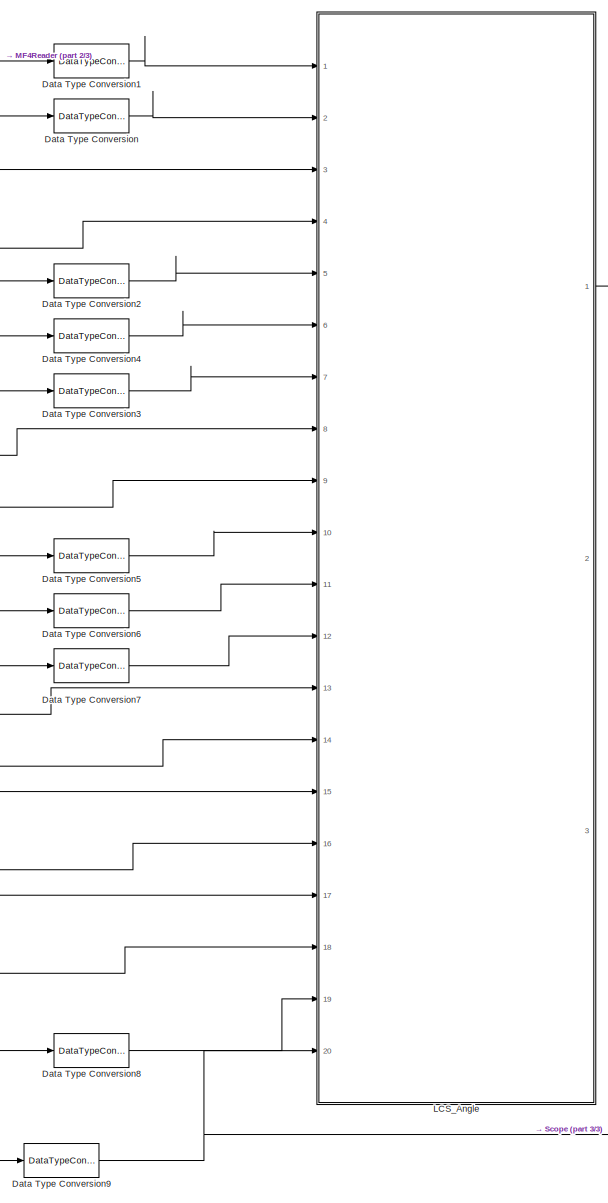
[diagram: root canvas - part 1/3, center side, full height]
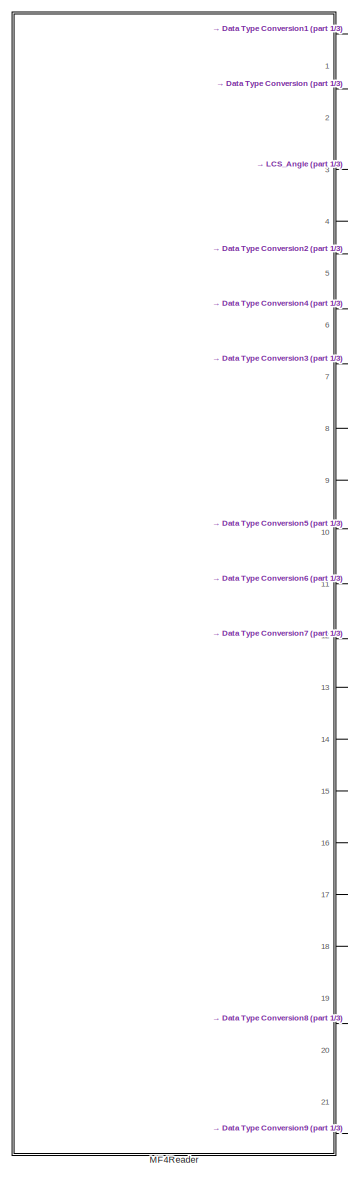
[diagram: root canvas - part 2/3, left side, full height]
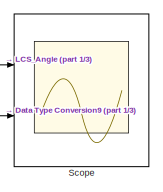
[diagram: root canvas - part 3/3, middle right region]
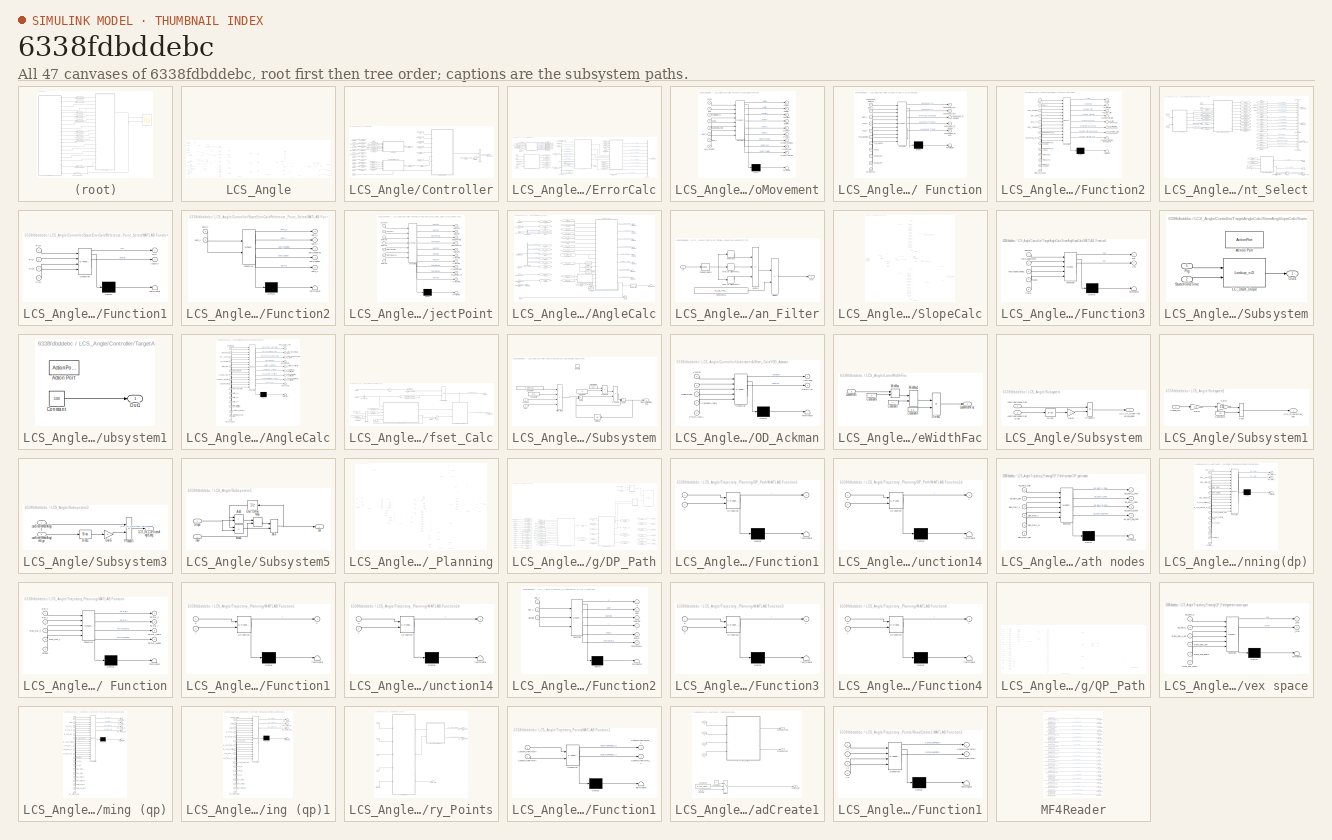
[diagram: thumbnail index - all 47 canvases of the model, root first then tree order]
MODEL slx_6338fdbddebc
KIND model
CONFIG AbsTol = auto
CONFIG EnableMultiTasking = off
CONFIG FixedStep = 0.01
CONFIG MaxStep = auto
CONFIG MinStep = auto
CONFIG RelTol = 1e-3
CONFIG SampleTimeConstraint = Unconstrained
CONFIG SolverName = FixedStepDiscrete
CONFIG StartTime = 3849.7586
CONFIG StopTime = 3889.7825
BLOCK [DataTypeConversion] Data Type Conversion
  OutDataTypeStr = single
  RndMeth = Floor
  SaturateOnIntegerOverflow = off
BLOCK [DataTypeConversion] Data Type Conversion1
  OutDataTypeStr = single
  RndMeth = Floor
  SaturateOnIntegerOverflow = off
BLOCK [DataTypeConversion] Data Type Conversion2
  OutDataTypeStr = single
  RndMeth = Floor
  SaturateOnIntegerOverflow = off
BLOCK [DataTypeConversion] Data Type Conversion3
  OutDataTypeStr = single
  RndMeth = Floor
  SaturateOnIntegerOverflow = off
BLOCK [DataTypeConversion] Data Type Conversion4
  OutDataTypeStr = single
  RndMeth = Floor
  SaturateOnIntegerOverflow = off
BLOCK [DataTypeConversion] Data Type Conversion5
  OutDataTypeStr = single
  RndMeth = Floor
  SaturateOnIntegerOverflow = off
BLOCK [DataTypeConversion] Data Type Conversion6
  OutDataTypeStr = single
  RndMeth = Floor
  SaturateOnIntegerOverflow = off
BLOCK [DataTypeConversion] Data Type Conversion7
  OutDataTypeStr = single
  RndMeth = Floor
  SaturateOnIntegerOverflow = off
BLOCK [DataTypeConversion] Data Type Conversion8
  OutDataTypeStr = single
  RndMeth = Floor
  SaturateOnIntegerOverflow = off
BLOCK [DataTypeConversion] Data Type Conversion9
  OutDataTypeStr = single
  RndMeth = Floor
  SaturateOnIntegerOverflow = off
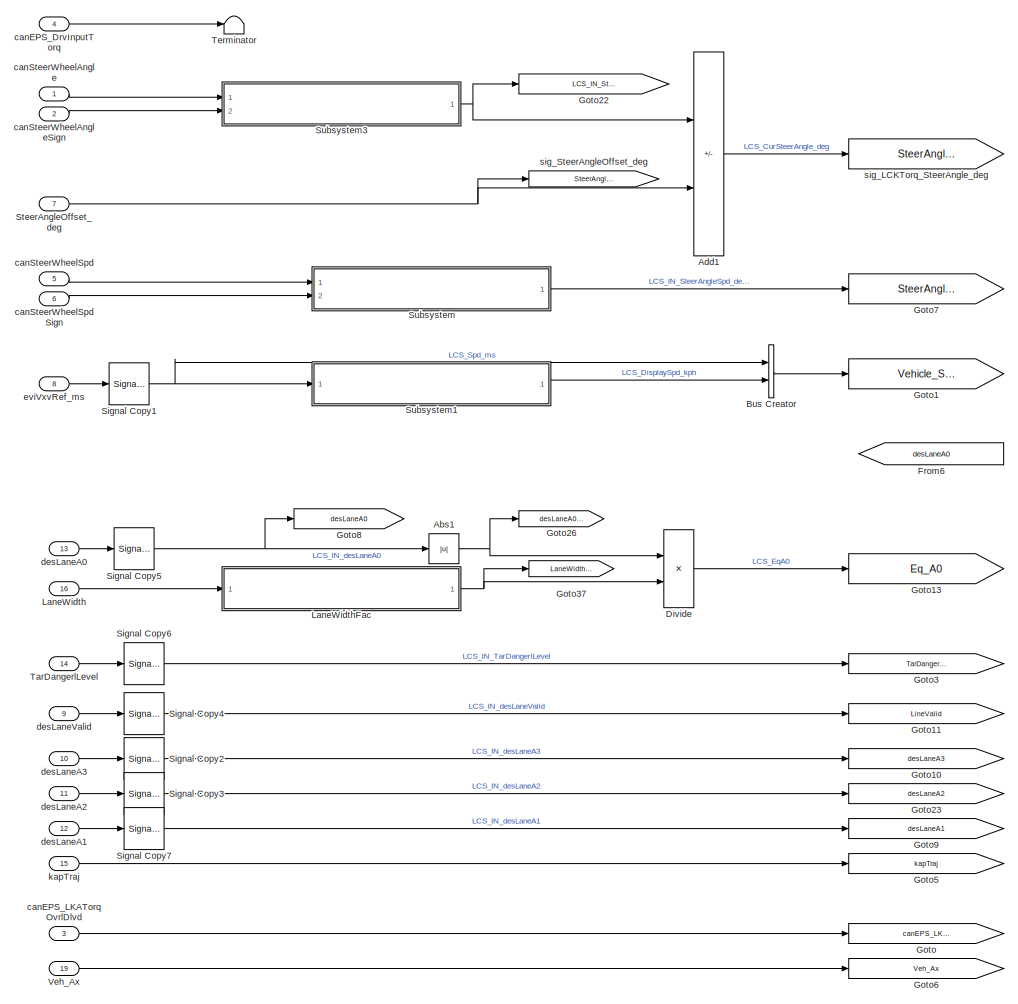
[diagram: LCS_Angle - part 1/3, left side, full height]
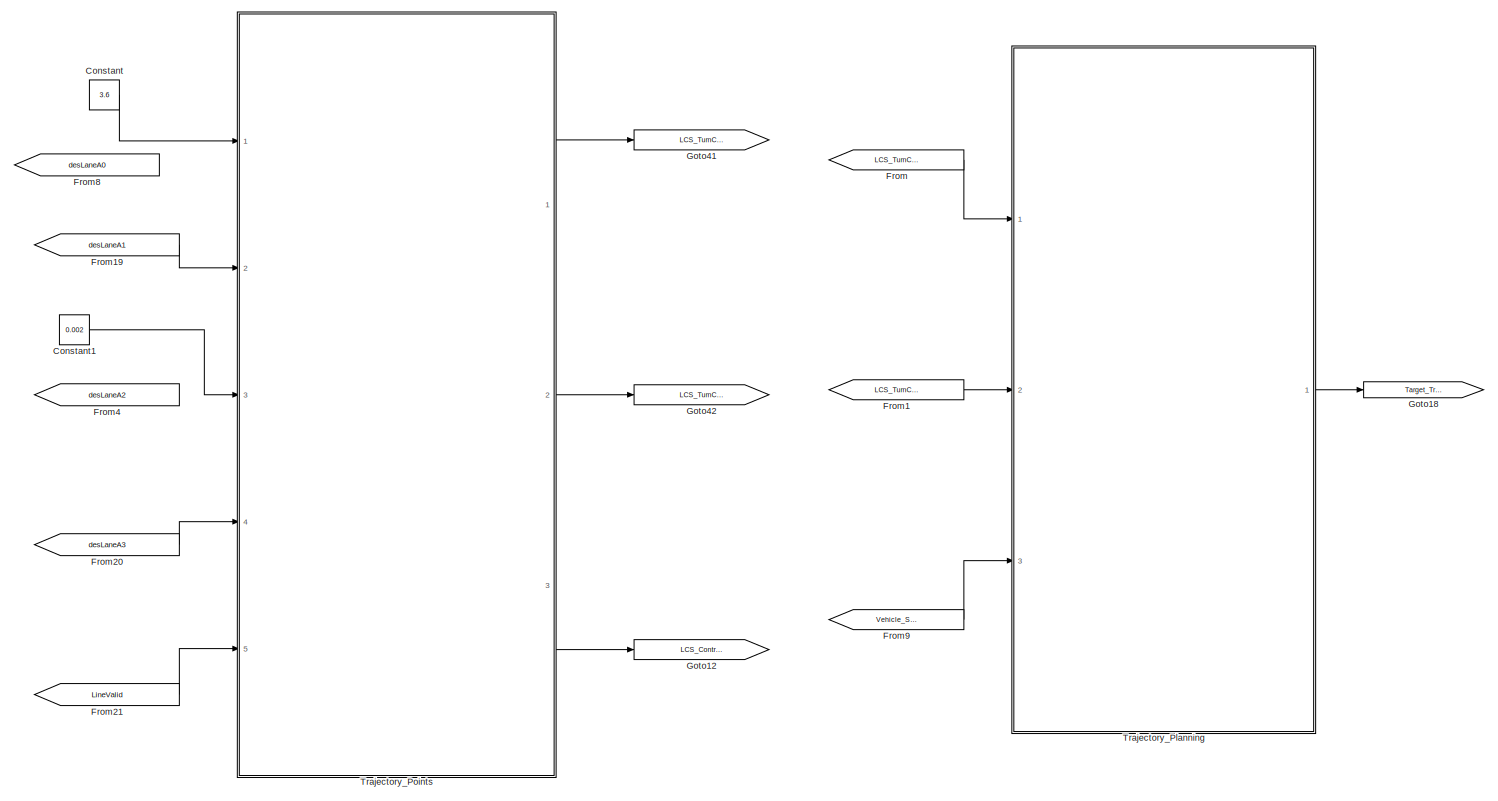
[diagram: LCS_Angle - part 2/3, center side, full height]
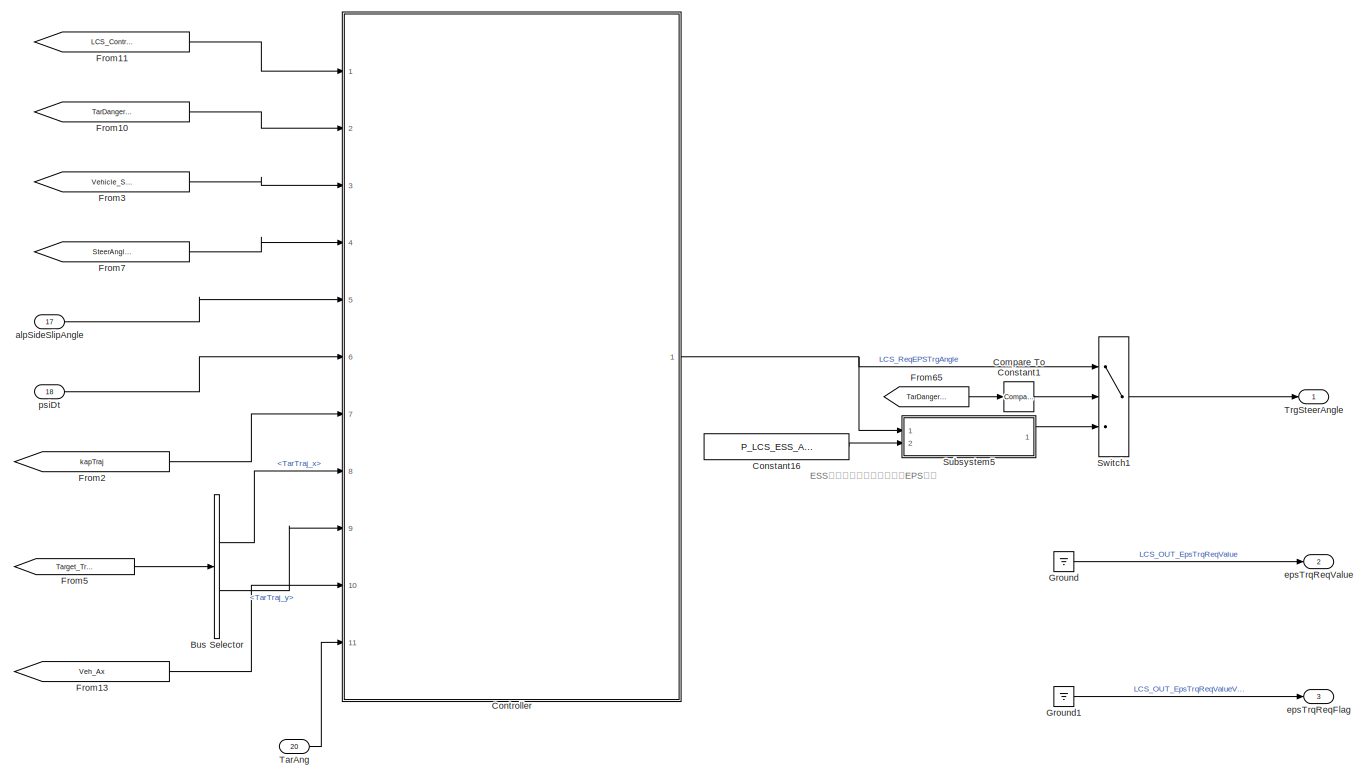
[diagram: LCS_Angle - part 3/3, right side, full height]
BLOCK [SubSystem] LCS_Angle
  Ports = [20, 3]
  RequestExecContextInheritance = off
BLOCK [Abs] LCS_Angle/Abs1
  NameLocation = left
  SaturateOnIntegerOverflow = off
BLOCK [Sum] LCS_Angle/Add1
  IconShape = rectangular
  Inputs = +-
  Ports = [2, 1]
BLOCK [BusCreator] LCS_Angle/Bus Creator
  DisplayOption = bar
  InheritFromInputs = on
  Inputs = 2
  Ports = [2, 1]
BLOCK [BusSelector] LCS_Angle/Bus Selector
  OutputSignals = TarTraj_x,TarTraj_y
  Ports = [1, 2]
BLOCK [Reference] LCS_Angle/Compare To Constant1  REF=simulink/Logic and Bit
Operations/Compare
To Constant
  NameLocation = left
  Ports = [1, 1]
  SourceBlock = simulink/Logic and Bit\nOperations/Compare\nTo Constant
  SourceProductBaseCode = SL
  SourceType = Compare To Constant
BLOCK [Constant] LCS_Angle/Constant
  OutDataTypeStr = single
  Value = 3.6
BLOCK [Constant] LCS_Angle/Constant1
  OutDataTypeStr = single
  Value = 0.002
BLOCK [Constant] LCS_Angle/Constant16
  AttributesFormatString = %<Description>
  Description = 2.9
  OutDataTypeStr = single
  Value = P_LCS_ESS_AngleSlope_Limit
BLOCK [SubSystem] LCS_Angle/Controller
  Ports = [11, 1]
  RequestExecContextInheritance = off
BLOCK [Sum] LCS_Angle/Controller/Add6
  AccumDataTypeStr = single
  IconShape = rectangular
  Ports = [2, 1]
BLOCK [Inport] LCS_Angle/Controller/ControlValid
BLOCK [From] LCS_Angle/Controller/From
  GotoTag = ControlValid
BLOCK [From] LCS_Angle/Controller/From1
  GotoTag = TarDangerLevel
BLOCK [From] LCS_Angle/Controller/From10
  GotoTag = VehKap
BLOCK [From] LCS_Angle/Controller/From11
  GotoTag = RefTrajX
BLOCK [From] LCS_Angle/Controller/From12
  GotoTag = RefTrajY
BLOCK [From] LCS_Angle/Controller/From13
  GotoTag = SteerAngle_deg
BLOCK [From] LCS_Angle/Controller/From14
  GotoTag = psiDt
BLOCK [From] LCS_Angle/Controller/From15
  GotoTag = Veh_Ax
BLOCK [From] LCS_Angle/Controller/From16
  GotoTag = Veh_Spd
BLOCK [From] LCS_Angle/Controller/From17
  GotoTag = psiDt
BLOCK [From] LCS_Angle/Controller/From2
  GotoTag = Veh_Spd
BLOCK [From] LCS_Angle/Controller/From3
  GotoTag = SteerAngle_deg
BLOCK [From] LCS_Angle/Controller/From4
  GotoTag = LateralStateError
BLOCK [From] LCS_Angle/Controller/From5
  GotoTag = CurrentSteerAngleOffset
BLOCK [From] LCS_Angle/Controller/From6
  GotoTag = CurrentSteerAngleOffset
BLOCK [From] LCS_Angle/Controller/From7
  GotoTag = Veh_Spd
BLOCK [From] LCS_Angle/Controller/From8
  GotoTag = alpSideSlipAngle
BLOCK [From] LCS_Angle/Controller/From9
  GotoTag = psiDt
BLOCK [Goto] LCS_Angle/Controller/Goto
  GotoTag = ControlValid
BLOCK [Goto] LCS_Angle/Controller/Goto1
  GotoTag = LateralStateError
BLOCK [Goto] LCS_Angle/Controller/Goto11
  GotoTag = Veh_Ax
BLOCK [Goto] LCS_Angle/Controller/Goto14
  GotoTag = CurrentSteerAngleOffset
BLOCK [Goto] LCS_Angle/Controller/Goto2
  GotoTag = TarDangerLevel
BLOCK [Goto] LCS_Angle/Controller/Goto3
  GotoTag = Veh_Spd
BLOCK [Goto] LCS_Angle/Controller/Goto4
  GotoTag = SteerAngle_deg
BLOCK [Goto] LCS_Angle/Controller/Goto5
  GotoTag = alpSideSlipAngle
BLOCK [Goto] LCS_Angle/Controller/Goto6
  GotoTag = psiDt
BLOCK [Goto] LCS_Angle/Controller/Goto7
  GotoTag = VehKap
BLOCK [Goto] LCS_Angle/Controller/Goto8
  GotoTag = RefTrajX
BLOCK [Goto] LCS_Angle/Controller/Goto9
  GotoTag = RefTrajY
BLOCK [Inport] LCS_Angle/Controller/RefTrajX
  Port = 8
BLOCK [Inport] LCS_Angle/Controller/RefTrajY
  Port = 9
BLOCK [Saturate] LCS_Angle/Controller/Saturation
  LowerLimit = -10
  UpperLimit = 10
BLOCK [SubSystem] LCS_Angle/Controller/StateErrorCalc
  Ports = [6, 1]
  RequestExecContextInheritance = off
BLOCK [BusCreator] LCS_Angle/Controller/StateErrorCalc/Bus Creator
  DisplayOption = bar
  InheritFromInputs = on
  Inputs = 10
  Ports = [10, 1]
BLOCK [BusSelector] LCS_Angle/Controller/StateErrorCalc/Bus Selector
  OutputSignals = LCS_Spd_ms
  Ports = [1, 1]
BLOCK [BusSelector] LCS_Angle/Controller/StateErrorCalc/Bus Selector1
  OutputSignals = referenceline_x,referenceline_y,referenceline_heading,referenceline_kappa,referenceline_s
  Ports = [1, 5]
BLOCK [BusSelector] LCS_Angle/Controller/StateErrorCalc/Bus Selector2
  OutputSignals = LCS_ProjectPtX,LCS_ProjectPtY,LCS_ProjectPtS,LCS_ProjectPtTheta,LCS_ProjectPtCurve
  Ports = [1, 5]
BLOCK [Constant] LCS_Angle/Controller/StateErrorCalc/Constant
  OutDataTypeStr = single
  Value = 0
BLOCK [Constant] LCS_Angle/Controller/StateErrorCalc/Constant1
  OutDataTypeStr = single
  Value = 0
BLOCK [Constant] LCS_Angle/Controller/StateErrorCalc/Constant19
  OutDataTypeStr = single
  Value = P_LCS_CycleTime
BLOCK [Constant] LCS_Angle/Controller/StateErrorCalc/Constant3
  OutDataTypeStr = single
BLOCK [Constant] LCS_Angle/Controller/StateErrorCalc/Constant4
  OutDataTypeStr = single
  Value = pi/2
BLOCK [Constant] LCS_Angle/Controller/StateErrorCalc/Constant5
  OutDataTypeStr = single
  Value = P_LCS_Lookahead_Distance
BLOCK [SubSystem] LCS_Angle/Controller/StateErrorCalc/EgoMovement
  ErrorFcn = Stateflow.Translate.translate
  PermitHierarchicalResolution = ExplicitOnly
  Ports = [8, 9]
  RequestExecContextInheritance = off
  SFBlockType = MATLAB Function
  TreatAsAtomicUnit = on
BLOCK [Demux] LCS_Angle/Controller/StateErrorCalc/EgoMovement/ Demux 
  Outputs = 1
  Ports = [1, 1]
BLOCK [S-Function] LCS_Angle/Controller/StateErrorCalc/EgoMovement/ SFunction 
  EnableBusSupport = on
  FunctionName = sf_sfun
  PortCounts = [8 10]
  Ports = [8, 10]
  SFcnIsStateOwnerBlock = off
  SFunctionDeploymentMode = off
  Tag = Stateflow S-Function 22
BLOCK [Terminator] LCS_Angle/Controller/StateErrorCalc/EgoMovement/ Terminator 
BLOCK [Outport] LCS_Angle/Controller/StateErrorCalc/EgoMovement/CosOfPsi
  Port = 3
BLOCK [Inport] LCS_Angle/Controller/StateErrorCalc/EgoMovement/Kap
  Port = 2
BLOCK [Outport] LCS_Angle/Controller/StateErrorCalc/EgoMovement/SinOfPsi
  Port = 4
BLOCK [Inport] LCS_Angle/Controller/StateErrorCalc/EgoMovement/Vego
  Port = 4
BLOCK [Inport] LCS_Angle/Controller/StateErrorCalc/EgoMovement/alpSideSlipAngle
  Port = 5
BLOCK [Outport] LCS_Angle/Controller/StateErrorCalc/EgoMovement/dDeltaX
BLOCK [Outport] LCS_Angle/Controller/StateErrorCalc/EgoMovement/dDeltaY
  Port = 2
BLOCK [Inport] LCS_Angle/Controller/StateErrorCalc/EgoMovement/ego_heading
  Port = 8
BLOCK [Inport] LCS_Angle/Controller/StateErrorCalc/EgoMovement/ego_x
  Port = 6
BLOCK [Inport] LCS_Angle/Controller/StateErrorCalc/EgoMovement/ego_y
  Port = 7
BLOCK [Outport] LCS_Angle/Controller/StateErrorCalc/EgoMovement/predict_heading
  Port = 7
BLOCK [Outport] LCS_Angle/Controller/StateErrorCalc/EgoMovement/predict_spd
  Port = 8
BLOCK [Outport] LCS_Angle/Controller/StateErrorCalc/EgoMovement/predict_x
  Port = 5
BLOCK [Outport] LCS_Angle/Controller/StateErrorCalc/EgoMovement/predict_y
  Port = 6
BLOCK [Outport] LCS_Angle/Controller/StateErrorCalc/EgoMovement/predict_yawrate
  Port = 9
BLOCK [Inport] LCS_Angle/Controller/StateErrorCalc/EgoMovement/psiDtOptSync
  Port = 3
BLOCK [Inport] LCS_Angle/Controller/StateErrorCalc/EgoMovement/tCycle
BLOCK [From] LCS_Angle/Controller/StateErrorCalc/From
  GotoTag = predict_x
BLOCK [From] LCS_Angle/Controller/StateErrorCalc/From1
  GotoTag = predict_y
BLOCK [From] LCS_Angle/Controller/StateErrorCalc/From10
  GotoTag = Target_Pt_Y
BLOCK [From] LCS_Angle/Controller/StateErrorCalc/From11
  GotoTag = Target_Pt_Heading
BLOCK [From] LCS_Angle/Controller/StateErrorCalc/From12
  GotoTag = Target_Pt_Kappa
BLOCK [From] LCS_Angle/Controller/StateErrorCalc/From13
  GotoTag = predict_x
BLOCK [From] LCS_Angle/Controller/StateErrorCalc/From14
  GotoTag = predict_y
BLOCK [From] LCS_Angle/Controller/StateErrorCalc/From15
  GotoTag = Target_Pt_Kappa
BLOCK [From] LCS_Angle/Controller/StateErrorCalc/From2
  GotoTag = ReferencelinePoint
BLOCK [From] LCS_Angle/Controller/StateErrorCalc/From3
  GotoTag = ProjectPoint
BLOCK [From] LCS_Angle/Controller/StateErrorCalc/From4
  GotoTag = predict_x
BLOCK [From] LCS_Angle/Controller/StateErrorCalc/From5
  GotoTag = predict_y
BLOCK [From] LCS_Angle/Controller/StateErrorCalc/From6
  GotoTag = predict_heading
BLOCK [From] LCS_Angle/Controller/StateErrorCalc/From7
  GotoTag = predict_spd
BLOCK [From] LCS_Angle/Controller/StateErrorCalc/From8
  GotoTag = predict_YawRate
BLOCK [From] LCS_Angle/Controller/StateErrorCalc/From9
  GotoTag = Target_Pt_X
BLOCK [Goto] LCS_Angle/Controller/StateErrorCalc/Goto1
  GotoTag = ProjectPoint
BLOCK [Goto] LCS_Angle/Controller/StateErrorCalc/Goto10
  GotoTag = Target_Pt_Y
BLOCK [Goto] LCS_Angle/Controller/StateErrorCalc/Goto11
  GotoTag = Target_Pt_Heading
BLOCK [Goto] LCS_Angle/Controller/StateErrorCalc/Goto12
  GotoTag = Target_Pt_Kappa
BLOCK [Goto] LCS_Angle/Controller/StateErrorCalc/Goto15
  GotoTag = dDeltaY
BLOCK [Goto] LCS_Angle/Controller/StateErrorCalc/Goto16
  GotoTag = CosOfPsi
BLOCK [Goto] LCS_Angle/Controller/StateErrorCalc/Goto2
  GotoTag = MatchPoint
BLOCK [Goto] LCS_Angle/Controller/StateErrorCalc/Goto3
  GotoTag = ReferencelinePoint
BLOCK [Goto] LCS_Angle/Controller/StateErrorCalc/Goto31
  GotoTag = SinOfPsi
BLOCK [Goto] LCS_Angle/Controller/StateErrorCalc/Goto32
  GotoTag = AbsMinDis2Traj
BLOCK [Goto] LCS_Angle/Controller/StateErrorCalc/Goto33
  GotoTag = dDeltaX
BLOCK [Goto] LCS_Angle/Controller/StateErrorCalc/Goto34
  GotoTag = MinDis2Traj
BLOCK [Goto] LCS_Angle/Controller/StateErrorCalc/Goto38
  GotoTag = AbsDis_BaseLaneWidth
BLOCK [Goto] LCS_Angle/Controller/StateErrorCalc/Goto4
  GotoTag = predict_y
BLOCK [Goto] LCS_Angle/Controller/StateErrorCalc/Goto5
  GotoTag = predict_heading
BLOCK [Goto] LCS_Angle/Controller/StateErrorCalc/Goto6
  GotoTag = predict_spd
BLOCK [Goto] LCS_Angle/Controller/StateErrorCalc/Goto7
  GotoTag = predict_x
BLOCK [Goto] LCS_Angle/Controller/StateErrorCalc/Goto8
  GotoTag = predict_YawRate
BLOCK [Goto] LCS_Angle/Controller/StateErrorCalc/Goto9
  GotoTag = Target_Pt_X
BLOCK [Outport] LCS_Angle/Controller/StateErrorCalc/LateralStateError
BLOCK [SubSystem] LCS_Angle/Controller/StateErrorCalc/MATLAB Function
  ErrorFcn = Stateflow.Translate.translate
  PermitHierarchicalResolution = ExplicitOnly
  Ports = [11, 5]
  RequestExecContextInheritance = off
  SFBlockType = MATLAB Function
  TreatAsAtomicUnit = on
BLOCK [Demux] LCS_Angle/Controller/StateErrorCalc/MATLAB Function/ Demux 
  Outputs = 1
  Ports = [1, 1]
BLOCK [S-Function] LCS_Angle/Controller/StateErrorCalc/MATLAB Function/ SFunction 
  EnableBusSupport = on
  FunctionName = sf_sfun
  PortCounts = [11 6]
  Ports = [11, 6]
  SFcnIsStateOwnerBlock = off
  SFunctionDeploymentMode = off
  Tag = Stateflow S-Function 6
BLOCK [Terminator] LCS_Angle/Controller/StateErrorCalc/MATLAB Function/ Terminator 
BLOCK [Inport] LCS_Angle/Controller/StateErrorCalc/MATLAB Function/Ego_X
  Port = 2
BLOCK [Inport] LCS_Angle/Controller/StateErrorCalc/MATLAB Function/Ego_Y
  Port = 3
BLOCK [Inport] LCS_Angle/Controller/StateErrorCalc/MATLAB Function/Lookahead_Distance
BLOCK [Outport] LCS_Angle/Controller/StateErrorCalc/MATLAB Function/Lookahead_Pt_Num
  Port = 5
BLOCK [Inport] LCS_Angle/Controller/StateErrorCalc/MATLAB Function/Target_Pt_S
  Port = 11
BLOCK [Inport] LCS_Angle/Controller/StateErrorCalc/MATLAB Function/Target_Pt_X
  Port = 9
BLOCK [Inport] LCS_Angle/Controller/StateErrorCalc/MATLAB Function/Target_Pt_Y
  Port = 10
BLOCK [Inport] LCS_Angle/Controller/StateErrorCalc/MATLAB Function/Traj_Heading
  Port = 6
BLOCK [Inport] LCS_Angle/Controller/StateErrorCalc/MATLAB Function/Traj_Kappa
  Port = 7
BLOCK [Inport] LCS_Angle/Controller/StateErrorCalc/MATLAB Function/Traj_S
  Port = 8
BLOCK [Inport] LCS_Angle/Controller/StateErrorCalc/MATLAB Function/Traj_X
  Port = 4
BLOCK [Inport] LCS_Angle/Controller/StateErrorCalc/MATLAB Function/Traj_Y
  Port = 5
BLOCK [Outport] LCS_Angle/Controller/StateErrorCalc/MATLAB Function/lookahead_Pt_Heading
  Port = 3
BLOCK [Outport] LCS_Angle/Controller/StateErrorCalc/MATLAB Function/lookahead_Pt_Kappa
  Port = 4
BLOCK [Outport] LCS_Angle/Controller/StateErrorCalc/MATLAB Function/lookahead_Pt_X
BLOCK [Outport] LCS_Angle/Controller/StateErrorCalc/MATLAB Function/lookahead_Pt_Y
  Port = 2
BLOCK [SubSystem] LCS_Angle/Controller/StateErrorCalc/MATLAB Function2
  ErrorFcn = Stateflow.Translate.translate
  PermitHierarchicalResolution = ExplicitOnly
  Ports = [14, 8]
  RequestExecContextInheritance = off
  SFBlockType = MATLAB Function
  TreatAsAtomicUnit = on
BLOCK [Demux] LCS_Angle/Controller/StateErrorCalc/MATLAB Function2/ Demux 
  Outputs = 1
  Ports = [1, 1]
BLOCK [S-Function] LCS_Angle/Controller/StateErrorCalc/MATLAB Function2/ SFunction 
  EnableBusSupport = on
  FunctionName = sf_sfun
  PortCounts = [14 9]
  Ports = [14, 9]
  SFcnIsStateOwnerBlock = off
  SFunctionDeploymentMode = off
  Tag = Stateflow S-Function 7
BLOCK [Terminator] LCS_Angle/Controller/StateErrorCalc/MATLAB Function2/ Terminator 
BLOCK [Inport] LCS_Angle/Controller/StateErrorCalc/MATLAB Function2/Ego_Acc
  Port = 5
BLOCK [Inport] LCS_Angle/Controller/StateErrorCalc/MATLAB Function2/Ego_Heading
  Port = 3
BLOCK [Inport] LCS_Angle/Controller/StateErrorCalc/MATLAB Function2/Ego_Spd
  Port = 4
BLOCK [Inport] LCS_Angle/Controller/StateErrorCalc/MATLAB Function2/Ego_X
BLOCK [Inport] LCS_Angle/Controller/StateErrorCalc/MATLAB Function2/Ego_Y
  Port = 2
BLOCK [Inport] LCS_Angle/Controller/StateErrorCalc/MATLAB Function2/Ego_YawRate
  Port = 6
BLOCK [Inport] LCS_Angle/Controller/StateErrorCalc/MATLAB Function2/Project_Pt_Heading
  Port = 13
BLOCK [Inport] LCS_Angle/Controller/StateErrorCalc/MATLAB Function2/Project_Pt_Kappa
  Port = 14
BLOCK [Inport] LCS_Angle/Controller/StateErrorCalc/MATLAB Function2/Project_Pt_X
  Port = 11
BLOCK [Inport] LCS_Angle/Controller/StateErrorCalc/MATLAB Function2/Project_Pt_Y
  Port = 12
BLOCK [Outport] LCS_Angle/Controller/StateErrorCalc/MATLAB Function2/heading_error
  Port = 3
BLOCK [Outport] LCS_Angle/Controller/StateErrorCalc/MATLAB Function2/heading_error_lookahead
  Port = 7
BLOCK [Outport] LCS_Angle/Controller/StateErrorCalc/MATLAB Function2/heading_error_rate
  Port = 4
BLOCK [Outport] LCS_Angle/Controller/StateErrorCalc/MATLAB Function2/heading_error_rate_lookahead
  Port = 8
BLOCK [Outport] LCS_Angle/Controller/StateErrorCalc/MATLAB Function2/lat_error
BLOCK [Outport] LCS_Angle/Controller/StateErrorCalc/MATLAB Function2/lat_error_lookahead
  Port = 5
BLOCK [Outport] LCS_Angle/Controller/StateErrorCalc/MATLAB Function2/lat_error_rate
  Port = 2
BLOCK [Outport] LCS_Angle/Controller/StateErrorCalc/MATLAB Function2/lat_error_rate_lookahead
  Port = 6
BLOCK [Inport] LCS_Angle/Controller/StateErrorCalc/MATLAB Function2/lookahead_Pt_Heading
  Port = 9
BLOCK [Inport] LCS_Angle/Controller/StateErrorCalc/MATLAB Function2/lookahead_Pt_Kappa
  Port = 10
BLOCK [Inport] LCS_Angle/Controller/StateErrorCalc/MATLAB Function2/lookahead_Pt_X
  Port = 7
BLOCK [Inport] LCS_Angle/Controller/StateErrorCalc/MATLAB Function2/lookahead_Pt_Y
  Port = 8
BLOCK [Inport] LCS_Angle/Controller/StateErrorCalc/RefTrajX
  Port = 5
BLOCK [Inport] LCS_Angle/Controller/StateErrorCalc/RefTrajY
  Port = 6
BLOCK [SubSystem] LCS_Angle/Controller/StateErrorCalc/Reference_Point_Select
  Ports = [5, 6]
  RequestExecContextInheritance = off
BLOCK [Outport] LCS_Angle/Controller/StateErrorCalc/Reference_Point_Select/AbsDis
  Port = 2
BLOCK [Outport] LCS_Angle/Controller/StateErrorCalc/Reference_Point_Select/AbsDis_BaseLaneWidth
  Port = 3
BLOCK [BusCreator] LCS_Angle/Controller/StateErrorCalc/Reference_Point_Select/Bus Creator
  DisplayOption = bar
  InheritFromInputs = on
  Inputs = 5
  Ports = [5, 1]
BLOCK [BusCreator] LCS_Angle/Controller/StateErrorCalc/Reference_Point_Select/Bus Creator1
  DisplayOption = bar
  InheritFromInputs = on
  Inputs = 5
  Ports = [5, 1]
BLOCK [BusCreator] LCS_Angle/Controller/StateErrorCalc/Reference_Point_Select/Bus Creator2
  DisplayOption = bar
  InheritFromInputs = on
  Inputs = 5
  Ports = [5, 1]
BLOCK [Constant] LCS_Angle/Controller/StateErrorCalc/Reference_Point_Select/Constant
  OutDataTypeStr = single
  Value = 0
BLOCK [Inport] LCS_Angle/Controller/StateErrorCalc/Reference_Point_Select/EgoX
  Port = 3
BLOCK [Inport] LCS_Angle/Controller/StateErrorCalc/Reference_Point_Select/EgoY
  Port = 4
BLOCK [From] LCS_Angle/Controller/StateErrorCalc/Reference_Point_Select/From
  GotoTag = ProjectPtX
BLOCK [From] LCS_Angle/Controller/StateErrorCalc/Reference_Point_Select/From1
  GotoTag = ProjectPtY
BLOCK [From] LCS_Angle/Controller/StateErrorCalc/Reference_Point_Select/From10
  GotoTag = referenceline_x
BLOCK [From] LCS_Angle/Controller/StateErrorCalc/Reference_Point_Select/From11
  GotoTag = referenceline_y
BLOCK [From] LCS_Angle/Controller/StateErrorCalc/Reference_Point_Select/From12
  GotoTag = referenceline_heading
BLOCK [From] LCS_Angle/Controller/StateErrorCalc/Reference_Point_Select/From13
  GotoTag = referenceline_kappa
BLOCK [From] LCS_Angle/Controller/StateErrorCalc/Reference_Point_Select/From14
  GotoTag = referenceline_s
BLOCK [From] LCS_Angle/Controller/StateErrorCalc/Reference_Point_Select/From15
  GotoTag = MatchPtS
BLOCK [From] LCS_Angle/Controller/StateErrorCalc/Reference_Point_Select/From16
  GotoTag = ProjectPtS
BLOCK [From] LCS_Angle/Controller/StateErrorCalc/Reference_Point_Select/From2
  GotoTag = MatchPtX
BLOCK [From] LCS_Angle/Controller/StateErrorCalc/Reference_Point_Select/From3
  GotoTag = MatchPtY
BLOCK [From] LCS_Angle/Controller/StateErrorCalc/Reference_Point_Select/From4
  GotoTag = MatchPtTheta
BLOCK [From] LCS_Angle/Controller/StateErrorCalc/Reference_Point_Select/From5
  GotoTag = MatchPtCurve
BLOCK [From] LCS_Angle/Controller/StateErrorCalc/Reference_Point_Select/From6
  GotoTag = ProjectPtX
BLOCK [From] LCS_Angle/Controller/StateErrorCalc/Reference_Point_Select/From7
  GotoTag = ProjectPtY
BLOCK [From] LCS_Angle/Controller/StateErrorCalc/Reference_Point_Select/From8
  GotoTag = ProjectPtTheta
BLOCK [From] LCS_Angle/Controller/StateErrorCalc/Reference_Point_Select/From9
  GotoTag = ProjectPtCurve
BLOCK [Goto] LCS_Angle/Controller/StateErrorCalc/Reference_Point_Select/Goto
  GotoTag = MatchPtX
BLOCK [Goto] LCS_Angle/Controller/StateErrorCalc/Reference_Point_Select/Goto1
  GotoTag = MatchPtY
BLOCK [Goto] LCS_Angle/Controller/StateErrorCalc/Reference_Point_Select/Goto10
  GotoTag = referenceline_heading
BLOCK [Goto] LCS_Angle/Controller/StateErrorCalc/Reference_Point_Select/Goto11
  GotoTag = referenceline_y
BLOCK [Goto] LCS_Angle/Controller/StateErrorCalc/Reference_Point_Select/Goto12
  GotoTag = referenceline_x
BLOCK [Goto] LCS_Angle/Controller/StateErrorCalc/Reference_Point_Select/Goto13
  GotoTag = MatchPtS
BLOCK [Goto] LCS_Angle/Controller/StateErrorCalc/Reference_Point_Select/Goto14
  GotoTag = ProjectPtS
BLOCK [Goto] LCS_Angle/Controller/StateErrorCalc/Reference_Point_Select/Goto2
  GotoTag = MatchPtTheta
BLOCK [Goto] LCS_Angle/Controller/StateErrorCalc/Reference_Point_Select/Goto3
  GotoTag = MatchPtCurve
BLOCK [Goto] LCS_Angle/Controller/StateErrorCalc/Reference_Point_Select/Goto4
  GotoTag = ProjectPtX
BLOCK [Goto] LCS_Angle/Controller/StateErrorCalc/Reference_Point_Select/Goto5
  GotoTag = ProjectPtY
BLOCK [Goto] LCS_Angle/Controller/StateErrorCalc/Reference_Point_Select/Goto6
  GotoTag = ProjectPtTheta
BLOCK [Goto] LCS_Angle/Controller/StateErrorCalc/Reference_Point_Select/Goto7
  GotoTag = ProjectPtCurve
BLOCK [Goto] LCS_Angle/Controller/StateErrorCalc/Reference_Point_Select/Goto8
  GotoTag = referenceline_s
BLOCK [Goto] LCS_Angle/Controller/StateErrorCalc/Reference_Point_Select/Goto9
  GotoTag = referenceline_kappa
BLOCK [Inport] LCS_Angle/Controller/StateErrorCalc/Reference_Point_Select/LaneWidthCorrectFac
  Port = 5
BLOCK [SubSystem] LCS_Angle/Controller/StateErrorCalc/Reference_Point_Select/MATLAB Function1
  ErrorFcn = Stateflow.Translate.translate
  PermitHierarchicalResolution = ExplicitOnly
  Ports = [4, 2]
  RequestExecContextInheritance = off
  SFBlockType = MATLAB Function
  TreatAsAtomicUnit = on
BLOCK [Demux] LCS_Angle/Controller/StateErrorCalc/Reference_Point_Select/MATLAB Function1/ Demux 
  Outputs = 1
  Ports = [1, 1]
BLOCK [S-Function] LCS_Angle/Controller/StateErrorCalc/Reference_Point_Select/MATLAB Function1/ SFunction 
  EnableBusSupport = on
  FunctionName = sf_sfun
  PortCounts = [4 3]
  Ports = [4, 3]
  SFcnIsStateOwnerBlock = off
  SFunctionDeploymentMode = off
  Tag = Stateflow S-Function 20
BLOCK [Terminator] LCS_Angle/Controller/StateErrorCalc/Reference_Point_Select/MATLAB Function1/ Terminator 
BLOCK [Outport] LCS_Angle/Controller/StateErrorCalc/Reference_Point_Select/MATLAB Function1/AbsDis
  Port = 2
BLOCK [Outport] LCS_Angle/Controller/StateErrorCalc/Reference_Point_Select/MATLAB Function1/Dis
BLOCK [Inport] LCS_Angle/Controller/StateErrorCalc/Reference_Point_Select/MATLAB Function1/Pt1X
BLOCK [Inport] LCS_Angle/Controller/StateErrorCalc/Reference_Point_Select/MATLAB Function1/Pt1Y
  Port = 2
BLOCK [Inport] LCS_Angle/Controller/StateErrorCalc/Reference_Point_Select/MATLAB Function1/Pt2X
  Port = 3
BLOCK [Inport] LCS_Angle/Controller/StateErrorCalc/Reference_Point_Select/MATLAB Function1/Pt2Y
  Port = 4
BLOCK [SubSystem] LCS_Angle/Controller/StateErrorCalc/Reference_Point_Select/MATLAB Function2
  ErrorFcn = Stateflow.Translate.translate
  PermitHierarchicalResolution = ExplicitOnly
  Ports = [2, 5]
  RequestExecContextInheritance = off
  SFBlockType = MATLAB Function
  TreatAsAtomicUnit = on
BLOCK [Demux] LCS_Angle/Controller/StateErrorCalc/Reference_Point_Select/MATLAB Function2/ Demux 
  Outputs = 1
  Ports = [1, 1]
BLOCK [S-Function] LCS_Angle/Controller/StateErrorCalc/Reference_Point_Select/MATLAB Function2/ SFunction 
  EnableBusSupport = on
  FunctionName = sf_sfun
  PortCounts = [2 6]
  Ports = [2, 6]
  SFcnIsStateOwnerBlock = off
  SFunctionDeploymentMode = off
  Tag = Stateflow S-Function 21
BLOCK [Terminator] LCS_Angle/Controller/StateErrorCalc/Reference_Point_Select/MATLAB Function2/ Terminator 
BLOCK [Outport] LCS_Angle/Controller/StateErrorCalc/Reference_Point_Select/MATLAB Function2/path_heading
  Port = 3
BLOCK [Outport] LCS_Angle/Controller/StateErrorCalc/Reference_Point_Select/MATLAB Function2/path_kappa
  Port = 4
BLOCK [Outport] LCS_Angle/Controller/StateErrorCalc/Reference_Point_Select/MATLAB Function2/path_s
  Port = 5
BLOCK [Outport] LCS_Angle/Controller/StateErrorCalc/Reference_Point_Select/MATLAB Function2/path_x
BLOCK [Inport] LCS_Angle/Controller/StateErrorCalc/Reference_Point_Select/MATLAB Function2/path_x 
BLOCK [Outport] LCS_Angle/Controller/StateErrorCalc/Reference_Point_Select/MATLAB Function2/path_y
  Port = 2
BLOCK [Inport] LCS_Angle/Controller/StateErrorCalc/Reference_Point_Select/MATLAB Function2/path_y 
  Port = 2
BLOCK [Outport] LCS_Angle/Controller/StateErrorCalc/Reference_Point_Select/MatchPoint
  Port = 4
BLOCK [SubSystem] LCS_Angle/Controller/StateErrorCalc/Reference_Point_Select/MatchPoint_ProjectPoint
  ErrorFcn = Stateflow.Translate.translate
  PermitHierarchicalResolution = ExplicitOnly
  Ports = [7, 10]
  RequestExecContextInheritance = off
  SFBlockType = MATLAB Function
  TreatAsAtomicUnit = on
BLOCK [Demux] LCS_Angle/Controller/StateErrorCalc/Reference_Point_Select/MatchPoint_ProjectPoint/ Demux 
  Outputs = 1
  Ports = [1, 1]
BLOCK [S-Function] LCS_Angle/Controller/StateErrorCalc/Reference_Point_Select/MatchPoint_ProjectPoint/ SFunction 
  EnableBusSupport = on
  FunctionName = sf_sfun
  PortCounts = [7 11]
  Ports = [7, 11]
  SFcnIsStateOwnerBlock = off
  SFunctionDeploymentMode = off
  Tag = Stateflow S-Function 19
BLOCK [Terminator] LCS_Angle/Controller/StateErrorCalc/Reference_Point_Select/MatchPoint_ProjectPoint/ Terminator 
BLOCK [Inport] LCS_Angle/Controller/StateErrorCalc/Reference_Point_Select/MatchPoint_ProjectPoint/CurPosX
BLOCK [Inport] LCS_Angle/Controller/StateErrorCalc/Reference_Point_Select/MatchPoint_ProjectPoint/CurPosY
  Port = 2
BLOCK [Outport] LCS_Angle/Controller/StateErrorCalc/Reference_Point_Select/MatchPoint_ProjectPoint/MatchPtCurve
  Port = 4
BLOCK [Outport] LCS_Angle/Controller/StateErrorCalc/Reference_Point_Select/MatchPoint_ProjectPoint/MatchPtS
  Port = 5
BLOCK [Outport] LCS_Angle/Controller/StateErrorCalc/Reference_Point_Select/MatchPoint_ProjectPoint/MatchPtTheta
  Port = 3
BLOCK [Outport] LCS_Angle/Controller/StateErrorCalc/Reference_Point_Select/MatchPoint_ProjectPoint/MatchPtX
BLOCK [Outport] LCS_Angle/Controller/StateErrorCalc/Reference_Point_Select/MatchPoint_ProjectPoint/MatchPtY
  Port = 2
BLOCK [Outport] LCS_Angle/Controller/StateErrorCalc/Reference_Point_Select/MatchPoint_ProjectPoint/ProjectPtCurve
  Port = 9
BLOCK [Outport] LCS_Angle/Controller/StateErrorCalc/Reference_Point_Select/MatchPoint_ProjectPoint/ProjectPtS
  Port = 10
BLOCK [Outport] LCS_Angle/Controller/StateErrorCalc/Reference_Point_Select/MatchPoint_ProjectPoint/ProjectPtTheta
  Port = 8
BLOCK [Outport] LCS_Angle/Controller/StateErrorCalc/Reference_Point_Select/MatchPoint_ProjectPoint/ProjectPtX
  Port = 6
BLOCK [Outport] LCS_Angle/Controller/StateErrorCalc/Reference_Point_Select/MatchPoint_ProjectPoint/ProjectPtY
  Port = 7
BLOCK [Inport] LCS_Angle/Controller/StateErrorCalc/Reference_Point_Select/MatchPoint_ProjectPoint/RefTrajCurve
  Port = 6
BLOCK [Inport] LCS_Angle/Controller/StateErrorCalc/Reference_Point_Select/MatchPoint_ProjectPoint/RefTrajS
  Port = 7
BLOCK [Inport] LCS_Angle/Controller/StateErrorCalc/Reference_Point_Select/MatchPoint_ProjectPoint/RefTrajTheta
  Port = 5
BLOCK [Inport] LCS_Angle/Controller/StateErrorCalc/Reference_Point_Select/MatchPoint_ProjectPoint/RefTrajX
  Port = 3
BLOCK [Inport] LCS_Angle/Controller/StateErrorCalc/Reference_Point_Select/MatchPoint_ProjectPoint/RefTrajY
  Port = 4
BLOCK [Outport] LCS_Angle/Controller/StateErrorCalc/Reference_Point_Select/MinDis
BLOCK [Product] LCS_Angle/Controller/StateErrorCalc/Reference_Point_Select/Product
  Ports = [2, 1]
BLOCK [Outport] LCS_Angle/Controller/StateErrorCalc/Reference_Point_Select/ProjectPoint
  Port = 5
BLOCK [Inport] LCS_Angle/Controller/StateErrorCalc/Reference_Point_Select/RefTrajX
BLOCK [Inport] LCS_Angle/Controller/StateErrorCalc/Reference_Point_Select/RefTrajY
  Port = 2
BLOCK [Outport] LCS_Angle/Controller/StateErrorCalc/Reference_Point_Select/ReferencelinePoint
  Port = 6
BLOCK [Terminator] LCS_Angle/Controller/StateErrorCalc/Terminator
BLOCK [Inport] LCS_Angle/Controller/StateErrorCalc/VehKap
  Port = 4
BLOCK [Inport] LCS_Angle/Controller/StateErrorCalc/Veh_Spd
BLOCK [Inport] LCS_Angle/Controller/StateErrorCalc/alpSideSlipAngle
  Port = 2
BLOCK [Inport] LCS_Angle/Controller/StateErrorCalc/psiDt
  Port = 3
BLOCK [Inport] LCS_Angle/Controller/SteerAngle_deg
  Port = 4
BLOCK [Inport] LCS_Angle/Controller/TarAng
  Port = 11
BLOCK [Inport] LCS_Angle/Controller/TarDangerLevel
  Port = 2
BLOCK [SubSystem] LCS_Angle/Controller/TargetAngleCalc
  Ports = [9, 1]
  RequestExecContextInheritance = off
BLOCK [BusSelector] LCS_Angle/Controller/TargetAngleCalc/Bus Selector
  OutputSignals = LCS_Spd_ms,LCS_DisplaySpd_kph
  Ports = [1, 2]
BLOCK [BusSelector] LCS_Angle/Controller/TargetAngleCalc/Bus Selector1
  OutputSignals = LCS_LATC_lookahead_Pt_Kappa,LCS_LATC_lat_error_lookahead,LCS_LATC_lat_error_rate_lookahead,LCS_LATC_heading_error_lookahead,LCS_LATC_heading_error_rate_lookahead
  Ports = [1, 5]
BLOCK [Constant] LCS_Angle/Controller/TargetAngleCalc/Constant
  OutDataTypeStr = single
  Value = P_Global_SteeringAngleRatio
BLOCK [Inport] LCS_Angle/Controller/TargetAngleCalc/ControlValid
BLOCK [Inport] LCS_Angle/Controller/TargetAngleCalc/CurrentSteerAngleOffset
  Port = 7
BLOCK [From] LCS_Angle/Controller/TargetAngleCalc/From
  GotoTag = Speed_kph
BLOCK [From] LCS_Angle/Controller/TargetAngleCalc/From1
  GotoTag = TarDangerLevel
BLOCK [From] LCS_Angle/Controller/TargetAngleCalc/From11
  GotoTag = Speed_ms
BLOCK [From] LCS_Angle/Controller/TargetAngleCalc/From2
  GotoTag = Speed_kph
BLOCK [From] LCS_Angle/Controller/TargetAngleCalc/From4
  GotoTag = LCS_LCC_ref_curve
BLOCK [From] LCS_Angle/Controller/TargetAngleCalc/From5
  GotoTag = LCS_LCC_Later_error
BLOCK [From] LCS_Angle/Controller/TargetAngleCalc/From6
  GotoTag = LCS_LCC_Later_error_rate
BLOCK [From] LCS_Angle/Controller/TargetAngleCalc/From7
  GotoTag = LCS_LCC_heading_error
BLOCK [From] LCS_Angle/Controller/TargetAngleCalc/From71
  GotoTag = CurrentSteerAngleOffset
BLOCK [From] LCS_Angle/Controller/TargetAngleCalc/From72
  GotoTag = ControlValid
BLOCK [From] LCS_Angle/Controller/TargetAngleCalc/From84
  GotoTag = LCS_IN_SteerAngle_deg
BLOCK [From] LCS_Angle/Controller/TargetAngleCalc/From9
  GotoTag = LCS_LCC_heading_error_rate
BLOCK [Goto] LCS_Angle/Controller/TargetAngleCalc/Goto
  GotoTag = ControlValid
BLOCK [Goto] LCS_Angle/Controller/TargetAngleCalc/Goto1
  GotoTag = LCS_IN_SteerAngle_deg
BLOCK [Goto] LCS_Angle/Controller/TargetAngleCalc/Goto10
  GotoTag = YawRate
BLOCK [Goto] LCS_Angle/Controller/TargetAngleCalc/Goto11
  GotoTag = TarDangerLevel
BLOCK [Goto] LCS_Angle/Controller/TargetAngleCalc/Goto2
  GotoTag = Speed_ms
BLOCK [Goto] LCS_Angle/Controller/TargetAngleCalc/Goto3
  GotoTag = Speed_kph
BLOCK [Goto] LCS_Angle/Controller/TargetAngleCalc/Goto4
  GotoTag = LCS_LCC_ref_curve
BLOCK [Goto] LCS_Angle/Controller/TargetAngleCalc/Goto5
  GotoTag = CurrentSteerAngleOffset
BLOCK [Goto] LCS_Angle/Controller/TargetAngleCalc/Goto6
  GotoTag = LCS_LCC_Later_error
BLOCK [Goto] LCS_Angle/Controller/TargetAngleCalc/Goto7
  GotoTag = LCS_LCC_Later_error_rate
BLOCK [Goto] LCS_Angle/Controller/TargetAngleCalc/Goto8
  GotoTag = LCS_LCC_heading_error
BLOCK [Goto] LCS_Angle/Controller/TargetAngleCalc/Goto9
  GotoTag = LCS_LCC_heading_error_rate
BLOCK [Inport] LCS_Angle/Controller/TargetAngleCalc/LCS_SteerAngle_deg
  Port = 4
BLOCK [Inport] LCS_Angle/Controller/TargetAngleCalc/LateralStateError
  Port = 5
BLOCK [Lookup_n-D] LCS_Angle/Controller/TargetAngleCalc/MatrixQ1
  BreakpointsForDimension1 = P_LCS_VehicleSpd_TabX_Kph
  ExtrapMethod = Clip
  InputPortMap = u0
  InternalRulePriority = Speed
  NumberOfTableDimensions = 1
  Ports = [1, 1]
  RndMeth = Simplest
  Table = P_LCS_LATC_MatrixQ1_st
  UseLastTableValue = on
BLOCK [Lookup_n-D] LCS_Angle/Controller/TargetAngleCalc/MatrixQ3
  BreakpointsForDimension1 = P_LCS_VehicleSpd_TabX_Kph
  ExtrapMethod = Clip
  InputPortMap = u0
  InternalRulePriority = Speed
  NumberOfTableDimensions = 1
  Ports = [1, 1]
  RndMeth = Simplest
  Table = P_LCS_LATC_MatrixQ3_st
  UseLastTableValue = on
BLOCK [Lookup_n-D] LCS_Angle/Controller/TargetAngleCalc/MatrixR
  BreakpointsForDimension1 = P_LCS_VehicleSpd_TabX_Kph
  ExtrapMethod = Clip
  InputPortMap = u0
  InternalRulePriority = Speed
  NumberOfTableDimensions = 1
  Ports = [1, 1]
  RndMeth = Simplest
  Table = P_LCS_LATC_MatrixR_st
  UseLastTableValue = on
BLOCK [SubSystem] LCS_Angle/Controller/TargetAngleCalc/Median_Filter
  Ports = [1, 1]
  RequestExecContextInheritance = off
BLOCK [Constant] LCS_Angle/Controller/TargetAngleCalc/Median_Filter/Constant11
  OutDataTypeStr = single
  Value = P_LCS_LATC_TarAngleFliterWindowSize - single(2)
BLOCK [Product] LCS_Angle/Controller/TargetAngleCalc/Median_Filter/Divide1
  Inputs = */
  Ports = [2, 1]
BLOCK [Inport] LCS_Angle/Controller/TargetAngleCalc/Median_Filter/In
BLOCK [MinMax] LCS_Angle/Controller/TargetAngleCalc/Median_Filter/Max of Elements1
  Function = max
  Ports = [1, 1]
BLOCK [MinMax] LCS_Angle/Controller/TargetAngleCalc/Median_Filter/MinMax2
  Ports = [1, 1]
BLOCK [Sum] LCS_Angle/Controller/TargetAngleCalc/Median_Filter/Minus1
  IconShape = rectangular
  Inputs = --+
  Ports = [3, 1]
BLOCK [Outport] LCS_Angle/Controller/TargetAngleCalc/Median_Filter/Out
BLOCK [Sum] LCS_Angle/Controller/TargetAngleCalc/Median_Filter/Sum of Elements1
  IconShape = rectangular
  Inputs = +
  Ports = [1, 1]
BLOCK [Reference] LCS_Angle/Controller/TargetAngleCalc/Median_Filter/Tapped Delay1  REF=simulink/Discrete/Tapped Delay
  Ports = [1, 1]
  SourceBlock = simulink/Discrete/Tapped Delay
  SourceProductBaseCode = SL
  SourceType = Tapped Delay Line
BLOCK [Saturate] LCS_Angle/Controller/TargetAngleCalc/Saturation
  LowerLimit = -8
  OutDataTypeStr = single
  UpperLimit = 8
BLOCK [Scope] LCS_Angle/Controller/TargetAngleCalc/Scope
  Floating = off
  NumInputPorts = 2
  Ports = [2]
  ScopeSpecificationString = Simulink.scopes.TimeScopeBlockCfg('CurrentConfiguration', extmgr.ConfigurationSet(extmgr.Configuration('Core','General UI',true),extmgr.Configuration('Core','Source UI',true),extmgr.Configuration('Sources','WiredSimulink',true),extmgr.Configuration('Visuals','Time Domain',true,'SerializedDisplays',{struct('MinYLimReal','-1.00000','MaxYLimReal','1.00000','YLabelReal','','MinYLimMag','0.00000','MaxY...<+1404ch>
BLOCK [SubSystem] LCS_Angle/Controller/TargetAngleCalc/SteerAngSlopeCalc
  Ports = [2, 2]
  RequestExecContextInheritance = off
BLOCK [Constant] LCS_Angle/Controller/TargetAngleCalc/SteerAngSlopeCalc/Constant
  OutDataTypeStr = single
  Value = 0.4
BLOCK [Constant] LCS_Angle/Controller/TargetAngleCalc/SteerAngSlopeCalc/Constant1
  OutDataTypeStr = single
  Value = 1.5
BLOCK [Constant] LCS_Angle/Controller/TargetAngleCalc/SteerAngSlopeCalc/Constant2
  OutDataTypeStr = uint16
  Value = P_LCS_LATC_StateHoldTime_st
BLOCK [Constant] LCS_Angle/Controller/TargetAngleCalc/SteerAngSlopeCalc/Constant3
  Value = 0.02
BLOCK [Constant] LCS_Angle/Controller/TargetAngleCalc/SteerAngSlopeCalc/Constant4
  OutDataTypeStr = single
  Value = 0.4
BLOCK [Constant] LCS_Angle/Controller/TargetAngleCalc/SteerAngSlopeCalc/Constant5
  OutDataTypeStr = single
  Value = 1.5
BLOCK [DataTypeConversion] LCS_Angle/Controller/TargetAngleCalc/SteerAngSlopeCalc/Data Type Conversion
  OutDataTypeStr = single
  RndMeth = Floor
  SaturateOnIntegerOverflow = off
BLOCK [DataTypeConversion] LCS_Angle/Controller/TargetAngleCalc/SteerAngSlopeCalc/Data Type Conversion1
  OutDataTypeStr = single
  RndMeth = Floor
  SaturateOnIntegerOverflow = off
BLOCK [Lookup_n-D] LCS_Angle/Controller/TargetAngleCalc/SteerAngSlopeCalc/ELK Active
  BreakpointsForDimension1 = P_LCS_VehicleSpd_TabX_Kph
  ExtrapMethod = Clip
  InputPortMap = u0
  InternalRulePriority = Speed
  NumberOfTableDimensions = 1
  Ports = [1, 1]
  RndMeth = Simplest
  Table = P_LCS_LATC_ELKAngleSlope_ratio
BLOCK [Lookup_n-D] LCS_Angle/Controller/TargetAngleCalc/SteerAngSlopeCalc/ELK_MaxAy
  BreakpointsForDimension1 = P_LCS_VehicleSpd_TabX_Kph
  ExtrapMethod = Clip
  InputPortMap = u0
  InternalRulePriority = Speed
  NumberOfTableDimensions = 1
  Ports = [1, 1]
  RndMeth = Simplest
  Table = P_LCS_LATC_ELKMaxLatAcc_ms2
BLOCK [Lookup_n-D] LCS_Angle/Controller/TargetAngleCalc/SteerAngSlopeCalc/ESS AES Active
  BreakpointsForDimension1 = P_LCS_VehicleSpd_TabX_Kph
  ExtrapMethod = Clip
  InputPortMap = u0
  InternalRulePriority = Speed
  NumberOfTableDimensions = 1
  Ports = [1, 1]
  RndMeth = Simplest
  Table = P_LCS_LATC_ESSAngleSlope_ratio
BLOCK [Lookup_n-D] LCS_Angle/Controller/TargetAngleCalc/SteerAngSlopeCalc/ESS AES_MaxAy
  BreakpointsForDimension1 = P_LCS_VehicleSpd_TabX_Kph
  ExtrapMethod = Clip
  InputPortMap = u0
  InternalRulePriority = Speed
  NumberOfTableDimensions = 1
  Ports = [1, 1]
  RndMeth = Simplest
  Table = P_LCS_LATC_ESSMaxLatAcc_ms2
BLOCK [From] LCS_Angle/Controller/TargetAngleCalc/SteerAngSlopeCalc/From1
  GotoTag = HoldTime
BLOCK [Goto] LCS_Angle/Controller/TargetAngleCalc/SteerAngSlopeCalc/Goto
  GotoTag = HoldTime
BLOCK [Lookup_n-D] LCS_Angle/Controller/TargetAngleCalc/SteerAngSlopeCalc/LC Cancel
  BreakpointsForDimension1 = P_LCS_VehicleSpd_TabX_Kph
  ExtrapMethod = Clip
  InputPortMap = u0
  InternalRulePriority = Speed
  NumberOfTableDimensions = 1
  Ports = [1, 1]
  RndMeth = Simplest
  Table = P_LCS_LATC_LCAngleSlope_ratio
BLOCK [Lookup_n-D] LCS_Angle/Controller/TargetAngleCalc/SteerAngSlopeCalc/LCK//IE TO LC_Eco
  BreakpointsForDimension1 = P_LCS_VehicleSpd_TabX_Kph
  ExtrapMethod = Clip
  InputPortMap = u0
  InternalRulePriority = Speed
  NumberOfTableDimensions = 1
  Ports = [1, 1]
  RndMeth = Simplest
  Table = P_LCS_LATC_LCEcoAngleSlope_ratio
BLOCK [Lookup_n-D] LCS_Angle/Controller/TargetAngleCalc/SteerAngSlopeCalc/LCK//IE TO LC_Nomal
  BreakpointsForDimension1 = P_LCS_VehicleSpd_TabX_Kph
  ExtrapMethod = Clip
  InputPortMap = u0
  InternalRulePriority = Speed
  NumberOfTableDimensions = 1
  Ports = [1, 1]
  RndMeth = Simplest
  Table = P_LCS_LATC_LCNormalAngleSlope_ratio
BLOCK [Lookup_n-D] LCS_Angle/Controller/TargetAngleCalc/SteerAngSlopeCalc/LCK//IE TO LC_Sport
  BreakpointsForDimension1 = P_LCS_VehicleSpd_TabX_Kph
  ExtrapMethod = Clip
  InputPortMap = u0
  InternalRulePriority = Speed
  NumberOfTableDimensions = 1
  Ports = [1, 1]
  RndMeth = Simplest
  Table = P_LCS_LATC_LCSportAngleSlope_ratio
BLOCK [Lookup_n-D] LCS_Angle/Controller/TargetAngleCalc/SteerAngSlopeCalc/LCKIEMaxAy
  BreakpointsForDimension1 = P_LCS_VehicleSpd_TabX_Kph
  ExtrapMethod = Clip
  InputPortMap = u0
  InternalRulePriority = Speed
  NumberOfTableDimensions = 1
  Ports = [1, 1]
  RndMeth = Simplest
  Table = P_LCS_LATC_LCKIEMaxLatAcc_ms2
BLOCK [Lookup_n-D] LCS_Angle/Controller/TargetAngleCalc/SteerAngSlopeCalc/LCKIE_Active
  BreakpointsForDimension1 = P_LCS_VehicleSpd_TabX_Kph
  ExtrapMethod = Clip
  InputPortMap = u0
  InternalRulePriority = Speed
  NumberOfTableDimensions = 1
  Ports = [1, 1]
  RndMeth = Simplest
  Table = P_LCS_LATC_LCKIEAngleSlope_ratio
BLOCK [Lookup_n-D] LCS_Angle/Controller/TargetAngleCalc/SteerAngSlopeCalc/LCKMaxAy
  BreakpointsForDimension1 = P_LCS_VehicleSpd_TabX_Kph
  ExtrapMethod = Clip
  InputPortMap = u0
  InternalRulePriority = Speed
  NumberOfTableDimensions = 1
  Ports = [1, 1]
  RndMeth = Simplest
  Table = P_LCS_LATC_LCKMaxLatAcc_ms2
BLOCK [Lookup_n-D] LCS_Angle/Controller/TargetAngleCalc/SteerAngSlopeCalc/LCNomal_MaxAy
  BreakpointsForDimension1 = P_LCS_VehicleSpd_TabX_Kph
  ExtrapMethod = Clip
  InputPortMap = u0
  InternalRulePriority = Speed
  NumberOfTableDimensions = 1
  Ports = [1, 1]
  RndMeth = Simplest
  Table = P_LCS_LATC_LCNormalMaxLatAcc_ms2
BLOCK [Lookup_n-D] LCS_Angle/Controller/TargetAngleCalc/SteerAngSlopeCalc/LC_CancelMaxAy
  BreakpointsForDimension1 = P_LCS_VehicleSpd_TabX_Kph
  ExtrapMethod = Clip
  InputPortMap = u0
  InternalRulePriority = Speed
  NumberOfTableDimensions = 1
  Ports = [1, 1]
  RndMeth = Simplest
  Table = P_LCS_LATC_LCCancleMaxLatAcc_ms2
BLOCK [Lookup_n-D] LCS_Angle/Controller/TargetAngleCalc/SteerAngSlopeCalc/LC_Eco_MaxAy
  BreakpointsForDimension1 = P_LCS_VehicleSpd_TabX_Kph
  ExtrapMethod = Clip
  InputPortMap = u0
  InternalRulePriority = Speed
  NumberOfTableDimensions = 1
  Ports = [1, 1]
  RndMeth = Simplest
  Table = P_LCS_LATC_LCEcoMaxLatAcc_ms2
BLOCK [Lookup_n-D] LCS_Angle/Controller/TargetAngleCalc/SteerAngSlopeCalc/LC_SportMaxAy
  BreakpointsForDimension1 = P_LCS_VehicleSpd_TabX_Kph
  ExtrapMethod = Clip
  InputPortMap = u0
  InternalRulePriority = Speed
  NumberOfTableDimensions = 1
  Ports = [1, 1]
  RndMeth = Simplest
  Table = P_LCS_LATC_LCSportMaxLatAcc_ms2
BLOCK [Lookup_n-D] LCS_Angle/Controller/TargetAngleCalc/SteerAngSlopeCalc/LKA Active
  BreakpointsForDimension1 = P_LCS_VehicleSpd_TabX_Kph
  ExtrapMethod = Clip
  InputPortMap = u0
  InternalRulePriority = Speed
  NumberOfTableDimensions = 1
  Ports = [1, 1]
  RndMeth = Simplest
  Table = P_LCS_LATC_LKAAngleSlope_ratio
BLOCK [Lookup_n-D] LCS_Angle/Controller/TargetAngleCalc/SteerAngSlopeCalc/LKA_MaxAy
  BreakpointsForDimension1 = P_LCS_VehicleSpd_TabX_Kph
  ExtrapMethod = Clip
  InputPortMap = u0
  InternalRulePriority = Speed
  NumberOfTableDimensions = 1
  Ports = [1, 1]
  RndMeth = Simplest
  Table = P_LCS_LATC_LKAMaxLatAcc_ms2
BLOCK [SubSystem] LCS_Angle/Controller/TargetAngleCalc/SteerAngSlopeCalc/MATLAB Function3
  ErrorFcn = Stateflow.Translate.translate
  PermitHierarchicalResolution = ExplicitOnly
  Ports = [5, 2]
  RequestExecContextInheritance = off
  SFBlockType = MATLAB Function
  TreatAsAtomicUnit = on
BLOCK [Demux] LCS_Angle/Controller/TargetAngleCalc/SteerAngSlopeCalc/MATLAB Function3/ Demux 
  Outputs = 1
  Ports = [1, 1]
BLOCK [S-Function] LCS_Angle/Controller/TargetAngleCalc/SteerAngSlopeCalc/MATLAB Function3/ SFunction 
  EnableBusSupport = on
  FunctionName = sf_sfun
  PortCounts = [5 3]
  Ports = [5, 3]
  SFcnIsStateOwnerBlock = off
  SFunctionDeploymentMode = off
  Tag = Stateflow S-Function 50
BLOCK [Terminator] LCS_Angle/Controller/TargetAngleCalc/SteerAngSlopeCalc/MATLAB Function3/ Terminator 
BLOCK [Outport] LCS_Angle/Controller/TargetAngleCalc/SteerAngSlopeCalc/MATLAB Function3/Cnt
  Port = 2
BLOCK [Inport] LCS_Angle/Controller/TargetAngleCalc/SteerAngSlopeCalc/MATLAB Function3/CntK1
  Port = 5
BLOCK [Outport] LCS_Angle/Controller/TargetAngleCalc/SteerAngSlopeCalc/MATLAB Function3/FLg
BLOCK [Inport] LCS_Angle/Controller/TargetAngleCalc/SteerAngSlopeCalc/MATLAB Function3/FLgK1
  Port = 4
BLOCK [Inport] LCS_Angle/Controller/TargetAngleCalc/SteerAngSlopeCalc/MATLAB Function3/TarDangerLevel
  Port = 2
BLOCK [Inport] LCS_Angle/Controller/TargetAngleCalc/SteerAngSlopeCalc/MATLAB Function3/TarDangerLevelK1
  Port = 3
BLOCK [Inport] LCS_Angle/Controller/TargetAngleCalc/SteerAngSlopeCalc/MATLAB Function3/delytime
BLOCK [Outport] LCS_Angle/Controller/TargetAngleCalc/SteerAngSlopeCalc/Max_Lateral_Acc
  OutDataTypeStr = single
BLOCK [Merge] LCS_Angle/Controller/TargetAngleCalc/SteerAngSlopeCalc/Merge
  Ports = [2, 1]
BLOCK [MinMax] LCS_Angle/Controller/TargetAngleCalc/SteerAngSlopeCalc/Min
  Inputs = 2
  Ports = [2, 1]
BLOCK [MultiPortSwitch] LCS_Angle/Controller/TargetAngleCalc/SteerAngSlopeCalc/Multiport Switch1
  DataPortOrder = Zero-based contiguous
  InputSameDT = off
  Inputs = 11
  Ports = [12, 1]
  SaturateOnIntegerOverflow = off
  zeroidx = on
BLOCK [MultiPortSwitch] LCS_Angle/Controller/TargetAngleCalc/SteerAngSlopeCalc/Multiport Switch2
  DataPortOrder = Zero-based contiguous
  InputSameDT = off
  Inputs = 11
  Ports = [12, 1]
  SaturateOnIntegerOverflow = off
  zeroidx = on
BLOCK [Lookup_n-D] LCS_Angle/Controller/TargetAngleCalc/SteerAngSlopeCalc/No Function 2 LCK
  BreakpointsForDimension1 = P_LCS_VehicleSpd_TabX_Kph
  ExtrapMethod = Clip
  InputPortMap = u0
  InternalRulePriority = Speed
  NumberOfTableDimensions = 1
  Ports = [1, 1]
  RndMeth = Simplest
  Table = P_LCS_LATC_LCKAngleSlope_ratio
BLOCK [Product] LCS_Angle/Controller/TargetAngleCalc/SteerAngSlopeCalc/Product
  Ports = [2, 1]
BLOCK [Outport] LCS_Angle/Controller/TargetAngleCalc/SteerAngSlopeCalc/SteerAngSlope
  OutDataTypeStr = single
  Port = 2
BLOCK [SwitchCase] LCS_Angle/Controller/TargetAngleCalc/SteerAngSlopeCalc/Switch Case
  CaseConditions = {[1,2,3,4,5]}
  Ports = [1, 2]
BLOCK [SubSystem] LCS_Angle/Controller/TargetAngleCalc/SteerAngSlopeCalc/Switch Case Action Subsystem
  Ports = [2, 1, 0, 0, 0, 0, 0, 1]
  RequestExecContextInheritance = off
  TreatAsAtomicUnit = on
BLOCK [ActionPort] LCS_Angle/Controller/TargetAngleCalc/SteerAngSlopeCalc/Switch Case Action Subsystem/Action Port
  ActionPortLabel = case [ 1 2 3 4 5 ]:
BLOCK [Inport] LCS_Angle/Controller/TargetAngleCalc/SteerAngSlopeCalc/Switch Case Action Subsystem/Flg
BLOCK [Lookup_n-D] LCS_Angle/Controller/TargetAngleCalc/SteerAngSlopeCalc/Switch Case Action Subsystem/LC_start_slope
  BreakpointsForDimension1 = P_LCS_LATC_StateActiveFlg_TabX_st
  BreakpointsForDimension2 = P_LCS_LATC_StateActiveHoldTime_TabY_st
  ExtrapMethod = Clip
  InputPortMap = u0,u1
  InputSameDT = off
  InternalRulePriority = Speed
  OutDataTypeStr = single
  Ports = [2, 1]
  RndMeth = Simplest
  Table = P_LCS_LATC_StateActivAngleSlopeLimit_ratio
  UseLastTableValue = on
BLOCK [Outport] LCS_Angle/Controller/TargetAngleCalc/SteerAngSlopeCalc/Switch Case Action Subsystem/Out1
BLOCK [Inport] LCS_Angle/Controller/TargetAngleCalc/SteerAngSlopeCalc/Switch Case Action Subsystem/StateHoldTime
  Port = 2
BLOCK [SubSystem] LCS_Angle/Controller/TargetAngleCalc/SteerAngSlopeCalc/Switch Case Action Subsystem1
  Ports = [0, 1, 0, 0, 0, 0, 0, 1]
  RequestExecContextInheritance = off
  TreatAsAtomicUnit = on
BLOCK [ActionPort] LCS_Angle/Controller/TargetAngleCalc/SteerAngSlopeCalc/Switch Case Action Subsystem1/Action Port
  ActionPortLabel = default:
BLOCK [Constant] LCS_Angle/Controller/TargetAngleCalc/SteerAngSlopeCalc/Switch Case Action Subsystem1/Constant
  OutDataTypeStr = single
  Value = 100
BLOCK [Outport] LCS_Angle/Controller/TargetAngleCalc/SteerAngSlopeCalc/Switch Case Action Subsystem1/Out1
BLOCK [Inport] LCS_Angle/Controller/TargetAngleCalc/SteerAngSlopeCalc/TarDangerlLevel
BLOCK [UnitDelay] LCS_Angle/Controller/TargetAngleCalc/SteerAngSlopeCalc/Unit Delay3
  HasFrameUpgradeWarning = on
  NameLocation = top
  SampleTime = -1
BLOCK [UnitDelay] LCS_Angle/Controller/TargetAngleCalc/SteerAngSlopeCalc/Unit Delay4
  HasFrameUpgradeWarning = on
  NameLocation = top
  SampleTime = -1
BLOCK [UnitDelay] LCS_Angle/Controller/TargetAngleCalc/SteerAngSlopeCalc/Unit Delay5
  HasFrameUpgradeWarning = on
  SampleTime = -1
BLOCK [Inport] LCS_Angle/Controller/TargetAngleCalc/SteerAngSlopeCalc/VehSpd_kph
  Port = 2
BLOCK [InportShadow] LCS_Angle/Controller/TargetAngleCalc/SteerAngSlopeCalc/VehSpd_kph1
  Port = 2
BLOCK [Inport] LCS_Angle/Controller/TargetAngleCalc/SteerAngleOffset_deg
  Port = 8
BLOCK [Inport] LCS_Angle/Controller/TargetAngleCalc/TarAng
  Port = 9
BLOCK [Inport] LCS_Angle/Controller/TargetAngleCalc/TarDangerLevel
  Port = 2
BLOCK [SubSystem] LCS_Angle/Controller/TargetAngleCalc/TarSteerAngleCalc
  ErrorFcn = Stateflow.Translate.translate
  PermitHierarchicalResolution = ExplicitOnly
  Ports = [17, 9]
  RequestExecContextInheritance = off
  SFBlockType = MATLAB Function
  TreatAsAtomicUnit = on
BLOCK [Demux] LCS_Angle/Controller/TargetAngleCalc/TarSteerAngleCalc/ Demux 
  Outputs = 1
  Ports = [1, 1]
BLOCK [S-Function] LCS_Angle/Controller/TargetAngleCalc/TarSteerAngleCalc/ SFunction 
  EnableBusSupport = on
  FunctionName = sf_sfun
  PortCounts = [17 10]
  Ports = [17, 10]
  SFcnIsStateOwnerBlock = off
  SFunctionDeploymentMode = off
  Tag = Stateflow S-Function 25
BLOCK [Terminator] LCS_Angle/Controller/TargetAngleCalc/TarSteerAngleCalc/ Terminator 
BLOCK [Inport] LCS_Angle/Controller/TargetAngleCalc/TarSteerAngleCalc/ControlValid
BLOCK [Inport] LCS_Angle/Controller/TargetAngleCalc/TarSteerAngleCalc/CurrentSteerAngleOffset
  Port = 16
BLOCK [Outport] LCS_Angle/Controller/TargetAngleCalc/TarSteerAngleCalc/HeadingErrorRate_contribution
  Port = 8
BLOCK [Outport] LCS_Angle/Controller/TargetAngleCalc/TarSteerAngleCalc/HeadingError_contribution
  Port = 7
BLOCK [Outport] LCS_Angle/Controller/TargetAngleCalc/TarSteerAngleCalc/LatErrorRate_contribution
  Port = 6
BLOCK [Outport] LCS_Angle/Controller/TargetAngleCalc/TarSteerAngleCalc/LatError_contribution
  Port = 5
BLOCK [Inport] LCS_Angle/Controller/TargetAngleCalc/TarSteerAngleCalc/Left_steer_ratio
  Port = 9
BLOCK [Inport] LCS_Angle/Controller/TargetAngleCalc/TarSteerAngleCalc/Matrix_R
  Port = 13
BLOCK [Inport] LCS_Angle/Controller/TargetAngleCalc/TarSteerAngleCalc/Matrix_q1
  Port = 11
BLOCK [Inport] LCS_Angle/Controller/TargetAngleCalc/TarSteerAngleCalc/Matrix_q3
  Port = 12
BLOCK [Inport] LCS_Angle/Controller/TargetAngleCalc/TarSteerAngleCalc/Max_lateral_acceleration
  Port = 14
BLOCK [Inport] LCS_Angle/Controller/TargetAngleCalc/TarSteerAngleCalc/Right_steer_ratio
  Port = 10
BLOCK [Inport] LCS_Angle/Controller/TargetAngleCalc/TarSteerAngleCalc/SteerAngle
  Port = 2
BLOCK [Inport] LCS_Angle/Controller/TargetAngleCalc/TarSteerAngleCalc/TarSteerAngleSlope
  Port = 15
BLOCK [Inport] LCS_Angle/Controller/TargetAngleCalc/TarSteerAngleCalc/Veh_Speed
  Port = 3
BLOCK [Inport] LCS_Angle/Controller/TargetAngleCalc/TarSteerAngleCalc/heading_error
  Port = 7
BLOCK [Inport] LCS_Angle/Controller/TargetAngleCalc/TarSteerAngleCalc/heading_error_rate
  Port = 8
BLOCK [Inport] LCS_Angle/Controller/TargetAngleCalc/TarSteerAngleCalc/lateral_error
  Port = 5
BLOCK [Inport] LCS_Angle/Controller/TargetAngleCalc/TarSteerAngleCalc/lateral_error_rate
  Port = 6
BLOCK [Inport] LCS_Angle/Controller/TargetAngleCalc/TarSteerAngleCalc/ref_curvature
  Port = 4
BLOCK [Outport] LCS_Angle/Controller/TargetAngleCalc/TarSteerAngleCalc/steer_angle
  Port = 9
BLOCK [Inport] LCS_Angle/Controller/TargetAngleCalc/TarSteerAngleCalc/steer_angleK1
  Port = 17
BLOCK [Outport] LCS_Angle/Controller/TargetAngleCalc/TarSteerAngleCalc/steer_angle_cmd_temp
BLOCK [Outport] LCS_Angle/Controller/TargetAngleCalc/TarSteerAngleCalc/steer_feedbackward_temp
  Port = 3
BLOCK [Outport] LCS_Angle/Controller/TargetAngleCalc/TarSteerAngleCalc/steer_feedforward_temp
  Port = 2
BLOCK [Outport] LCS_Angle/Controller/TargetAngleCalc/TarSteerAngleCalc/steer_limit_temp
  Port = 4
BLOCK [Terminator] LCS_Angle/Controller/TargetAngleCalc/Terminator1
BLOCK [Terminator] LCS_Angle/Controller/TargetAngleCalc/Terminator12
BLOCK [Terminator] LCS_Angle/Controller/TargetAngleCalc/Terminator13
BLOCK [Terminator] LCS_Angle/Controller/TargetAngleCalc/Terminator18
BLOCK [Terminator] LCS_Angle/Controller/TargetAngleCalc/Terminator19
BLOCK [Terminator] LCS_Angle/Controller/TargetAngleCalc/Terminator2
BLOCK [Terminator] LCS_Angle/Controller/TargetAngleCalc/Terminator20
BLOCK [Terminator] LCS_Angle/Controller/TargetAngleCalc/Terminator4
BLOCK [Terminator] LCS_Angle/Controller/TargetAngleCalc/Terminator9
BLOCK [Outport] LCS_Angle/Controller/TargetAngleCalc/TrgSteerAngle
  OutDataTypeStr = single
BLOCK [UnitDelay] LCS_Angle/Controller/TargetAngleCalc/Unit Delay
  HasFrameUpgradeWarning = on
  NameLocation = top
  SampleTime = -1
BLOCK [Inport] LCS_Angle/Controller/TargetAngleCalc/Veh_Speed_ms
  Port = 3
BLOCK [Inport] LCS_Angle/Controller/TargetAngleCalc/YawRate
  Port = 6
BLOCK [Outport] LCS_Angle/Controller/TrgSteerAngle
BLOCK [SubSystem] LCS_Angle/Controller/Understeer&Offset_Calc
  Ports = [4, 1]
  RequestExecContextInheritance = off
BLOCK [Abs] LCS_Angle/Controller/Understeer&Offset_Calc/Abs2
  SaturateOnIntegerOverflow = off
BLOCK [BusSelector] LCS_Angle/Controller/Understeer&Offset_Calc/Bus Selector
  OutputSignals = LCS_Spd_ms
  Ports = [1, 1]
BLOCK [Reference] LCS_Angle/Controller/Understeer&Offset_Calc/Compare To Constant1  REF=simulink/Logic and Bit
Operations/Compare
To Constant
  Ports = [1, 1]
  SourceBlock = simulink/Logic and Bit\nOperations/Compare\nTo Constant
  SourceProductBaseCode = SL
  SourceType = Compare To Constant
BLOCK [Reference] LCS_Angle/Controller/Understeer&Offset_Calc/Compare To Constant6  REF=simulink/Logic and Bit
Operations/Compare
To Constant
  Ports = [1, 1]
  SourceBlock = simulink/Logic and Bit\nOperations/Compare\nTo Constant
  SourceProductBaseCode = SL
  SourceType = Compare To Constant
BLOCK [Constant] LCS_Angle/Controller/Understeer&Offset_Calc/Constant1
  Value = P_Global_SteeringAngleRatio
BLOCK [Constant] LCS_Angle/Controller/Understeer&Offset_Calc/Constant4
  Value = P_Global_CharSpd_ms
BLOCK [Constant] LCS_Angle/Controller/Understeer&Offset_Calc/Constant5
  Value = P_Global_WheelBase_m
BLOCK [Constant] LCS_Angle/Controller/Understeer&Offset_Calc/Constant6
  OutDataTypeStr = single
  Value = 57.3
BLOCK [SubSystem] LCS_Angle/Controller/Understeer&Offset_Calc/Enabled Subsystem
  Ports = [2, 1, 1]
  RequestExecContextInheritance = off
  TreatAsAtomicUnit = on
BLOCK [Inport] LCS_Angle/Controller/Understeer&Offset_Calc/Enabled Subsystem/AckConst
BLOCK [Constant] LCS_Angle/Controller/Understeer&Offset_Calc/Enabled Subsystem/Constant1
  OutDataTypeStr = single
  Value = 2
BLOCK [Constant] LCS_Angle/Controller/Understeer&Offset_Calc/Enabled Subsystem/Constant2
  OutDataTypeStr = single
  Value = 0.02
BLOCK [Constant] LCS_Angle/Controller/Understeer&Offset_Calc/Enabled Subsystem/Constant7
  Value = P_Global_SteeringAngleRatio
BLOCK [Constant] LCS_Angle/Controller/Understeer&Offset_Calc/Enabled Subsystem/Constant8
  OutDataTypeStr = single
  Value = 57.3
BLOCK [EnablePort] LCS_Angle/Controller/Understeer&Offset_Calc/Enabled Subsystem/Enable
  Ports = []
BLOCK [Product] LCS_Angle/Controller/Understeer&Offset_Calc/Enabled Subsystem/FilterTime2
  Inputs = 4
  NameLocation = top
  Ports = [4, 1]
  RndMeth = Zero
BLOCK [Product] LCS_Angle/Controller/Understeer&Offset_Calc/Enabled Subsystem/Product2
  Inputs = */
  Ports = [2, 1]
  RndMeth = Zero
BLOCK [Product] LCS_Angle/Controller/Understeer&Offset_Calc/Enabled Subsystem/Product6
  Ports = [2, 1]
  RndMeth = Zero
BLOCK [Inport] LCS_Angle/Controller/Understeer&Offset_Calc/Enabled Subsystem/Raw
  Port = 2
BLOCK [Outport] LCS_Angle/Controller/Understeer&Offset_Calc/Enabled Subsystem/SteerAngleOffset_deg
BLOCK [Sum] LCS_Angle/Controller/Understeer&Offset_Calc/Enabled Subsystem/Sum6
  IconShape = rectangular
  Inputs = +-
  Ports = [2, 1]
BLOCK [Sum] LCS_Angle/Controller/Understeer&Offset_Calc/Enabled Subsystem/Sum7
  IconShape = rectangular
  Ports = [2, 1]
BLOCK [UnitDelay] LCS_Angle/Controller/Understeer&Offset_Calc/Enabled Subsystem/Unit Delay
  HasFrameUpgradeWarning = on
  SampleTime = -1
BLOCK [Product] LCS_Angle/Controller/Understeer&Offset_Calc/FilterTime2
  Inputs = *//
  NameLocation = top
  Ports = [3, 1]
  RndMeth = Zero
BLOCK [Logic] LCS_Angle/Controller/Understeer&Offset_Calc/Logical Operator
  AllPortsSameDT = off
  OutDataTypeStr = boolean
  Ports = [2, 1]
BLOCK [Memory] LCS_Angle/Controller/Understeer&Offset_Calc/Memory52
  InheritSampleTime = on
BLOCK [Inport] LCS_Angle/Controller/Understeer&Offset_Calc/PsiDtOpt
  Port = 2
BLOCK [Outport] LCS_Angle/Controller/Understeer&Offset_Calc/SteerAngleOffset_deg
BLOCK [Inport] LCS_Angle/Controller/Understeer&Offset_Calc/SteerAngle_deg
BLOCK [Sum] LCS_Angle/Controller/Understeer&Offset_Calc/Sum
  IconShape = rectangular
  Inputs = +-
  Ports = [2, 1]
BLOCK [Terminator] LCS_Angle/Controller/Understeer&Offset_Calc/Terminator
BLOCK [Inport] LCS_Angle/Controller/Understeer&Offset_Calc/Veh_Spd
  Port = 4
BLOCK [SubSystem] LCS_Angle/Controller/Understeer&Offset_Calc/YOD_Ackman
  ErrorFcn = Stateflow.Translate.translate
  PermitHierarchicalResolution = ExplicitOnly
  Ports = [5, 2]
  RequestExecContextInheritance = off
  SFBlockType = MATLAB Function
  TreatAsAtomicUnit = on
BLOCK [Demux] LCS_Angle/Controller/Understeer&Offset_Calc/YOD_Ackman/ Demux 
  Outputs = 1
  Ports = [1, 1]
BLOCK [S-Function] LCS_Angle/Controller/Understeer&Offset_Calc/YOD_Ackman/ SFunction 
  EnableBusSupport = on
  FunctionName = sf_sfun
  PortCounts = [5 3]
  Ports = [5, 3]
  SFcnIsStateOwnerBlock = off
  SFunctionDeploymentMode = off
  Tag = Stateflow S-Function 24
BLOCK [Terminator] LCS_Angle/Controller/Understeer&Offset_Calc/YOD_Ackman/ Terminator 
BLOCK [Outport] LCS_Angle/Controller/Understeer&Offset_Calc/YOD_Ackman/AckConst
BLOCK [Inport] LCS_Angle/Controller/Understeer&Offset_Calc/YOD_Ackman/AlpWheelAngle
  Port = 4
BLOCK [Outport] LCS_Angle/Controller/Understeer&Offset_Calc/YOD_Ackman/PsiDtAck
  Port = 2
BLOCK [Inport] LCS_Angle/Controller/Understeer&Offset_Calc/YOD_Ackman/PsiDtAckK1
  Port = 5
BLOCK [Inport] LCS_Angle/Controller/Understeer&Offset_Calc/YOD_Ackman/Vch
  Port = 2
BLOCK [Inport] LCS_Angle/Controller/Understeer&Offset_Calc/YOD_Ackman/VxvRef
BLOCK [Inport] LCS_Angle/Controller/Understeer&Offset_Calc/YOD_Ackman/WheelBase
  Port = 3
BLOCK [Inport] LCS_Angle/Controller/Understeer&Offset_Calc/axvRef
  Port = 3
BLOCK [Inport] LCS_Angle/Controller/VehKap
  Port = 7
BLOCK [Inport] LCS_Angle/Controller/Veh_Ax
  Port = 10
BLOCK [Inport] LCS_Angle/Controller/Veh_Spd
  Port = 3
BLOCK [Inport] LCS_Angle/Controller/alpSideSlipAngle
  Port = 5
BLOCK [Inport] LCS_Angle/Controller/psiDt
  Port = 6
BLOCK [Product] LCS_Angle/Divide
  Inputs = **
  Ports = [2, 1]
BLOCK [From] LCS_Angle/From
  GotoTag = LCS_TurnCenterPointX
BLOCK [From] LCS_Angle/From1
  GotoTag = LCS_TurnCenterPointY
BLOCK [From] LCS_Angle/From10
  GotoTag = TarDangerlLevel
BLOCK [From] LCS_Angle/From11
  GotoTag = LCS_ControlValid
BLOCK [From] LCS_Angle/From13
  GotoTag = Veh_Ax
BLOCK [From] LCS_Angle/From19
  GotoTag = desLaneA1
BLOCK [From] LCS_Angle/From2
  GotoTag = kapTraj
BLOCK [From] LCS_Angle/From20
  GotoTag = desLaneA3
BLOCK [From] LCS_Angle/From21
  GotoTag = LineValid
BLOCK [From] LCS_Angle/From3
  GotoTag = Vehicle_Spd
BLOCK [From] LCS_Angle/From4
  GotoTag = desLaneA2
BLOCK [From] LCS_Angle/From5
  GotoTag = Target_Trajectory
BLOCK [From] LCS_Angle/From6
  GotoTag = desLaneA0
BLOCK [From] LCS_Angle/From65
  GotoTag = TarDangerlLevel
BLOCK [From] LCS_Angle/From7
  GotoTag = SteerAngle_deg
BLOCK [From] LCS_Angle/From8
  GotoTag = desLaneA0
BLOCK [From] LCS_Angle/From9
  GotoTag = Vehicle_Spd
BLOCK [Goto] LCS_Angle/Goto
  GotoTag = canEPS_LKATorqOvrlDlvd
BLOCK [Goto] LCS_Angle/Goto1
  GotoTag = Vehicle_Spd
BLOCK [Goto] LCS_Angle/Goto10
  GotoTag = desLaneA3
BLOCK [Goto] LCS_Angle/Goto11
  GotoTag = LineValid
BLOCK [Goto] LCS_Angle/Goto12
  GotoTag = LCS_ControlValid
BLOCK [Goto] LCS_Angle/Goto13
  GotoTag = Eq_A0
BLOCK [Goto] LCS_Angle/Goto18
  GotoTag = Target_Trajectory
BLOCK [Goto] LCS_Angle/Goto22
  GotoTag = LCS_IN_SteerAngle_deg
BLOCK [Goto] LCS_Angle/Goto23
  GotoTag = desLaneA2
BLOCK [Goto] LCS_Angle/Goto26
  GotoTag = desLaneA0_abs
BLOCK [Goto] LCS_Angle/Goto3
  GotoTag = TarDangerlLevel
BLOCK [Goto] LCS_Angle/Goto37
  GotoTag = LaneWidthFac
BLOCK [Goto] LCS_Angle/Goto41
  GotoTag = LCS_TurnCenterPointX
BLOCK [Goto] LCS_Angle/Goto42
  GotoTag = LCS_TurnCenterPointY
BLOCK [Goto] LCS_Angle/Goto5
  GotoTag = kapTraj
BLOCK [Goto] LCS_Angle/Goto6
  GotoTag = Veh_Ax
BLOCK [Goto] LCS_Angle/Goto7
  GotoTag = SteerAngleSpd_degs
BLOCK [Goto] LCS_Angle/Goto8
  GotoTag = desLaneA0
BLOCK [Goto] LCS_Angle/Goto9
  GotoTag = desLaneA1
BLOCK [Ground] LCS_Angle/Ground
BLOCK [Ground] LCS_Angle/Ground1
BLOCK [Inport] LCS_Angle/LaneWidth
  Port = 16
BLOCK [SubSystem] LCS_Angle/LaneWidthFac
  Ports = [1, 1]
  RequestExecContextInheritance = off
BLOCK [Constant] LCS_Angle/LaneWidthFac/Constant4
  OutDataTypeStr = single
  Value = 3.6
BLOCK [Constant] LCS_Angle/LaneWidthFac/Constant6
  OutDataTypeStr = single
  Value = 3
BLOCK [Constant] LCS_Angle/LaneWidthFac/Constant7
  OutDataTypeStr = single
  Value = 4
BLOCK [Product] LCS_Angle/LaneWidthFac/Divide1
  Inputs = */
  Ports = [2, 1]
BLOCK [Inport] LCS_Angle/LaneWidthFac/LaneWidth
BLOCK [Outport] LCS_Angle/LaneWidthFac/LaneWidthFac
BLOCK [MinMax] LCS_Angle/LaneWidthFac/MinMax
  Function = max
  Inputs = 2
  Ports = [2, 1]
BLOCK [MinMax] LCS_Angle/LaneWidthFac/MinMax1
  Inputs = 2
  Ports = [2, 1]
BLOCK [SignalConversion] LCS_Angle/Signal Copy1
  OverrideOpt = off
BLOCK [SignalConversion] LCS_Angle/Signal Copy2
  OverrideOpt = off
BLOCK [SignalConversion] LCS_Angle/Signal Copy3
  OverrideOpt = off
BLOCK [SignalConversion] LCS_Angle/Signal Copy4
  OverrideOpt = off
BLOCK [SignalConversion] LCS_Angle/Signal Copy5
  OverrideOpt = off
BLOCK [SignalConversion] LCS_Angle/Signal Copy6
  OverrideOpt = off
BLOCK [SignalConversion] LCS_Angle/Signal Copy7
  OverrideOpt = off
BLOCK [Inport] LCS_Angle/SteerAngleOffset_deg
  Port = 7
BLOCK [SubSystem] LCS_Angle/Subsystem
  Ports = [2, 1]
  RequestExecContextInheritance = off
BLOCK [Bias] LCS_Angle/Subsystem/Bias2
  Bias = -0.5
  SaturateOnIntegerOverflow = off
BLOCK [Gain] LCS_Angle/Subsystem/Gain2
  Gain = -2
BLOCK [Outport] LCS_Angle/Subsystem/LCS_IN_SteerAngleSpd_degs
BLOCK [Product] LCS_Angle/Subsystem/Product4
  Ports = [2, 1]
BLOCK [Inport] LCS_Angle/Subsystem/canSteerWheelSpd
BLOCK [Inport] LCS_Angle/Subsystem/canSteerWheelSpdSign
  Port = 2
BLOCK [SubSystem] LCS_Angle/Subsystem1
  Ports = [1, 1]
  RequestExecContextInheritance = off
BLOCK [Constant] LCS_Angle/Subsystem1/Constant8
  OutDataTypeStr = single
  Value = 1.3
BLOCK [Gain] LCS_Angle/Subsystem1/Gain3
  Gain = 3.6
BLOCK [Gain] LCS_Angle/Subsystem1/Gain4
  Gain = 1.03
BLOCK [Outport] LCS_Angle/Subsystem1/LCS_DisplaySpd_kph
BLOCK [Inport] LCS_Angle/Subsystem1/Speed_ms
BLOCK [Sum] LCS_Angle/Subsystem1/Sum
  IconShape = rectangular
  Ports = [2, 1]
BLOCK [SubSystem] LCS_Angle/Subsystem3
  Ports = [2, 1]
  RequestExecContextInheritance = off
BLOCK [Bias] LCS_Angle/Subsystem3/Bias1
  Bias = -0.5
  SaturateOnIntegerOverflow = off
BLOCK [Gain] LCS_Angle/Subsystem3/Gain5
  Gain = -2
BLOCK [Outport] LCS_Angle/Subsystem3/LCS_IN_CurSteerAngle_deg
BLOCK [Product] LCS_Angle/Subsystem3/Product5
  Ports = [2, 1]
BLOCK [Inport] LCS_Angle/Subsystem3/canSteerWheelAngle
BLOCK [Inport] LCS_Angle/Subsystem3/canSteerWheelAngleSign
  Port = 2
BLOCK [SubSystem] LCS_Angle/Subsystem5
  Ports = [2, 1]
  RequestExecContextInheritance = off
BLOCK [Sum] LCS_Angle/Subsystem5/Add
  IconShape = rectangular
  Ports = [2, 1]
BLOCK [Sum] LCS_Angle/Subsystem5/Add1
  IconShape = rectangular
  Inputs = +-
  Ports = [2, 1]
BLOCK [MinMax] LCS_Angle/Subsystem5/Max
  Inputs = 2
  Ports = [2, 1]
BLOCK [MinMax] LCS_Angle/Subsystem5/Min
  Function = max
  Inputs = 2
  Ports = [2, 1]
BLOCK [Inport] LCS_Angle/Subsystem5/Slope
  Port = 2
BLOCK [UnitDelay] LCS_Angle/Subsystem5/Unit Delay
  HasFrameUpgradeWarning = on
  InitialCondition = single(0)
  SampleTime = -1
BLOCK [Outport] LCS_Angle/Subsystem5/out
BLOCK [Inport] LCS_Angle/Subsystem5/raw
BLOCK [Switch] LCS_Angle/Switch1
  Criteria = u2 ~= 0
  InputSameDT = off
  SaturateOnIntegerOverflow = off
BLOCK [Inport] LCS_Angle/TarAng
  Port = 20
BLOCK [Inport] LCS_Angle/TarDangerlLevel
  Port = 14
BLOCK [Terminator] LCS_Angle/Terminator
BLOCK [SubSystem] LCS_Angle/Trajectory_Planning
  Ports = [3, 1]
  RequestExecContextInheritance = off
BLOCK [BusCreator] LCS_Angle/Trajectory_Planning/Bus Creator1
  DisplayOption = bar
  InheritFromInputs = on
  Inputs = 4
  Ports = [4, 1]
BLOCK [BusSelector] LCS_Angle/Trajectory_Planning/Bus Selector
  OutputSignals = LCS_Spd_ms
  Ports = [1, 1]
BLOCK [Constant] LCS_Angle/Trajectory_Planning/Constant1
  OutDataTypeStr = single
  Value = 0.2
BLOCK [Constant] LCS_Angle/Trajectory_Planning/Constant2
  OutDataTypeStr = single
  Value = 0.01
BLOCK [Constant] LCS_Angle/Trajectory_Planning/Constant39
  OutDataTypeStr = single
  Value = 1e9
BLOCK [Constant] LCS_Angle/Trajectory_Planning/Constant40
  OutDataTypeStr = single
  Value = 2000
BLOCK [Constant] LCS_Angle/Trajectory_Planning/Constant41
  OutDataTypeStr = single
  Value = 2
BLOCK [Constant] LCS_Angle/Trajectory_Planning/Constant42
  OutDataTypeStr = single
  Value = 3
BLOCK [Constant] LCS_Angle/Trajectory_Planning/Constant43
  OutDataTypeStr = single
  Value = 10
BLOCK [Constant] LCS_Angle/Trajectory_Planning/Constant44
  OutDataTypeStr = single
  Value = 15
BLOCK [Constant] LCS_Angle/Trajectory_Planning/Constant45
  OutDataTypeStr = single
  Value = 10
BLOCK [Constant] LCS_Angle/Trajectory_Planning/Constant46
  OutDataTypeStr = single
  Value = 12
BLOCK [Constant] LCS_Angle/Trajectory_Planning/Constant47
  OutDataTypeStr = single
  Value = 0.5
BLOCK [Constant] LCS_Angle/Trajectory_Planning/Constant49
  OutDataTypeStr = single
  Value = NaN
BLOCK [Constant] LCS_Angle/Trajectory_Planning/Constant54
  OutDataTypeStr = single
BLOCK [Constant] LCS_Angle/Trajectory_Planning/Constant55
  OutDataTypeStr = single
  Value = 25000
BLOCK [Constant] LCS_Angle/Trajectory_Planning/Constant56
  OutDataTypeStr = single
  Value = 100
BLOCK [Constant] LCS_Angle/Trajectory_Planning/Constant57
  OutDataTypeStr = single
  Value = 20
BLOCK [Constant] LCS_Angle/Trajectory_Planning/Constant58
  OutDataTypeStr = single
  Value = 15
BLOCK [Constant] LCS_Angle/Trajectory_Planning/Constant59
  OutDataTypeStr = single
  Value = 100
BLOCK [Constant] LCS_Angle/Trajectory_Planning/Constant60
  OutDataTypeStr = single
  Value = 15
BLOCK [Constant] LCS_Angle/Trajectory_Planning/Constant61
  OutDataTypeStr = single
  Value = 15
BLOCK [Constant] LCS_Angle/Trajectory_Planning/Constant62
  OutDataTypeStr = single
  Value = 3
BLOCK [Constant] LCS_Angle/Trajectory_Planning/Constant63
  OutDataTypeStr = single
  Value = 3
BLOCK [Constant] LCS_Angle/Trajectory_Planning/Constant64
  OutDataTypeStr = single
  Value = 1.63
BLOCK [Constant] LCS_Angle/Trajectory_Planning/Constant68
  OutDataTypeStr = single
  Value = nan
BLOCK [SubSystem] LCS_Angle/Trajectory_Planning/DP_Path
  Ports = [15, 6]
  RequestExecContextInheritance = off
BLOCK [From] LCS_Angle/Trajectory_Planning/DP_Path/From
  GotoTag = dp_path_s_final
BLOCK [From] LCS_Angle/Trajectory_Planning/DP_Path/From1
  GotoTag = dp_path_l_final
BLOCK [From] LCS_Angle/Trajectory_Planning/DP_Path/From10
  GotoTag = dp_path_s_init
BLOCK [From] LCS_Angle/Trajectory_Planning/DP_Path/From11
  GotoTag = dp_path_l_init
BLOCK [From] LCS_Angle/Trajectory_Planning/DP_Path/From13
  GotoTag = dp_path_s_init
BLOCK [From] LCS_Angle/Trajectory_Planning/DP_Path/From14
  GotoTag = dp_path_l_init
BLOCK [From] LCS_Angle/Trajectory_Planning/DP_Path/From15
  GotoTag = dp_col
BLOCK [From] LCS_Angle/Trajectory_Planning/DP_Path/From16
  GotoTag = dp_sample_s
BLOCK [From] LCS_Angle/Trajectory_Planning/DP_Path/From17
  GotoTag = dp_sample_l
BLOCK [From] LCS_Angle/Trajectory_Planning/DP_Path/From18
  GotoTag = dp_cost_collision
BLOCK [From] LCS_Angle/Trajectory_Planning/DP_Path/From19
  GotoTag = dp_cost_dl
BLOCK [From] LCS_Angle/Trajectory_Planning/DP_Path/From2
  GotoTag = dp_path_dl_final
BLOCK [From] LCS_Angle/Trajectory_Planning/DP_Path/From20
  GotoTag = static_obs_s_set
BLOCK [From] LCS_Angle/Trajectory_Planning/DP_Path/From21
  GotoTag = static_obs_l_set
BLOCK [From] LCS_Angle/Trajectory_Planning/DP_Path/From22
  GotoTag = plan_start_s
BLOCK [From] LCS_Angle/Trajectory_Planning/DP_Path/From23
  GotoTag = plan_start_l
BLOCK [From] LCS_Angle/Trajectory_Planning/DP_Path/From24
  GotoTag = plan_start_dl
BLOCK [From] LCS_Angle/Trajectory_Planning/DP_Path/From25
  GotoTag = plan_start_ddl
BLOCK [From] LCS_Angle/Trajectory_Planning/DP_Path/From26
  GotoTag = dp_cost_ddl
BLOCK [From] LCS_Angle/Trajectory_Planning/DP_Path/From27
  GotoTag = dp_cost_dddl
BLOCK [From] LCS_Angle/Trajectory_Planning/DP_Path/From28
  GotoTag = dp_cost_ref
BLOCK [From] LCS_Angle/Trajectory_Planning/DP_Path/From29
  GotoTag = dp_row
BLOCK [From] LCS_Angle/Trajectory_Planning/DP_Path/From3
  GotoTag = dp_path_ddl_final
BLOCK [From] LCS_Angle/Trajectory_Planning/DP_Path/From4
  GotoTag = plan_start_s
BLOCK [From] LCS_Angle/Trajectory_Planning/DP_Path/From5
  GotoTag = plan_start_l
BLOCK [From] LCS_Angle/Trajectory_Planning/DP_Path/From6
  GotoTag = plan_start_dl
BLOCK [From] LCS_Angle/Trajectory_Planning/DP_Path/From7
  GotoTag = plan_start_ddl
BLOCK [From] LCS_Angle/Trajectory_Planning/DP_Path/From8
  GotoTag = dp_path_s_init
BLOCK [From] LCS_Angle/Trajectory_Planning/DP_Path/From9
  GotoTag = dp_path_l_init
BLOCK [Goto] LCS_Angle/Trajectory_Planning/DP_Path/Goto
  GotoTag = static_obs_s_set
BLOCK [Goto] LCS_Angle/Trajectory_Planning/DP_Path/Goto1
  GotoTag = static_obs_l_set
BLOCK [Goto] LCS_Angle/Trajectory_Planning/DP_Path/Goto10
  GotoTag = dp_row
BLOCK [Goto] LCS_Angle/Trajectory_Planning/DP_Path/Goto11
  GotoTag = dp_col
BLOCK [Goto] LCS_Angle/Trajectory_Planning/DP_Path/Goto12
  GotoTag = dp_sample_s
BLOCK [Goto] LCS_Angle/Trajectory_Planning/DP_Path/Goto13
  GotoTag = dp_sample_l
BLOCK [Goto] LCS_Angle/Trajectory_Planning/DP_Path/Goto14
  GotoTag = dp_cost_collision
BLOCK [Goto] LCS_Angle/Trajectory_Planning/DP_Path/Goto15
  GotoTag = dp_path_s_init
BLOCK [Goto] LCS_Angle/Trajectory_Planning/DP_Path/Goto16
  GotoTag = dp_path_l_init
BLOCK [Goto] LCS_Angle/Trajectory_Planning/DP_Path/Goto2
  GotoTag = plan_start_s
BLOCK [Goto] LCS_Angle/Trajectory_Planning/DP_Path/Goto3
  GotoTag = plan_start_l
BLOCK [Goto] LCS_Angle/Trajectory_Planning/DP_Path/Goto4
  GotoTag = plan_start_dl
BLOCK [Goto] LCS_Angle/Trajectory_Planning/DP_Path/Goto5
  GotoTag = plan_start_ddl
BLOCK [Goto] LCS_Angle/Trajectory_Planning/DP_Path/Goto58
  GotoTag = dp_path_s_final
BLOCK [Goto] LCS_Angle/Trajectory_Planning/DP_Path/Goto59
  GotoTag = dp_path_l_final
BLOCK [Goto] LCS_Angle/Trajectory_Planning/DP_Path/Goto6
  GotoTag = dp_cost_dl
BLOCK [Goto] LCS_Angle/Trajectory_Planning/DP_Path/Goto60
  GotoTag = dp_path_dl_final
BLOCK [Goto] LCS_Angle/Trajectory_Planning/DP_Path/Goto61
  GotoTag = dp_path_ddl_final
BLOCK [Goto] LCS_Angle/Trajectory_Planning/DP_Path/Goto7
  GotoTag = dp_cost_ddl
BLOCK [Goto] LCS_Angle/Trajectory_Planning/DP_Path/Goto8
  GotoTag = dp_cost_dddl
BLOCK [Goto] LCS_Angle/Trajectory_Planning/DP_Path/Goto9
  GotoTag = dp_cost_ref
BLOCK [SubSystem] LCS_Angle/Trajectory_Planning/DP_Path/MATLAB Function1
  ErrorFcn = Stateflow.Translate.translate
  PermitHierarchicalResolution = ExplicitOnly
  Ports = [2, 1]
  RequestExecContextInheritance = off
  SFBlockType = MATLAB Function
  TreatAsAtomicUnit = on
BLOCK [Demux] LCS_Angle/Trajectory_Planning/DP_Path/MATLAB Function1/ Demux 
  Outputs = 1
  Ports = [1, 1]
BLOCK [S-Function] LCS_Angle/Trajectory_Planning/DP_Path/MATLAB Function1/ SFunction 
  EnableBusSupport = on
  FunctionName = sf_sfun
  PortCounts = [2 2]
  Ports = [2, 2]
  SFcnIsStateOwnerBlock = off
  SFunctionDeploymentMode = off
  Tag = Stateflow S-Function 11
BLOCK [Terminator] LCS_Angle/Trajectory_Planning/DP_Path/MATLAB Function1/ Terminator 
BLOCK [Inport] LCS_Angle/Trajectory_Planning/DP_Path/MATLAB Function1/X
BLOCK [Inport] LCS_Angle/Trajectory_Planning/DP_Path/MATLAB Function1/Y
  Port = 2
BLOCK [Outport] LCS_Angle/Trajectory_Planning/DP_Path/MATLAB Function1/y
BLOCK [SubSystem] LCS_Angle/Trajectory_Planning/DP_Path/MATLAB Function14
  ErrorFcn = Stateflow.Translate.translate
  PermitHierarchicalResolution = ExplicitOnly
  Ports = [2, 1]
  RequestExecContextInheritance = off
  SFBlockType = MATLAB Function
  TreatAsAtomicUnit = on
BLOCK [Demux] LCS_Angle/Trajectory_Planning/DP_Path/MATLAB Function14/ Demux 
  Outputs = 1
  Ports = [1, 1]
BLOCK [S-Function] LCS_Angle/Trajectory_Planning/DP_Path/MATLAB Function14/ SFunction 
  EnableBusSupport = on
  FunctionName = sf_sfun
  PortCounts = [2 2]
  Ports = [2, 2]
  SFcnIsStateOwnerBlock = off
  SFunctionDeploymentMode = off
  Tag = Stateflow S-Function 14
BLOCK [Terminator] LCS_Angle/Trajectory_Planning/DP_Path/MATLAB Function14/ Terminator 
BLOCK [Inport] LCS_Angle/Trajectory_Planning/DP_Path/MATLAB Function14/X
BLOCK [Inport] LCS_Angle/Trajectory_Planning/DP_Path/MATLAB Function14/Y
  Port = 2
BLOCK [Outport] LCS_Angle/Trajectory_Planning/DP_Path/MATLAB Function14/y
BLOCK [MATLABSystem] LCS_Angle/Trajectory_Planning/DP_Path/MATLAB System3
  ActorsColor = off
  Camera_Fov = 52
  Camera_Pos = [ 0, 0 ]
  Camera_Range = 100
  Camera_Yaw = 0
  HasActors = off
  HasLaneMarkings = off
  HasRadar = on
  HasRoads = off
  HasVision = on
  LabelFontSize = 4
  LabelOffset = [ 1.5, 1.5 ]
  MarkerSize = 4
  MaskDisplay = disp(['Bird''s-Eye' char(10) 'View']);\nport_label('input',1,'Vision');\nport_label('input',2,'Radar');
  MaskType = BirdsEyeView17a
  Ports = [2]
  Radar_Fov = 52
  Radar_Pos = [ 0, 0 ]
  Radar_Range = 100
  Radar_Yaw = 0
  System = BirdsEyeView17a
  XLim = [ 0, 120 ]
  YLim = [ -30, 30 ]
  aspectratio = off
BLOCK [Inport] LCS_Angle/Trajectory_Planning/DP_Path/dp_col
  Port = 13
BLOCK [Inport] LCS_Angle/Trajectory_Planning/DP_Path/dp_cost_collision
  Port = 7
BLOCK [Inport] LCS_Angle/Trajectory_Planning/DP_Path/dp_cost_dddl
  Port = 10
BLOCK [Inport] LCS_Angle/Trajectory_Planning/DP_Path/dp_cost_ddl
  Port = 9
BLOCK [Inport] LCS_Angle/Trajectory_Planning/DP_Path/dp_cost_dl
  Port = 8
BLOCK [Inport] LCS_Angle/Trajectory_Planning/DP_Path/dp_cost_ref
  Port = 11
BLOCK [Outport] LCS_Angle/Trajectory_Planning/DP_Path/dp_path_ddl_final
  Port = 4
BLOCK [Outport] LCS_Angle/Trajectory_Planning/DP_Path/dp_path_dl_final
  Port = 3
BLOCK [Outport] LCS_Angle/Trajectory_Planning/DP_Path/dp_path_l_final
  Port = 2
BLOCK [Outport] LCS_Angle/Trajectory_Planning/DP_Path/dp_path_l_init
  Port = 6
BLOCK [Outport] LCS_Angle/Trajectory_Planning/DP_Path/dp_path_s_final
BLOCK [Outport] LCS_Angle/Trajectory_Planning/DP_Path/dp_path_s_init
  Port = 5
BLOCK [Inport] LCS_Angle/Trajectory_Planning/DP_Path/dp_row
  Port = 12
BLOCK [Inport] LCS_Angle/Trajectory_Planning/DP_Path/dp_sample_l
  Port = 15
BLOCK [Inport] LCS_Angle/Trajectory_Planning/DP_Path/dp_sample_s
  Port = 14
BLOCK [SubSystem] LCS_Angle/Trajectory_Planning/DP_Path/increase DP path nodes
  ErrorFcn = Stateflow.Translate.translate
  PermitHierarchicalResolution = ExplicitOnly
  Ports = [6, 4]
  RequestExecContextInheritance = off
  SFBlockType = MATLAB Function
  TreatAsAtomicUnit = on
BLOCK [Demux] LCS_Angle/Trajectory_Planning/DP_Path/increase DP path nodes/ Demux 
  Outputs = 1
  Ports = [1, 1]
BLOCK [S-Function] LCS_Angle/Trajectory_Planning/DP_Path/increase DP path nodes/ SFunction 
  EnableBusSupport = on
  FunctionName = sf_sfun
  PortCounts = [6 5]
  Ports = [6, 5]
  SFcnIsStateOwnerBlock = off
  SFunctionDeploymentMode = off
  Tag = Stateflow S-Function 2
BLOCK [Terminator] LCS_Angle/Trajectory_Planning/DP_Path/increase DP path nodes/ Terminator 
BLOCK [Outport] LCS_Angle/Trajectory_Planning/DP_Path/increase DP path nodes/dp_path_ddl_final
  Port = 4
BLOCK [Outport] LCS_Angle/Trajectory_Planning/DP_Path/increase DP path nodes/dp_path_dl_final
  Port = 3
BLOCK [Outport] LCS_Angle/Trajectory_Planning/DP_Path/increase DP path nodes/dp_path_l_final
  Port = 2
BLOCK [Inport] LCS_Angle/Trajectory_Planning/DP_Path/increase DP path nodes/dp_path_l_init
  Port = 2
BLOCK [Outport] LCS_Angle/Trajectory_Planning/DP_Path/increase DP path nodes/dp_path_s_final
BLOCK [Inport] LCS_Angle/Trajectory_Planning/DP_Path/increase DP path nodes/dp_path_s_init
BLOCK [Inport] LCS_Angle/Trajectory_Planning/DP_Path/increase DP path nodes/plan_start_ddl
  Port = 6
BLOCK [Inport] LCS_Angle/Trajectory_Planning/DP_Path/increase DP path nodes/plan_start_dl
  Port = 5
BLOCK [Inport] LCS_Angle/Trajectory_Planning/DP_Path/increase DP path nodes/plan_start_l
  Port = 4
BLOCK [Inport] LCS_Angle/Trajectory_Planning/DP_Path/increase DP path nodes/plan_start_s
  Port = 3
BLOCK [SubSystem] LCS_Angle/Trajectory_Planning/DP_Path/path decision with dynamic planning(dp)
  ErrorFcn = Stateflow.Translate.translate
  PermitHierarchicalResolution = ExplicitOnly
  Ports = [15, 2]
  RequestExecContextInheritance = off
  SFBlockType = MATLAB Function
  TreatAsAtomicUnit = on
BLOCK [Demux] LCS_Angle/Trajectory_Planning/DP_Path/path decision with dynamic planning(dp)/ Demux 
  Outputs = 1
  Ports = [1, 1]
BLOCK [S-Function] LCS_Angle/Trajectory_Planning/DP_Path/path decision with dynamic planning(dp)/ SFunction 
  EnableBusSupport = on
  FunctionName = sf_sfun
  PortCounts = [15 3]
  Ports = [15, 3]
  SFcnIsStateOwnerBlock = off
  SFunctionDeploymentMode = off
  Tag = Stateflow S-Function 9
BLOCK [Terminator] LCS_Angle/Trajectory_Planning/DP_Path/path decision with dynamic planning(dp)/ Terminator 
BLOCK [Inport] LCS_Angle/Trajectory_Planning/DP_Path/path decision with dynamic planning(dp)/col
  Port = 13
BLOCK [Outport] LCS_Angle/Trajectory_Planning/DP_Path/path decision with dynamic planning(dp)/dp_path_l
  Port = 2
BLOCK [Outport] LCS_Angle/Trajectory_Planning/DP_Path/path decision with dynamic planning(dp)/dp_path_s
BLOCK [Inport] LCS_Angle/Trajectory_Planning/DP_Path/path decision with dynamic planning(dp)/obs_l_set
  Port = 2
BLOCK [Inport] LCS_Angle/Trajectory_Planning/DP_Path/path decision with dynamic planning(dp)/obs_s_set
BLOCK [Inport] LCS_Angle/Trajectory_Planning/DP_Path/path decision with dynamic planning(dp)/plan_start_dl
  Port = 5
BLOCK [Inport] LCS_Angle/Trajectory_Planning/DP_Path/path decision with dynamic planning(dp)/plan_start_dll
  Port = 6
BLOCK [Inport] LCS_Angle/Trajectory_Planning/DP_Path/path decision with dynamic planning(dp)/plan_start_l
  Port = 4
BLOCK [Inport] LCS_Angle/Trajectory_Planning/DP_Path/path decision with dynamic planning(dp)/plan_start_s
  Port = 3
BLOCK [Inport] LCS_Angle/Trajectory_Planning/DP_Path/path decision with dynamic planning(dp)/row
  Port = 12
BLOCK [Inport] LCS_Angle/Trajectory_Planning/DP_Path/path decision with dynamic planning(dp)/sample_l
  Port = 15
BLOCK [Inport] LCS_Angle/Trajectory_Planning/DP_Path/path decision with dynamic planning(dp)/sample_s
  Port = 14
BLOCK [Inport] LCS_Angle/Trajectory_Planning/DP_Path/path decision with dynamic planning(dp)/w_cost_collision
  Port = 7
BLOCK [Inport] LCS_Angle/Trajectory_Planning/DP_Path/path decision with dynamic planning(dp)/w_cost_ref
  Port = 11
BLOCK [Inport] LCS_Angle/Trajectory_Planning/DP_Path/path decision with dynamic planning(dp)/w_cost_smooth_dddl
  Port = 10
BLOCK [Inport] LCS_Angle/Trajectory_Planning/DP_Path/path decision with dynamic planning(dp)/w_cost_smooth_ddl
  Port = 9
BLOCK [Inport] LCS_Angle/Trajectory_Planning/DP_Path/path decision with dynamic planning(dp)/w_cost_smooth_dl
  Port = 8
BLOCK [Inport] LCS_Angle/Trajectory_Planning/DP_Path/plan_start_ddl
  Port = 6
BLOCK [Inport] LCS_Angle/Trajectory_Planning/DP_Path/plan_start_dl
  Port = 5
BLOCK [Inport] LCS_Angle/Trajectory_Planning/DP_Path/plan_start_l
  Port = 4
BLOCK [Inport] LCS_Angle/Trajectory_Planning/DP_Path/plan_start_s
  Port = 3
BLOCK [Inport] LCS_Angle/Trajectory_Planning/DP_Path/static_obs_l_set
  Port = 2
BLOCK [Inport] LCS_Angle/Trajectory_Planning/DP_Path/static_obs_s_set
BLOCK [From] LCS_Angle/Trajectory_Planning/From
  GotoTag = dp_path_s_final
BLOCK [From] LCS_Angle/Trajectory_Planning/From1
  GotoTag = dp_path_l_final
BLOCK [From] LCS_Angle/Trajectory_Planning/From10
  GotoTag = qp_path_l
BLOCK [From] LCS_Angle/Trajectory_Planning/From11
  GotoTag = qp_path_s
BLOCK [From] LCS_Angle/Trajectory_Planning/From12
  GotoTag = LCS_TurnCenterPointX
BLOCK [From] LCS_Angle/Trajectory_Planning/From13
  GotoTag = LCS_TurnCenterPointY
BLOCK [From] LCS_Angle/Trajectory_Planning/From14
  GotoTag = Vehicle_Spd
BLOCK [From] LCS_Angle/Trajectory_Planning/From15
  GotoTag = Plan_Start_l
BLOCK [From] LCS_Angle/Trajectory_Planning/From16
  GotoTag = Plan_Start_lPrime
BLOCK [From] LCS_Angle/Trajectory_Planning/From17
  GotoTag = Plan_Start_lPrimePrime
BLOCK [From] LCS_Angle/Trajectory_Planning/From2
  GotoTag = Plan_Start_s
BLOCK [From] LCS_Angle/Trajectory_Planning/From3
  GotoTag = Plan_Start_l
BLOCK [From] LCS_Angle/Trajectory_Planning/From5
  GotoTag = Plan_Start_lPrime
BLOCK [From] LCS_Angle/Trajectory_Planning/From58
  GotoTag = dp_path_s_final
BLOCK [From] LCS_Angle/Trajectory_Planning/From59
  GotoTag = dp_path_l_final
BLOCK [From] LCS_Angle/Trajectory_Planning/From6
  GotoTag = qp_path_l
BLOCK [From] LCS_Angle/Trajectory_Planning/From7
  GotoTag = Plan_Start_lPrimePrime
BLOCK [From] LCS_Angle/Trajectory_Planning/From8
  GotoTag = qp_path_s
BLOCK [From] LCS_Angle/Trajectory_Planning/From9
  GotoTag = Plan_Start_s
BLOCK [Gain] LCS_Angle/Trajectory_Planning/Gain
  Gain = -1
  NameLocation = top
BLOCK [Goto] LCS_Angle/Trajectory_Planning/Goto
  GotoTag = LCS_TurnCenterPointX
BLOCK [Goto] LCS_Angle/Trajectory_Planning/Goto1
  GotoTag = LCS_TurnCenterPointY
BLOCK [Goto] LCS_Angle/Trajectory_Planning/Goto14
  GotoTag = Plan_Start_sDotDot
BLOCK [Goto] LCS_Angle/Trajectory_Planning/Goto15
  GotoTag = Plan_Start_lPrimePrime
BLOCK [Goto] LCS_Angle/Trajectory_Planning/Goto16
  GotoTag = Plan_Start_l
BLOCK [Goto] LCS_Angle/Trajectory_Planning/Goto17
  GotoTag = Plan_Start_lPrime
BLOCK [Goto] LCS_Angle/Trajectory_Planning/Goto2
  GotoTag = Plan_Start_s
BLOCK [Goto] LCS_Angle/Trajectory_Planning/Goto3
  GotoTag = Vehicle_Spd
BLOCK [Goto] LCS_Angle/Trajectory_Planning/Goto4
  GotoTag = qp_path_s
BLOCK [Goto] LCS_Angle/Trajectory_Planning/Goto58
  GotoTag = dp_path_s_final
BLOCK [Goto] LCS_Angle/Trajectory_Planning/Goto59
  GotoTag = dp_path_l_final
BLOCK [Goto] LCS_Angle/Trajectory_Planning/Goto6
  GotoTag = Plan_Start_sDot
BLOCK [Goto] LCS_Angle/Trajectory_Planning/Goto60
  GotoTag = dp_path_dl_final
BLOCK [Goto] LCS_Angle/Trajectory_Planning/Goto61
  GotoTag = dp_path_ddl_final
BLOCK [Goto] LCS_Angle/Trajectory_Planning/Goto86
  GotoTag = qp_path_l
BLOCK [SubSystem] LCS_Angle/Trajectory_Planning/MATLAB Function
  ErrorFcn = Stateflow.Translate.translate
  PermitHierarchicalResolution = ExplicitOnly
  Ports = [5, 4]
  RequestExecContextInheritance = off
  SFBlockType = MATLAB Function
  TreatAsAtomicUnit = on
BLOCK [Demux] LCS_Angle/Trajectory_Planning/MATLAB Function/ Demux 
  Outputs = 1
  Ports = [1, 1]
BLOCK [S-Function] LCS_Angle/Trajectory_Planning/MATLAB Function/ SFunction 
  EnableBusSupport = on
  FunctionName = sf_sfun
  PortCounts = [5 5]
  Ports = [5, 5]
  SFcnIsStateOwnerBlock = off
  SFunctionDeploymentMode = off
  Tag = Stateflow S-Function 3
BLOCK [Terminator] LCS_Angle/Trajectory_Planning/MATLAB Function/ Terminator 
BLOCK [Inport] LCS_Angle/Trajectory_Planning/MATLAB Function/Plan_Traj_L
  Port = 4
BLOCK [Inport] LCS_Angle/Trajectory_Planning/MATLAB Function/Plan_Traj_S
  Port = 3
BLOCK [Inport] LCS_Angle/Trajectory_Planning/MATLAB Function/Ref_X
BLOCK [Inport] LCS_Angle/Trajectory_Planning/MATLAB Function/Ref_Y
  Port = 2
BLOCK [Outport] LCS_Angle/Trajectory_Planning/MATLAB Function/TarTraj_kappa
  Port = 4
BLOCK [Outport] LCS_Angle/Trajectory_Planning/MATLAB Function/TarTraj_theta
  Port = 3
BLOCK [Outport] LCS_Angle/Trajectory_Planning/MATLAB Function/TarTraj_x
BLOCK [Outport] LCS_Angle/Trajectory_Planning/MATLAB Function/TarTraj_y
  Port = 2
BLOCK [Inport] LCS_Angle/Trajectory_Planning/MATLAB Function/VehSpd
  Port = 5
BLOCK [SubSystem] LCS_Angle/Trajectory_Planning/MATLAB Function1
  ErrorFcn = Stateflow.Translate.translate
  PermitHierarchicalResolution = ExplicitOnly
  Ports = [2, 1]
  RequestExecContextInheritance = off
  SFBlockType = MATLAB Function
  TreatAsAtomicUnit = on
BLOCK [Demux] LCS_Angle/Trajectory_Planning/MATLAB Function1/ Demux 
  Outputs = 1
  Ports = [1, 1]
BLOCK [S-Function] LCS_Angle/Trajectory_Planning/MATLAB Function1/ SFunction 
  EnableBusSupport = on
  FunctionName = sf_sfun
  PortCounts = [2 2]
  Ports = [2, 2]
  SFcnIsStateOwnerBlock = off
  SFunctionDeploymentMode = off
  Tag = Stateflow S-Function 1
BLOCK [Terminator] LCS_Angle/Trajectory_Planning/MATLAB Function1/ Terminator 
BLOCK [Inport] LCS_Angle/Trajectory_Planning/MATLAB Function1/X
BLOCK [Inport] LCS_Angle/Trajectory_Planning/MATLAB Function1/Y
  Port = 2
BLOCK [Outport] LCS_Angle/Trajectory_Planning/MATLAB Function1/y
BLOCK [SubSystem] LCS_Angle/Trajectory_Planning/MATLAB Function14
  ErrorFcn = Stateflow.Translate.translate
  PermitHierarchicalResolution = ExplicitOnly
  Ports = [2, 1]
  RequestExecContextInheritance = off
  SFBlockType = MATLAB Function
  TreatAsAtomicUnit = on
BLOCK [Demux] LCS_Angle/Trajectory_Planning/MATLAB Function14/ Demux 
  Outputs = 1
  Ports = [1, 1]
BLOCK [S-Function] LCS_Angle/Trajectory_Planning/MATLAB Function14/ SFunction 
  EnableBusSupport = on
  FunctionName = sf_sfun
  PortCounts = [2 2]
  Ports = [2, 2]
  SFcnIsStateOwnerBlock = off
  SFunctionDeploymentMode = off
  Tag = Stateflow S-Function 5
BLOCK [Terminator] LCS_Angle/Trajectory_Planning/MATLAB Function14/ Terminator 
BLOCK [Inport] LCS_Angle/Trajectory_Planning/MATLAB Function14/X
BLOCK [Inport] LCS_Angle/Trajectory_Planning/MATLAB Function14/Y
  Port = 2
BLOCK [Outport] LCS_Angle/Trajectory_Planning/MATLAB Function14/y
BLOCK [SubSystem] LCS_Angle/Trajectory_Planning/MATLAB Function2
  ErrorFcn = Stateflow.Translate.translate
  PermitHierarchicalResolution = ExplicitOnly
  Ports = [3, 6]
  RequestExecContextInheritance = off
  SFBlockType = MATLAB Function
  TreatAsAtomicUnit = on
BLOCK [Demux] LCS_Angle/Trajectory_Planning/MATLAB Function2/ Demux 
  Outputs = 1
  Ports = [1, 1]
BLOCK [S-Function] LCS_Angle/Trajectory_Planning/MATLAB Function2/ SFunction 
  EnableBusSupport = on
  FunctionName = sf_sfun
  PortCounts = [3 7]
  Ports = [3, 7]
  SFcnIsStateOwnerBlock = off
  SFunctionDeploymentMode = off
  Tag = Stateflow S-Function 16
BLOCK [Terminator] LCS_Angle/Trajectory_Planning/MATLAB Function2/ Terminator 
BLOCK [Inport] LCS_Angle/Trajectory_Planning/MATLAB Function2/Ref_X
BLOCK [Inport] LCS_Angle/Trajectory_Planning/MATLAB Function2/Ref_Y
  Port = 2
BLOCK [Inport] LCS_Angle/Trajectory_Planning/MATLAB Function2/VehSpd
  Port = 3
BLOCK [Outport] LCS_Angle/Trajectory_Planning/MATLAB Function2/l
  Port = 4
BLOCK [Outport] LCS_Angle/Trajectory_Planning/MATLAB Function2/lPrime
  Port = 5
BLOCK [Outport] LCS_Angle/Trajectory_Planning/MATLAB Function2/lPrimePrime
  Port = 6
BLOCK [Outport] LCS_Angle/Trajectory_Planning/MATLAB Function2/s
BLOCK [Outport] LCS_Angle/Trajectory_Planning/MATLAB Function2/sDot
  Port = 2
BLOCK [Outport] LCS_Angle/Trajectory_Planning/MATLAB Function2/sDotDot
  Port = 3
BLOCK [SubSystem] LCS_Angle/Trajectory_Planning/MATLAB Function3
  ErrorFcn = Stateflow.Translate.translate
  PermitHierarchicalResolution = ExplicitOnly
  Ports = [2, 1]
  RequestExecContextInheritance = off
  SFBlockType = MATLAB Function
  TreatAsAtomicUnit = on
BLOCK [Demux] LCS_Angle/Trajectory_Planning/MATLAB Function3/ Demux 
  Outputs = 1
  Ports = [1, 1]
BLOCK [S-Function] LCS_Angle/Trajectory_Planning/MATLAB Function3/ SFunction 
  EnableBusSupport = on
  FunctionName = sf_sfun
  PortCounts = [2 2]
  Ports = [2, 2]
  SFcnIsStateOwnerBlock = off
  SFunctionDeploymentMode = off
  Tag = Stateflow S-Function 8
BLOCK [Terminator] LCS_Angle/Trajectory_Planning/MATLAB Function3/ Terminator 
BLOCK [Inport] LCS_Angle/Trajectory_Planning/MATLAB Function3/X
BLOCK [Inport] LCS_Angle/Trajectory_Planning/MATLAB Function3/Y
  Port = 2
BLOCK [Outport] LCS_Angle/Trajectory_Planning/MATLAB Function3/y
BLOCK [SubSystem] LCS_Angle/Trajectory_Planning/MATLAB Function4
  ErrorFcn = Stateflow.Translate.translate
  PermitHierarchicalResolution = ExplicitOnly
  Ports = [2, 1]
  RequestExecContextInheritance = off
  SFBlockType = MATLAB Function
  TreatAsAtomicUnit = on
BLOCK [Demux] LCS_Angle/Trajectory_Planning/MATLAB Function4/ Demux 
  Outputs = 1
  Ports = [1, 1]
BLOCK [S-Function] LCS_Angle/Trajectory_Planning/MATLAB Function4/ SFunction 
  EnableBusSupport = on
  FunctionName = sf_sfun
  PortCounts = [2 2]
  Ports = [2, 2]
  SFcnIsStateOwnerBlock = off
  SFunctionDeploymentMode = off
  Tag = Stateflow S-Function 10
BLOCK [Terminator] LCS_Angle/Trajectory_Planning/MATLAB Function4/ Terminator 
BLOCK [Inport] LCS_Angle/Trajectory_Planning/MATLAB Function4/X
BLOCK [Inport] LCS_Angle/Trajectory_Planning/MATLAB Function4/Y
  Port = 2
BLOCK [Outport] LCS_Angle/Trajectory_Planning/MATLAB Function4/y
BLOCK [MATLABSystem] LCS_Angle/Trajectory_Planning/MATLAB System1
  ActorsColor = off
  Camera_Fov = 52
  Camera_Pos = [ 0, 0 ]
  Camera_Range = 100
  Camera_Yaw = 0
  HasActors = off
  HasLaneMarkings = off
  HasRadar = on
  HasRoads = off
  HasVision = on
  LabelFontSize = 4
  LabelOffset = [ 1.5, 1.5 ]
  MarkerSize = 4
  MaskDisplay = disp(['Bird''s-Eye' char(10) 'View']);\nport_label('input',1,'Vision');\nport_label('input',2,'Radar');
  MaskType = BirdsEyeView17a
  Ports = [2]
  Radar_Fov = 52
  Radar_Pos = [ 0, 0 ]
  Radar_Range = 100
  Radar_Yaw = 0
  System = BirdsEyeView17a
  XLim = [ 0, 120 ]
  YLim = [ -30, 30 ]
  aspectratio = off
BLOCK [MATLABSystem] LCS_Angle/Trajectory_Planning/MATLAB System3
  ActorsColor = off
  Camera_Fov = 52
  Camera_Pos = [ 0, 0 ]
  Camera_Range = 100
  Camera_Yaw = 0
  HasActors = off
  HasLaneMarkings = off
  HasRadar = on
  HasRoads = off
  HasVision = on
  LabelFontSize = 4
  LabelOffset = [ 1.5, 1.5 ]
  MarkerSize = 4
  MaskDisplay = disp(['Bird''s-Eye' char(10) 'View']);\nport_label('input',1,'Vision');\nport_label('input',2,'Radar');
  MaskType = BirdsEyeView17a
  Ports = [2]
  Radar_Fov = 52
  Radar_Pos = [ 0, 0 ]
  Radar_Range = 100
  Radar_Yaw = 0
  System = BirdsEyeView17a
  XLim = [ 0, 120 ]
  YLim = [ -30, 30 ]
  aspectratio = off
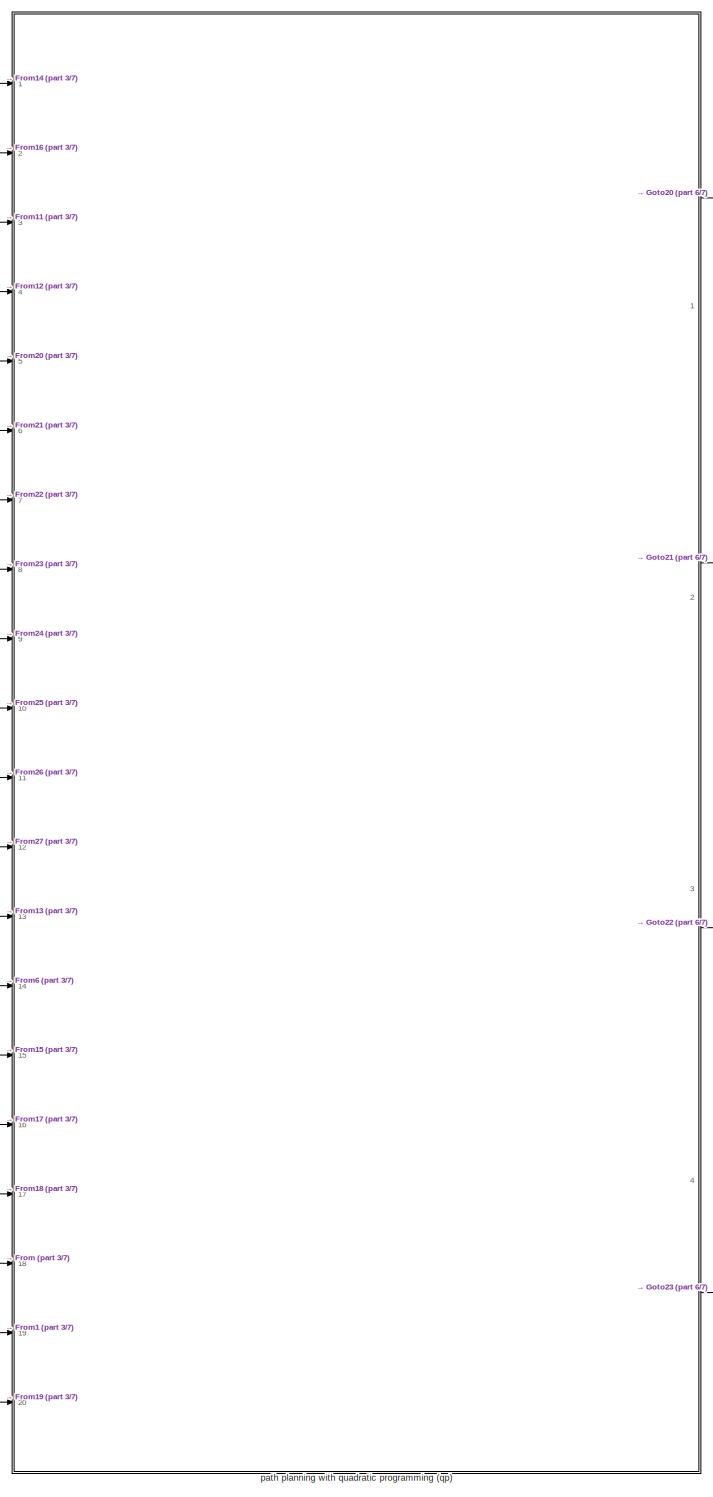
[diagram: LCS_Angle/Trajectory_Planning/QP_Path - part 1/7, center side, full height]
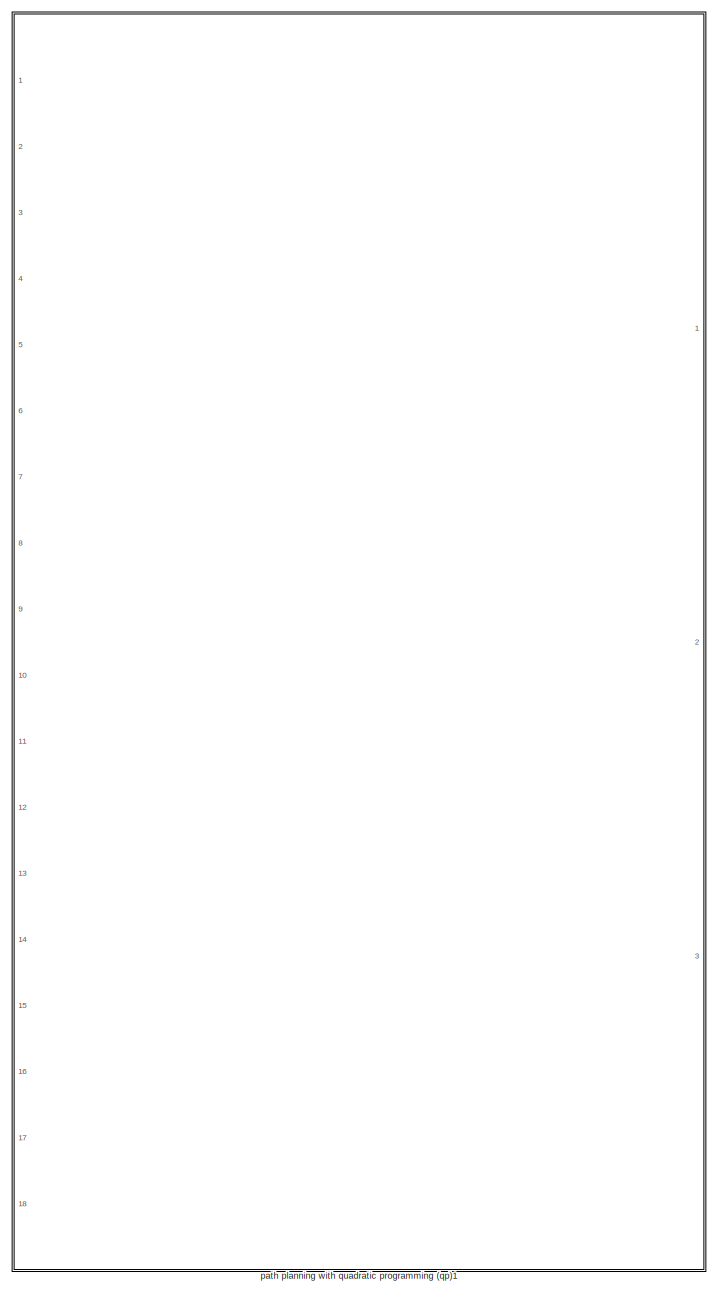
[diagram: LCS_Angle/Trajectory_Planning/QP_Path - part 2/7, right side, full height]
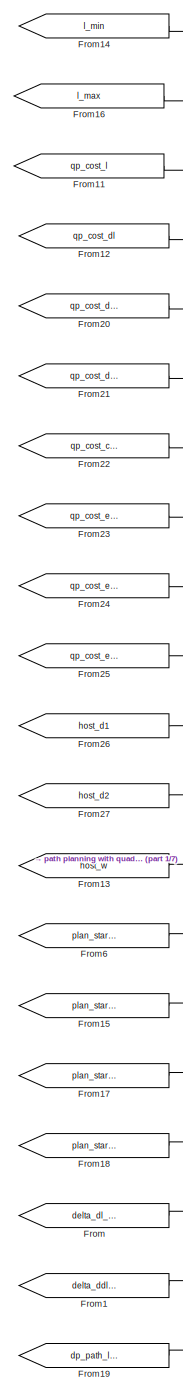
[diagram: LCS_Angle/Trajectory_Planning/QP_Path - part 3/7, left side, full height]
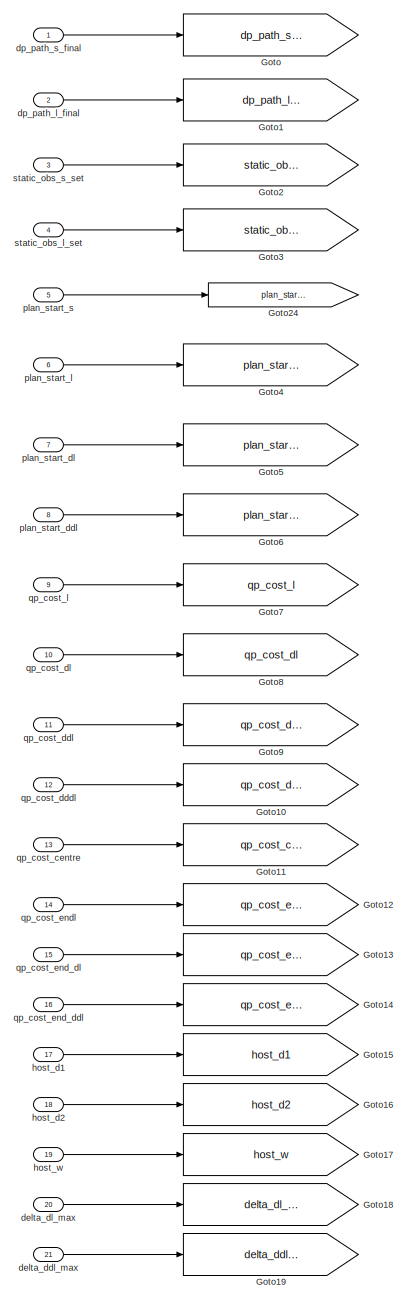
[diagram: LCS_Angle/Trajectory_Planning/QP_Path - part 4/7, left side, full height]
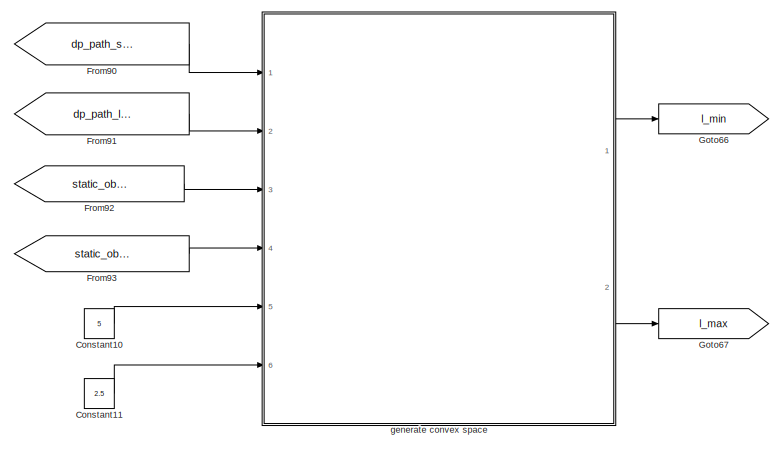
[diagram: LCS_Angle/Trajectory_Planning/QP_Path - part 5/7, top left region]
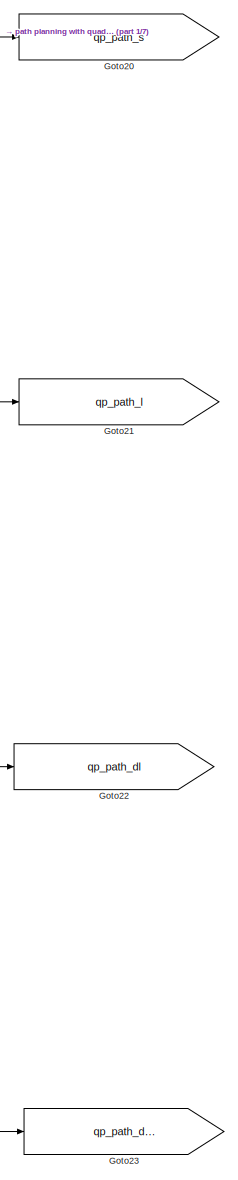
[diagram: LCS_Angle/Trajectory_Planning/QP_Path - part 6/7, center side, full height]
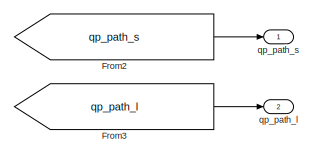
[diagram: LCS_Angle/Trajectory_Planning/QP_Path - part 7/7, central region]
BLOCK [SubSystem] LCS_Angle/Trajectory_Planning/QP_Path
  Ports = [21, 2]
  RequestExecContextInheritance = off
BLOCK [Constant] LCS_Angle/Trajectory_Planning/QP_Path/Constant10
  OutDataTypeStr = single
  Value = 5
BLOCK [Constant] LCS_Angle/Trajectory_Planning/QP_Path/Constant11
  OutDataTypeStr = single
  Value = 2.5
BLOCK [From] LCS_Angle/Trajectory_Planning/QP_Path/From
  GotoTag = delta_dl_max
BLOCK [From] LCS_Angle/Trajectory_Planning/QP_Path/From1
  GotoTag = delta_ddl_max
BLOCK [From] LCS_Angle/Trajectory_Planning/QP_Path/From11
  GotoTag = qp_cost_l
BLOCK [From] LCS_Angle/Trajectory_Planning/QP_Path/From12
  GotoTag = qp_cost_dl
BLOCK [From] LCS_Angle/Trajectory_Planning/QP_Path/From13
  GotoTag = host_w
BLOCK [From] LCS_Angle/Trajectory_Planning/QP_Path/From14
  GotoTag = l_min
BLOCK [From] LCS_Angle/Trajectory_Planning/QP_Path/From15
  GotoTag = plan_start_l
BLOCK [From] LCS_Angle/Trajectory_Planning/QP_Path/From16
  GotoTag = l_max
BLOCK [From] LCS_Angle/Trajectory_Planning/QP_Path/From17
  GotoTag = plan_start_dl
BLOCK [From] LCS_Angle/Trajectory_Planning/QP_Path/From18
  GotoTag = plan_start_ddl
BLOCK [From] LCS_Angle/Trajectory_Planning/QP_Path/From19
  GotoTag = dp_path_l_final
BLOCK [From] LCS_Angle/Trajectory_Planning/QP_Path/From2
  GotoTag = qp_path_s
BLOCK [From] LCS_Angle/Trajectory_Planning/QP_Path/From20
  GotoTag = qp_cost_ddl
BLOCK [From] LCS_Angle/Trajectory_Planning/QP_Path/From21
  GotoTag = qp_cost_dddl
BLOCK [From] LCS_Angle/Trajectory_Planning/QP_Path/From22
  GotoTag = qp_cost_centre
BLOCK [From] LCS_Angle/Trajectory_Planning/QP_Path/From23
  GotoTag = qp_cost_endl
BLOCK [From] LCS_Angle/Trajectory_Planning/QP_Path/From24
  GotoTag = qp_cost_end_dl
BLOCK [From] LCS_Angle/Trajectory_Planning/QP_Path/From25
  GotoTag = qp_cost_end_ddl
BLOCK [From] LCS_Angle/Trajectory_Planning/QP_Path/From26
  GotoTag = host_d1
BLOCK [From] LCS_Angle/Trajectory_Planning/QP_Path/From27
  GotoTag = host_d2
BLOCK [From] LCS_Angle/Trajectory_Planning/QP_Path/From3
  GotoTag = qp_path_l
BLOCK [From] LCS_Angle/Trajectory_Planning/QP_Path/From6
  GotoTag = plan_start_s
BLOCK [From] LCS_Angle/Trajectory_Planning/QP_Path/From90
  GotoTag = dp_path_s_final
BLOCK [From] LCS_Angle/Trajectory_Planning/QP_Path/From91
  GotoTag = dp_path_l_final
BLOCK [From] LCS_Angle/Trajectory_Planning/QP_Path/From92
  GotoTag = static_obs_s_set
BLOCK [From] LCS_Angle/Trajectory_Planning/QP_Path/From93
  GotoTag = static_obs_l_set
BLOCK [Goto] LCS_Angle/Trajectory_Planning/QP_Path/Goto
  GotoTag = dp_path_s_final
BLOCK [Goto] LCS_Angle/Trajectory_Planning/QP_Path/Goto1
  GotoTag = dp_path_l_final
BLOCK [Goto] LCS_Angle/Trajectory_Planning/QP_Path/Goto10
  GotoTag = qp_cost_dddl
BLOCK [Goto] LCS_Angle/Trajectory_Planning/QP_Path/Goto11
  GotoTag = qp_cost_centre
BLOCK [Goto] LCS_Angle/Trajectory_Planning/QP_Path/Goto12
  GotoTag = qp_cost_endl
BLOCK [Goto] LCS_Angle/Trajectory_Planning/QP_Path/Goto13
  GotoTag = qp_cost_end_dl
BLOCK [Goto] LCS_Angle/Trajectory_Planning/QP_Path/Goto14
  GotoTag = qp_cost_end_ddl
BLOCK [Goto] LCS_Angle/Trajectory_Planning/QP_Path/Goto15
  GotoTag = host_d1
BLOCK [Goto] LCS_Angle/Trajectory_Planning/QP_Path/Goto16
  GotoTag = host_d2
BLOCK [Goto] LCS_Angle/Trajectory_Planning/QP_Path/Goto17
  GotoTag = host_w
BLOCK [Goto] LCS_Angle/Trajectory_Planning/QP_Path/Goto18
  GotoTag = delta_dl_max
BLOCK [Goto] LCS_Angle/Trajectory_Planning/QP_Path/Goto19
  GotoTag = delta_ddl_max
BLOCK [Goto] LCS_Angle/Trajectory_Planning/QP_Path/Goto2
  GotoTag = static_obs_s_set
BLOCK [Goto] LCS_Angle/Trajectory_Planning/QP_Path/Goto20
  GotoTag = qp_path_s
BLOCK [Goto] LCS_Angle/Trajectory_Planning/QP_Path/Goto21
  GotoTag = qp_path_l
BLOCK [Goto] LCS_Angle/Trajectory_Planning/QP_Path/Goto22
  GotoTag = qp_path_dl
BLOCK [Goto] LCS_Angle/Trajectory_Planning/QP_Path/Goto23
  GotoTag = qp_path_ddl
BLOCK [Goto] LCS_Angle/Trajectory_Planning/QP_Path/Goto24
  GotoTag = plan_start_s
BLOCK [Goto] LCS_Angle/Trajectory_Planning/QP_Path/Goto3
  GotoTag = static_obs_l_set
BLOCK [Goto] LCS_Angle/Trajectory_Planning/QP_Path/Goto4
  GotoTag = plan_start_l
BLOCK [Goto] LCS_Angle/Trajectory_Planning/QP_Path/Goto5
  GotoTag = plan_start_dl
BLOCK [Goto] LCS_Angle/Trajectory_Planning/QP_Path/Goto6
  GotoTag = plan_start_ddl
BLOCK [Goto] LCS_Angle/Trajectory_Planning/QP_Path/Goto66
  GotoTag = l_min
BLOCK [Goto] LCS_Angle/Trajectory_Planning/QP_Path/Goto67
  GotoTag = l_max
BLOCK [Goto] LCS_Angle/Trajectory_Planning/QP_Path/Goto7
  GotoTag = qp_cost_l
BLOCK [Goto] LCS_Angle/Trajectory_Planning/QP_Path/Goto8
  GotoTag = qp_cost_dl
BLOCK [Goto] LCS_Angle/Trajectory_Planning/QP_Path/Goto9
  GotoTag = qp_cost_ddl
BLOCK [Inport] LCS_Angle/Trajectory_Planning/QP_Path/delta_ddl_max
  Port = 21
BLOCK [Inport] LCS_Angle/Trajectory_Planning/QP_Path/delta_dl_max
  Port = 20
BLOCK [Inport] LCS_Angle/Trajectory_Planning/QP_Path/dp_path_l_final
  Port = 2
BLOCK [Inport] LCS_Angle/Trajectory_Planning/QP_Path/dp_path_s_final
BLOCK [SubSystem] LCS_Angle/Trajectory_Planning/QP_Path/generate convex space
  ErrorFcn = Stateflow.Translate.translate
  PermitHierarchicalResolution = ExplicitOnly
  Ports = [6, 2]
  RequestExecContextInheritance = off
  SFBlockType = MATLAB Function
  TreatAsAtomicUnit = on
BLOCK [Demux] LCS_Angle/Trajectory_Planning/QP_Path/generate convex space/ Demux 
  Outputs = 1
  Ports = [1, 1]
BLOCK [S-Function] LCS_Angle/Trajectory_Planning/QP_Path/generate convex space/ SFunction 
  EnableBusSupport = on
  FunctionName = sf_sfun
  PortCounts = [6 3]
  Ports = [6, 3]
  SFcnIsStateOwnerBlock = off
  SFunctionDeploymentMode = off
  Tag = Stateflow S-Function 44
BLOCK [Terminator] LCS_Angle/Trajectory_Planning/QP_Path/generate convex space/ Terminator 
BLOCK [Inport] LCS_Angle/Trajectory_Planning/QP_Path/generate convex space/dp_path_l
  Port = 2
BLOCK [Inport] LCS_Angle/Trajectory_Planning/QP_Path/generate convex space/dp_path_s
BLOCK [Outport] LCS_Angle/Trajectory_Planning/QP_Path/generate convex space/l_max
  Port = 2
BLOCK [Outport] LCS_Angle/Trajectory_Planning/QP_Path/generate convex space/l_min
BLOCK [Inport] LCS_Angle/Trajectory_Planning/QP_Path/generate convex space/static_obs_l_set
  Port = 4
BLOCK [Inport] LCS_Angle/Trajectory_Planning/QP_Path/generate convex space/static_obs_length
  Port = 5
BLOCK [Inport] LCS_Angle/Trajectory_Planning/QP_Path/generate convex space/static_obs_s_set
  Port = 3
BLOCK [Inport] LCS_Angle/Trajectory_Planning/QP_Path/generate convex space/static_obs_width
  Port = 6
BLOCK [Inport] LCS_Angle/Trajectory_Planning/QP_Path/host_d1
  Port = 17
BLOCK [Inport] LCS_Angle/Trajectory_Planning/QP_Path/host_d2
  Port = 18
BLOCK [Inport] LCS_Angle/Trajectory_Planning/QP_Path/host_w
  Port = 19
BLOCK [SubSystem] LCS_Angle/Trajectory_Planning/QP_Path/path planning with quadratic programming (qp)
  ErrorFcn = Stateflow.Translate.translate
  PermitHierarchicalResolution = ExplicitOnly
  Ports = [20, 4]
  RequestExecContextInheritance = off
  SFBlockType = MATLAB Function
  TreatAsAtomicUnit = on
BLOCK [Demux] LCS_Angle/Trajectory_Planning/QP_Path/path planning with quadratic programming (qp)/ Demux 
  Outputs = 1
  Ports = [1, 1]
BLOCK [S-Function] LCS_Angle/Trajectory_Planning/QP_Path/path planning with quadratic programming (qp)/ SFunction 
  EnableBusSupport = on
  FunctionName = sf_sfun
  PortCounts = [20 5]
  Ports = [20, 5]
  SFcnIsStateOwnerBlock = off
  SFunctionDeploymentMode = off
  Tag = Stateflow S-Function 4
BLOCK [Terminator] LCS_Angle/Trajectory_Planning/QP_Path/path planning with quadratic programming (qp)/ Terminator 
BLOCK [Inport] LCS_Angle/Trajectory_Planning/QP_Path/path planning with quadratic programming (qp)/delta_ddl_max
  Port = 19
BLOCK [Inport] LCS_Angle/Trajectory_Planning/QP_Path/path planning with quadratic programming (qp)/delta_dl_max
  Port = 18
BLOCK [Inport] LCS_Angle/Trajectory_Planning/QP_Path/path planning with quadratic programming (qp)/dp_path_l_final
  Port = 20
BLOCK [Inport] LCS_Angle/Trajectory_Planning/QP_Path/path planning with quadratic programming (qp)/host_d1
  Port = 11
BLOCK [Inport] LCS_Angle/Trajectory_Planning/QP_Path/path planning with quadratic programming (qp)/host_d2
  Port = 12
BLOCK [Inport] LCS_Angle/Trajectory_Planning/QP_Path/path planning with quadratic programming (qp)/host_w
  Port = 13
BLOCK [Inport] LCS_Angle/Trajectory_Planning/QP_Path/path planning with quadratic programming (qp)/l_max
  Port = 2
BLOCK [Inport] LCS_Angle/Trajectory_Planning/QP_Path/path planning with quadratic programming (qp)/l_min
BLOCK [Inport] LCS_Angle/Trajectory_Planning/QP_Path/path planning with quadratic programming (qp)/plan_start_ddl
  Port = 17
BLOCK [Inport] LCS_Angle/Trajectory_Planning/QP_Path/path planning with quadratic programming (qp)/plan_start_dl
  Port = 16
BLOCK [Inport] LCS_Angle/Trajectory_Planning/QP_Path/path planning with quadratic programming (qp)/plan_start_l
  Port = 15
BLOCK [Inport] LCS_Angle/Trajectory_Planning/QP_Path/path planning with quadratic programming (qp)/plan_start_s
  Port = 14
BLOCK [Outport] LCS_Angle/Trajectory_Planning/QP_Path/path planning with quadratic programming (qp)/qp_path_ddl
  Port = 4
BLOCK [Outport] LCS_Angle/Trajectory_Planning/QP_Path/path planning with quadratic programming (qp)/qp_path_dl
  Port = 3
BLOCK [Outport] LCS_Angle/Trajectory_Planning/QP_Path/path planning with quadratic programming (qp)/qp_path_l
  Port = 2
BLOCK [Outport] LCS_Angle/Trajectory_Planning/QP_Path/path planning with quadratic programming (qp)/qp_path_s
BLOCK [Inport] LCS_Angle/Trajectory_Planning/QP_Path/path planning with quadratic programming (qp)/w_cost_centre
  Port = 7
BLOCK [Inport] LCS_Angle/Trajectory_Planning/QP_Path/path planning with quadratic programming (qp)/w_cost_dddl
  Port = 6
BLOCK [Inport] LCS_Angle/Trajectory_Planning/QP_Path/path planning with quadratic programming (qp)/w_cost_ddl
  Port = 5
BLOCK [Inport] LCS_Angle/Trajectory_Planning/QP_Path/path planning with quadratic programming (qp)/w_cost_dl
  Port = 4
BLOCK [Inport] LCS_Angle/Trajectory_Planning/QP_Path/path planning with quadratic programming (qp)/w_cost_end_ddl
  Port = 10
BLOCK [Inport] LCS_Angle/Trajectory_Planning/QP_Path/path planning with quadratic programming (qp)/w_cost_end_dl
  Port = 9
BLOCK [Inport] LCS_Angle/Trajectory_Planning/QP_Path/path planning with quadratic programming (qp)/w_cost_end_l
  Port = 8
BLOCK [Inport] LCS_Angle/Trajectory_Planning/QP_Path/path planning with quadratic programming (qp)/w_cost_l
  Port = 3
BLOCK [SubSystem] LCS_Angle/Trajectory_Planning/QP_Path/path planning with quadratic programming (qp)1
  Commented = on
  ErrorFcn = Stateflow.Translate.translate
  PermitHierarchicalResolution = ExplicitOnly
  Ports = [18, 3]
  RequestExecContextInheritance = off
  SFBlockType = MATLAB Function
  TreatAsAtomicUnit = on
BLOCK [Demux] LCS_Angle/Trajectory_Planning/QP_Path/path planning with quadratic programming (qp)1/ Demux 
  Outputs = 1
  Ports = [1, 1]
BLOCK [S-Function] LCS_Angle/Trajectory_Planning/QP_Path/path planning with quadratic programming (qp)1/ SFunction 
  EnableBusSupport = on
  FunctionName = sf_sfun
  PortCounts = [18 4]
  Ports = [18, 4]
  SFcnIsStateOwnerBlock = off
  SFunctionDeploymentMode = off
  Tag = Stateflow S-Function 12
BLOCK [Terminator] LCS_Angle/Trajectory_Planning/QP_Path/path planning with quadratic programming (qp)1/ Terminator 
BLOCK [Inport] LCS_Angle/Trajectory_Planning/QP_Path/path planning with quadratic programming (qp)1/dp_path_l_final
  Port = 18
BLOCK [Inport] LCS_Angle/Trajectory_Planning/QP_Path/path planning with quadratic programming (qp)1/host_d1
  Port = 12
BLOCK [Inport] LCS_Angle/Trajectory_Planning/QP_Path/path planning with quadratic programming (qp)1/host_d2
  Port = 13
BLOCK [Inport] LCS_Angle/Trajectory_Planning/QP_Path/path planning with quadratic programming (qp)1/host_w
  Port = 14
BLOCK [Inport] LCS_Angle/Trajectory_Planning/QP_Path/path planning with quadratic programming (qp)1/kappa_max
BLOCK [Inport] LCS_Angle/Trajectory_Planning/QP_Path/path planning with quadratic programming (qp)1/l_max
  Port = 3
BLOCK [Inport] LCS_Angle/Trajectory_Planning/QP_Path/path planning with quadratic programming (qp)1/l_min
  Port = 2
BLOCK [Inport] LCS_Angle/Trajectory_Planning/QP_Path/path planning with quadratic programming (qp)1/plan_start_ddl
  Port = 17
BLOCK [Inport] LCS_Angle/Trajectory_Planning/QP_Path/path planning with quadratic programming (qp)1/plan_start_dl
  Port = 16
BLOCK [Inport] LCS_Angle/Trajectory_Planning/QP_Path/path planning with quadratic programming (qp)1/plan_start_l
  Port = 15
BLOCK [Outport] LCS_Angle/Trajectory_Planning/QP_Path/path planning with quadratic programming (qp)1/qp_path_ddl
  Port = 3
BLOCK [Outport] LCS_Angle/Trajectory_Planning/QP_Path/path planning with quadratic programming (qp)1/qp_path_dl
  Port = 2
BLOCK [Outport] LCS_Angle/Trajectory_Planning/QP_Path/path planning with quadratic programming (qp)1/qp_path_l
BLOCK [Inport] LCS_Angle/Trajectory_Planning/QP_Path/path planning with quadratic programming (qp)1/w_cost_centre
  Port = 8
BLOCK [Inport] LCS_Angle/Trajectory_Planning/QP_Path/path planning with quadratic programming (qp)1/w_cost_dddl
  Port = 7
BLOCK [Inport] LCS_Angle/Trajectory_Planning/QP_Path/path planning with quadratic programming (qp)1/w_cost_ddl
  Port = 6
BLOCK [Inport] LCS_Angle/Trajectory_Planning/QP_Path/path planning with quadratic programming (qp)1/w_cost_dl
  Port = 5
BLOCK [Inport] LCS_Angle/Trajectory_Planning/QP_Path/path planning with quadratic programming (qp)1/w_cost_end_ddl
  Port = 11
BLOCK [Inport] LCS_Angle/Trajectory_Planning/QP_Path/path planning with quadratic programming (qp)1/w_cost_end_dl
  Port = 10
BLOCK [Inport] LCS_Angle/Trajectory_Planning/QP_Path/path planning with quadratic programming (qp)1/w_cost_end_l
  Port = 9
BLOCK [Inport] LCS_Angle/Trajectory_Planning/QP_Path/path planning with quadratic programming (qp)1/w_cost_l
  Port = 4
BLOCK [Inport] LCS_Angle/Trajectory_Planning/QP_Path/plan_start_ddl
  Port = 8
BLOCK [Inport] LCS_Angle/Trajectory_Planning/QP_Path/plan_start_dl
  Port = 7
BLOCK [Inport] LCS_Angle/Trajectory_Planning/QP_Path/plan_start_l
  Port = 6
BLOCK [Inport] LCS_Angle/Trajectory_Planning/QP_Path/plan_start_s
  Port = 5
BLOCK [Inport] LCS_Angle/Trajectory_Planning/QP_Path/qp_cost_centre
  Port = 13
BLOCK [Inport] LCS_Angle/Trajectory_Planning/QP_Path/qp_cost_dddl
  Port = 12
BLOCK [Inport] LCS_Angle/Trajectory_Planning/QP_Path/qp_cost_ddl
  Port = 11
BLOCK [Inport] LCS_Angle/Trajectory_Planning/QP_Path/qp_cost_dl
  Port = 10
BLOCK [Inport] LCS_Angle/Trajectory_Planning/QP_Path/qp_cost_end_ddl
  Port = 16
BLOCK [Inport] LCS_Angle/Trajectory_Planning/QP_Path/qp_cost_end_dl
  Port = 15
BLOCK [Inport] LCS_Angle/Trajectory_Planning/QP_Path/qp_cost_endl
  Port = 14
BLOCK [Inport] LCS_Angle/Trajectory_Planning/QP_Path/qp_cost_l
  Port = 9
BLOCK [Outport] LCS_Angle/Trajectory_Planning/QP_Path/qp_path_l
  Port = 2
BLOCK [Outport] LCS_Angle/Trajectory_Planning/QP_Path/qp_path_s
BLOCK [Inport] LCS_Angle/Trajectory_Planning/QP_Path/static_obs_l_set
  Port = 4
BLOCK [Inport] LCS_Angle/Trajectory_Planning/QP_Path/static_obs_s_set
  Port = 3
BLOCK [Inport] LCS_Angle/Trajectory_Planning/Ref_X
BLOCK [Inport] LCS_Angle/Trajectory_Planning/Ref_Y
  Port = 2
BLOCK [Outport] LCS_Angle/Trajectory_Planning/Target_Trajectory
BLOCK [Terminator] LCS_Angle/Trajectory_Planning/Terminator
BLOCK [Terminator] LCS_Angle/Trajectory_Planning/Terminator1
BLOCK [Inport] LCS_Angle/Trajectory_Planning/Vehicle_Spd
  Port = 3
BLOCK [SubSystem] LCS_Angle/Trajectory_Points
  Ports = [5, 3]
  RequestExecContextInheritance = off
BLOCK [Inport] LCS_Angle/Trajectory_Points/A0
BLOCK [Inport] LCS_Angle/Trajectory_Points/A1
  Port = 2
BLOCK [Inport] LCS_Angle/Trajectory_Points/A2
  Port = 3
BLOCK [Inport] LCS_Angle/Trajectory_Points/A3
  Port = 4
BLOCK [Outport] LCS_Angle/Trajectory_Points/Control_Valid
  Port = 3
BLOCK [Outport] LCS_Angle/Trajectory_Points/LCS_TurnCenterPointX
BLOCK [Outport] LCS_Angle/Trajectory_Points/LCS_TurnCenterPointY
  Port = 2
BLOCK [Inport] LCS_Angle/Trajectory_Points/LineVaild
  Port = 5
BLOCK [SubSystem] LCS_Angle/Trajectory_Points/MATLAB Function1
  ErrorFcn = Stateflow.Translate.translate
  PermitHierarchicalResolution = ExplicitOnly
  Ports = [2, 2]
  RequestExecContextInheritance = off
  SFBlockType = MATLAB Function
  TreatAsAtomicUnit = on
BLOCK [Demux] LCS_Angle/Trajectory_Points/MATLAB Function1/ Demux 
  Outputs = 1
  Ports = [1, 1]
BLOCK [S-Function] LCS_Angle/Trajectory_Points/MATLAB Function1/ SFunction 
  EnableBusSupport = on
  FunctionName = sf_sfun
  PortCounts = [2 3]
  Ports = [2, 3]
  SFcnIsStateOwnerBlock = off
  SFunctionDeploymentMode = off
  Tag = Stateflow S-Function 15
BLOCK [Terminator] LCS_Angle/Trajectory_Points/MATLAB Function1/ Terminator 
BLOCK [Outport] LCS_Angle/Trajectory_Points/MATLAB Function1/CenterLinePoint2_X
BLOCK [Outport] LCS_Angle/Trajectory_Points/MATLAB Function1/CenterLinePoint2_Y
  Port = 2
BLOCK [Inport] LCS_Angle/Trajectory_Points/MATLAB Function1/CenterLinePointX
BLOCK [Inport] LCS_Angle/Trajectory_Points/MATLAB Function1/CenterLinePointY
  Port = 2
BLOCK [SubSystem] LCS_Angle/Trajectory_Points/RoadCreate1
  Ports = [5, 3]
  RequestExecContextInheritance = off
BLOCK [Inport] LCS_Angle/Trajectory_Points/RoadCreate1/A0
  OutDataTypeStr = single
BLOCK [Inport] LCS_Angle/Trajectory_Points/RoadCreate1/A1
  Port = 2
BLOCK [Inport] LCS_Angle/Trajectory_Points/RoadCreate1/A2
  Port = 3
BLOCK [Inport] LCS_Angle/Trajectory_Points/RoadCreate1/A3
  Port = 4
BLOCK [Outport] LCS_Angle/Trajectory_Points/RoadCreate1/CenterLinePointX
BLOCK [Outport] LCS_Angle/Trajectory_Points/RoadCreate1/CenterLinePointY
  Port = 2
BLOCK [Constant] LCS_Angle/Trajectory_Points/RoadCreate1/Constant25
  Value = P_LCS_LineVaildSW
BLOCK [Constant] LCS_Angle/Trajectory_Points/RoadCreate1/Constant33
  OutDataTypeStr = boolean
  Value = 0
BLOCK [Outport] LCS_Angle/Trajectory_Points/RoadCreate1/Control_Valid
  OutDataTypeStr = boolean
  Port = 3
BLOCK [Inport] LCS_Angle/Trajectory_Points/RoadCreate1/LineVaild
  Port = 5
BLOCK [SubSystem] LCS_Angle/Trajectory_Points/RoadCreate1/MATLAB Function1
  ErrorFcn = Stateflow.Translate.translate
  PermitHierarchicalResolution = ExplicitOnly
  Ports = [4, 2]
  RequestExecContextInheritance = off
  SFBlockType = MATLAB Function
  TreatAsAtomicUnit = on
BLOCK [Demux] LCS_Angle/Trajectory_Points/RoadCreate1/MATLAB Function1/ Demux 
  Outputs = 1
  Ports = [1, 1]
BLOCK [S-Function] LCS_Angle/Trajectory_Points/RoadCreate1/MATLAB Function1/ SFunction 
  EnableBusSupport = on
  FunctionName = sf_sfun
  PortCounts = [4 3]
  Ports = [4, 3]
  SFcnIsStateOwnerBlock = off
  SFunctionDeploymentMode = off
  Tag = Stateflow S-Function 18
BLOCK [Terminator] LCS_Angle/Trajectory_Points/RoadCreate1/MATLAB Function1/ Terminator 
BLOCK [Inport] LCS_Angle/Trajectory_Points/RoadCreate1/MATLAB Function1/A0
BLOCK [Inport] LCS_Angle/Trajectory_Points/RoadCreate1/MATLAB Function1/A1
  Port = 2
BLOCK [Inport] LCS_Angle/Trajectory_Points/RoadCreate1/MATLAB Function1/A2
  Port = 3
BLOCK [Inport] LCS_Angle/Trajectory_Points/RoadCreate1/MATLAB Function1/A3
  Port = 4
BLOCK [Outport] LCS_Angle/Trajectory_Points/RoadCreate1/MATLAB Function1/CenterLinePointX
BLOCK [Outport] LCS_Angle/Trajectory_Points/RoadCreate1/MATLAB Function1/CenterLinePointY
  Port = 2
BLOCK [Switch] LCS_Angle/Trajectory_Points/RoadCreate1/Switch2
  Criteria = u2 > Threshold
  InputSameDT = off
  SaturateOnIntegerOverflow = off
BLOCK [Outport] LCS_Angle/TrgSteerAngle
  OutDataTypeStr = single
BLOCK [Inport] LCS_Angle/Veh_Ax
  Port = 19
BLOCK [Inport] LCS_Angle/alpSideSlipAngle
  Port = 17
BLOCK [Inport] LCS_Angle/canEPS_DrvInputTorq
  Port = 4
BLOCK [Inport] LCS_Angle/canEPS_LKATorqOvrlDlvd
  Port = 3
BLOCK [Inport] LCS_Angle/canSteerWheelAngle
BLOCK [Inport] LCS_Angle/canSteerWheelAngleSign
  Port = 2
BLOCK [Inport] LCS_Angle/canSteerWheelSpd
  Port = 5
BLOCK [Inport] LCS_Angle/canSteerWheelSpdSign
  Port = 6
BLOCK [Inport] LCS_Angle/desLaneA0
  Port = 13
BLOCK [Inport] LCS_Angle/desLaneA1
  Port = 12
BLOCK [Inport] LCS_Angle/desLaneA2
  Port = 11
BLOCK [Inport] LCS_Angle/desLaneA3
  Port = 10
BLOCK [Inport] LCS_Angle/desLaneValid
  Port = 9
BLOCK [Outport] LCS_Angle/epsTrqReqFlag
  Port = 3
BLOCK [Outport] LCS_Angle/epsTrqReqValue
  Port = 2
BLOCK [Inport] LCS_Angle/eviVxvRef_ms
  Port = 8
BLOCK [Inport] LCS_Angle/kapTraj
  Port = 15
BLOCK [Inport] LCS_Angle/psiDt
  Port = 18
BLOCK [Goto] LCS_Angle/sig_LCKTorq_SteerAngle_deg
  GotoTag = SteerAngle_deg
BLOCK [Goto] LCS_Angle/sig_SteerAngleOffset_deg
  GotoTag = SteerAngleOffset_deg
BLOCK [SubSystem] MF4Reader
  AttributesFormatString = %<Description>
  Description = Comment: 高速直道持续偏右
  NameLocation = top
  Ports = [0, 21]
  RequestExecContextInheritance = off
BLOCK [Outport] MF4Reader/LCS_IN_CurrentLaneWidth
  Port = 16
BLOCK [Outport] MF4Reader/LCS_IN_EPS_DrvInpTrqVal
  Port = 4
BLOCK [Outport] MF4Reader/LCS_IN_EPS_LKATorqOvrlDlvd
  Port = 3
BLOCK [Outport] MF4Reader/LCS_IN_SteerAngOffset_deg
  Port = 7
BLOCK [Outport] MF4Reader/LCS_IN_SteerWheelAng
BLOCK [Outport] MF4Reader/LCS_IN_SteerWheelAngleSign
  Port = 2
BLOCK [Outport] MF4Reader/LCS_IN_SteerWheelSpd
  Port = 5
BLOCK [Outport] MF4Reader/LCS_IN_SteerWheelSpdSign
  Port = 6
BLOCK [Outport] MF4Reader/LCS_IN_TarDangerLevel
  Port = 14
BLOCK [Outport] MF4Reader/LCS_IN_alpSideSlipAngle
  Port = 17
BLOCK [Outport] MF4Reader/LCS_IN_axvRefMs2
  Port = 19
BLOCK [Outport] MF4Reader/LCS_IN_desLaneA0
  Port = 13
BLOCK [Outport] MF4Reader/LCS_IN_desLaneA1
  Port = 12
BLOCK [Outport] MF4Reader/LCS_IN_desLaneA2
  Port = 11
BLOCK [Outport] MF4Reader/LCS_IN_desLaneA3
  Port = 10
BLOCK [Outport] MF4Reader/LCS_IN_desLaneValid
  Port = 9
BLOCK [Outport] MF4Reader/LCS_IN_kapTraj
  Port = 15
BLOCK [Outport] MF4Reader/LCS_IN_psiDtOpt
  Port = 18
BLOCK [Outport] MF4Reader/LCS_IN_vxvRefMs
  Port = 8
BLOCK [Outport] MF4Reader/LCS_OUT_AngCmdReqValVld
  Port = 20
BLOCK [Outport] MF4Reader/LCS_OUT_ReqEPSTrgAngle
  Port = 21
BLOCK [FromWorkspace] MF4Reader/sourceValue_LCS_IN_CurrentLaneWidth
  Interpolate = off
  OutputAfterFinalValue = Setting to zero
  VariableName = s_LCS_IN_CurrentLaneWidth
BLOCK [FromWorkspace] MF4Reader/sourceValue_LCS_IN_EPS_DrvInpTrqVal
  Interpolate = off
  OutputAfterFinalValue = Setting to zero
  VariableName = s_LCS_IN_EPS_DrvInpTrqVal
BLOCK [FromWorkspace] MF4Reader/sourceValue_LCS_IN_EPS_LKATorqOvrlDlvd
  Interpolate = off
  OutputAfterFinalValue = Setting to zero
  VariableName = s_LCS_IN_EPS_LKATorqOvrlDlvd
BLOCK [FromWorkspace] MF4Reader/sourceValue_LCS_IN_SteerAngOffset_deg
  Interpolate = off
  OutputAfterFinalValue = Setting to zero
  VariableName = s_LCS_IN_SteerAngOffset_deg
BLOCK [FromWorkspace] MF4Reader/sourceValue_LCS_IN_SteerWheelAng
  Interpolate = off
  OutputAfterFinalValue = Setting to zero
  VariableName = s_LCS_IN_SteerWheelAng
BLOCK [FromWorkspace] MF4Reader/sourceValue_LCS_IN_SteerWheelAngleSign
  Interpolate = off
  OutputAfterFinalValue = Setting to zero
  VariableName = s_LCS_IN_SteerWheelAngleSign
BLOCK [FromWorkspace] MF4Reader/sourceValue_LCS_IN_SteerWheelSpd
  Interpolate = off
  OutputAfterFinalValue = Setting to zero
  VariableName = s_LCS_IN_SteerWheelSpd
BLOCK [FromWorkspace] MF4Reader/sourceValue_LCS_IN_SteerWheelSpdSign
  Interpolate = off
  OutputAfterFinalValue = Setting to zero
  VariableName = s_LCS_IN_SteerWheelSpdSign
BLOCK [FromWorkspace] MF4Reader/sourceValue_LCS_IN_TarDangerLevel
  Interpolate = off
  OutputAfterFinalValue = Setting to zero
  VariableName = s_LCS_IN_TarDangerLevel
BLOCK [FromWorkspace] MF4Reader/sourceValue_LCS_IN_alpSideSlipAngle
  Interpolate = off
  OutputAfterFinalValue = Setting to zero
  VariableName = s_LCS_IN_alpSideSlipAngle
BLOCK [FromWorkspace] MF4Reader/sourceValue_LCS_IN_axvRefMs2
  Interpolate = off
  OutputAfterFinalValue = Setting to zero
  VariableName = s_LCS_IN_axvRefMs2
BLOCK [FromWorkspace] MF4Reader/sourceValue_LCS_IN_desLaneA0
  Interpolate = off
  OutputAfterFinalValue = Setting to zero
  VariableName = s_LCS_IN_desLaneA0
BLOCK [FromWorkspace] MF4Reader/sourceValue_LCS_IN_desLaneA1
  Interpolate = off
  OutputAfterFinalValue = Setting to zero
  VariableName = s_LCS_IN_desLaneA1
BLOCK [FromWorkspace] MF4Reader/sourceValue_LCS_IN_desLaneA2
  Interpolate = off
  OutputAfterFinalValue = Setting to zero
  VariableName = s_LCS_IN_desLaneA2
BLOCK [FromWorkspace] MF4Reader/sourceValue_LCS_IN_desLaneA3
  Interpolate = off
  OutputAfterFinalValue = Setting to zero
  VariableName = s_LCS_IN_desLaneA3
BLOCK [FromWorkspace] MF4Reader/sourceValue_LCS_IN_desLaneValid
  Interpolate = off
  OutputAfterFinalValue = Setting to zero
  VariableName = s_LCS_IN_desLaneValid
BLOCK [FromWorkspace] MF4Reader/sourceValue_LCS_IN_kapTraj
  Interpolate = off
  OutputAfterFinalValue = Setting to zero
  VariableName = s_LCS_IN_kapTraj
BLOCK [FromWorkspace] MF4Reader/sourceValue_LCS_IN_psiDtOpt
  Interpolate = off
  OutputAfterFinalValue = Setting to zero
  VariableName = s_LCS_IN_psiDtOpt
BLOCK [FromWorkspace] MF4Reader/sourceValue_LCS_IN_vxvRefMs
  Interpolate = off
  OutputAfterFinalValue = Setting to zero
  VariableName = s_LCS_IN_vxvRefMs
BLOCK [FromWorkspace] MF4Reader/sourceValue_LCS_OUT_AngCmdReqValVld
  Interpolate = off
  OutputAfterFinalValue = Setting to zero
  VariableName = s_LCS_OUT_AngCmdReqValVld
BLOCK [FromWorkspace] MF4Reader/sourceValue_LCS_OUT_ReqEPSTrgAngle
  Interpolate = off
  OutputAfterFinalValue = Setting to zero
  VariableName = s_LCS_OUT_ReqEPSTrgAngle
BLOCK [Scope] Scope
  Floating = off
  NumInputPorts = 2
  Ports = [2]
  ScopeSpecificationString = Simulink.scopes.TimeScopeBlockCfg('CurrentConfiguration', extmgr.ConfigurationSet(extmgr.Configuration('Core','General UI',true),extmgr.Configuration('Core','Source UI',true),extmgr.Configuration('Sources','WiredSimulink',true,'DataLoggingVariableName','ScopeData1'),extmgr.Configuration('Visuals','Time Domain',true,'SerializedDisplays',{struct('MinYLimReal','-31.58832','MaxYLimReal','59.41114','YL...<+1475ch>
ANNOTATION LCS_Angle: ESS请求角度斜率限制，防止EPS故障
ANNOTATION LCS_Angle/Controller/StateErrorCalc/Reference_Point_Select: 自车位置为原点
ANNOTATION LCS_Angle/Controller/TargetAngleCalc/SteerAngSlopeCalc: 0:No Function Active 1:LCK Active 2:LCKIE Active 3:LC Normal Active 4:LKA Active 5:ELK Active 6:ESS AES Active 7:LC Eco Active 8:LC Sport Active 9:LC cancel
ANNOTATION LCS_Angle/Controller/TargetAngleCalc/SteerAngSlopeCalc: 换道状态切换检测
ANNOTATION LCS_Angle/Controller/Understeer&Offset_Calc: %% 匀速
ANNOTATION MF4Reader: 请勿手动删减内部的模块，否则可能带来未知错误！
LINE Data Type Conversion1:1 -> LCS_Angle:1
LINE Data Type Conversion2:1 -> LCS_Angle:5
LINE Data Type Conversion3:1 -> LCS_Angle:7
LINE Data Type Conversion4:1 -> LCS_Angle:6
LINE Data Type Conversion5:1 -> LCS_Angle:10
LINE Data Type Conversion6:1 -> LCS_Angle:11
LINE Data Type Conversion7:1 -> LCS_Angle:12
LINE Data Type Conversion8:1 -> LCS_Angle:19
NET Data Type Conversion9:1 -> LCS_Angle:20, Scope:2
LINE Data Type Conversion:1 -> LCS_Angle:2
NET LCS_Angle/Abs1:1 -> LCS_Angle/Divide:1, LCS_Angle/Goto26:1
LINE LCS_Angle/Add1:1 -> LCS_Angle/sig_LCKTorq_SteerAngle_deg:1
LINE LCS_Angle/Bus Creator:1 -> LCS_Angle/Goto1:1
LINE LCS_Angle/Bus Selector:1 -> LCS_Angle/Controller:8
LINE LCS_Angle/Bus Selector:2 -> LCS_Angle/Controller:9
LINE LCS_Angle/Compare To Constant1:1 -> LCS_Angle/Switch1:2
LINE LCS_Angle/Constant16:1 -> LCS_Angle/Subsystem5:2
LINE LCS_Angle/Constant1:1 -> LCS_Angle/Trajectory_Points:3
LINE LCS_Angle/Constant:1 -> LCS_Angle/Trajectory_Points:1
LINE LCS_Angle/Controller/Add6:1 -> LCS_Angle/Controller/TrgSteerAngle:1
LINE LCS_Angle/Controller/ControlValid:1 -> LCS_Angle/Controller/Goto:1
LINE LCS_Angle/Controller/From10:1 -> LCS_Angle/Controller/StateErrorCalc:4
LINE LCS_Angle/Controller/From11:1 -> LCS_Angle/Controller/StateErrorCalc:5
LINE LCS_Angle/Controller/From12:1 -> LCS_Angle/Controller/StateErrorCalc:6
LINE LCS_Angle/Controller/From13:1 -> LCS_Angle/Controller/Understeer&Offset_Calc:1
LINE LCS_Angle/Controller/From14:1 -> LCS_Angle/Controller/Understeer&Offset_Calc:2
LINE LCS_Angle/Controller/From15:1 -> LCS_Angle/Controller/Understeer&Offset_Calc:3
LINE LCS_Angle/Controller/From16:1 -> LCS_Angle/Controller/Understeer&Offset_Calc:4
LINE LCS_Angle/Controller/From17:1 -> LCS_Angle/Controller/TargetAngleCalc:6
LINE LCS_Angle/Controller/From1:1 -> LCS_Angle/Controller/TargetAngleCalc:2
LINE LCS_Angle/Controller/From2:1 -> LCS_Angle/Controller/TargetAngleCalc:3
LINE LCS_Angle/Controller/From3:1 -> LCS_Angle/Controller/TargetAngleCalc:4
LINE LCS_Angle/Controller/From4:1 -> LCS_Angle/Controller/TargetAngleCalc:5
LINE LCS_Angle/Controller/From5:1 -> LCS_Angle/Controller/Saturation:1
LINE LCS_Angle/Controller/From6:1 -> LCS_Angle/Controller/TargetAngleCalc:7
LINE LCS_Angle/Controller/From7:1 -> LCS_Angle/Controller/StateErrorCalc:1
LINE LCS_Angle/Controller/From8:1 -> LCS_Angle/Controller/StateErrorCalc:2
LINE LCS_Angle/Controller/From9:1 -> LCS_Angle/Controller/StateErrorCalc:3
LINE LCS_Angle/Controller/From:1 -> LCS_Angle/Controller/TargetAngleCalc:1
LINE LCS_Angle/Controller/RefTrajX:1 -> LCS_Angle/Controller/Goto8:1
LINE LCS_Angle/Controller/RefTrajY:1 -> LCS_Angle/Controller/Goto9:1
LINE LCS_Angle/Controller/Saturation:1 -> LCS_Angle/Controller/Add6:2
LINE LCS_Angle/Controller/StateErrorCalc/Bus Creator:1 -> LCS_Angle/Controller/StateErrorCalc/LateralStateError:1
LINE LCS_Angle/Controller/StateErrorCalc/Bus Selector1:1 -> LCS_Angle/Controller/StateErrorCalc/MATLAB Function:4
LINE LCS_Angle/Controller/StateErrorCalc/Bus Selector1:2 -> LCS_Angle/Controller/StateErrorCalc/MATLAB Function:5
LINE LCS_Angle/Controller/StateErrorCalc/Bus Selector1:3 -> LCS_Angle/Controller/StateErrorCalc/MATLAB Function:6
LINE LCS_Angle/Controller/StateErrorCalc/Bus Selector1:4 -> LCS_Angle/Controller/StateErrorCalc/MATLAB Function:7
LINE LCS_Angle/Controller/StateErrorCalc/Bus Selector1:5 -> LCS_Angle/Controller/StateErrorCalc/MATLAB Function:8
NET LCS_Angle/Controller/StateErrorCalc/Bus Selector2:1 -> LCS_Angle/Controller/StateErrorCalc/Goto9:1, LCS_Angle/Controller/StateErrorCalc/MATLAB Function:9
NET LCS_Angle/Controller/StateErrorCalc/Bus Selector2:2 -> LCS_Angle/Controller/StateErrorCalc/Goto10:1, LCS_Angle/Controller/StateErrorCalc/MATLAB Function:10
LINE LCS_Angle/Controller/StateErrorCalc/Bus Selector2:3 -> LCS_Angle/Controller/StateErrorCalc/MATLAB Function:11
LINE LCS_Angle/Controller/StateErrorCalc/Bus Selector2:4 -> LCS_Angle/Controller/StateErrorCalc/Goto11:1
LINE LCS_Angle/Controller/StateErrorCalc/Bus Selector2:5 -> LCS_Angle/Controller/StateErrorCalc/Goto12:1
LINE LCS_Angle/Controller/StateErrorCalc/Bus Selector:1 -> LCS_Angle/Controller/StateErrorCalc/EgoMovement:4
LINE LCS_Angle/Controller/StateErrorCalc/Constant19:1 -> LCS_Angle/Controller/StateErrorCalc/EgoMovement:1
NET LCS_Angle/Controller/StateErrorCalc/Constant1:1 -> LCS_Angle/Controller/StateErrorCalc/EgoMovement:6, LCS_Angle/Controller/StateErrorCalc/EgoMovement:7
LINE LCS_Angle/Controller/StateErrorCalc/Constant3:1 -> LCS_Angle/Controller/StateErrorCalc/Reference_Point_Select:5
LINE LCS_Angle/Controller/StateErrorCalc/Constant4:1 -> LCS_Angle/Controller/StateErrorCalc/EgoMovement:8
LINE LCS_Angle/Controller/StateErrorCalc/Constant5:1 -> LCS_Angle/Controller/StateErrorCalc/MATLAB Function:1
LINE LCS_Angle/Controller/StateErrorCalc/Constant:1 -> LCS_Angle/Controller/StateErrorCalc/MATLAB Function2:5
LINE LCS_Angle/Controller/StateErrorCalc/EgoMovement:1 -> LCS_Angle/Controller/StateErrorCalc/Goto33:1
LINE LCS_Angle/Controller/StateErrorCalc/EgoMovement:2 -> LCS_Angle/Controller/StateErrorCalc/Goto15:1
LINE LCS_Angle/Controller/StateErrorCalc/EgoMovement:3 -> LCS_Angle/Controller/StateErrorCalc/Goto16:1
LINE LCS_Angle/Controller/StateErrorCalc/EgoMovement:4 -> LCS_Angle/Controller/StateErrorCalc/Goto31:1
LINE LCS_Angle/Controller/StateErrorCalc/EgoMovement:5 -> LCS_Angle/Controller/StateErrorCalc/Goto7:1
LINE LCS_Angle/Controller/StateErrorCalc/EgoMovement:6 -> LCS_Angle/Controller/StateErrorCalc/Goto4:1
LINE LCS_Angle/Controller/StateErrorCalc/EgoMovement:7 -> LCS_Angle/Controller/StateErrorCalc/Goto5:1
LINE LCS_Angle/Controller/StateErrorCalc/EgoMovement:8 -> LCS_Angle/Controller/StateErrorCalc/Goto6:1
LINE LCS_Angle/Controller/StateErrorCalc/EgoMovement:9 -> LCS_Angle/Controller/StateErrorCalc/Goto8:1
LINE LCS_Angle/Controller/StateErrorCalc/From10:1 -> LCS_Angle/Controller/StateErrorCalc/MATLAB Function2:12
LINE LCS_Angle/Controller/StateErrorCalc/From11:1 -> LCS_Angle/Controller/StateErrorCalc/MATLAB Function2:13
LINE LCS_Angle/Controller/StateErrorCalc/From12:1 -> LCS_Angle/Controller/StateErrorCalc/MATLAB Function2:14
LINE LCS_Angle/Controller/StateErrorCalc/From13:1 -> LCS_Angle/Controller/StateErrorCalc/Reference_Point_Select:3
LINE LCS_Angle/Controller/StateErrorCalc/From14:1 -> LCS_Angle/Controller/StateErrorCalc/Reference_Point_Select:4
LINE LCS_Angle/Controller/StateErrorCalc/From15:1 -> LCS_Angle/Controller/StateErrorCalc/Bus Creator:10
LINE LCS_Angle/Controller/StateErrorCalc/From1:1 -> LCS_Angle/Controller/StateErrorCalc/MATLAB Function:3
LINE LCS_Angle/Controller/StateErrorCalc/From2:1 -> LCS_Angle/Controller/StateErrorCalc/Bus Selector1:1
LINE LCS_Angle/Controller/StateErrorCalc/From3:1 -> LCS_Angle/Controller/StateErrorCalc/Bus Selector2:1
LINE LCS_Angle/Controller/StateErrorCalc/From4:1 -> LCS_Angle/Controller/StateErrorCalc/MATLAB Function2:1
LINE LCS_Angle/Controller/StateErrorCalc/From5:1 -> LCS_Angle/Controller/StateErrorCalc/MATLAB Function2:2
LINE LCS_Angle/Controller/StateErrorCalc/From6:1 -> LCS_Angle/Controller/StateErrorCalc/MATLAB Function2:3
LINE LCS_Angle/Controller/StateErrorCalc/From7:1 -> LCS_Angle/Controller/StateErrorCalc/MATLAB Function2:4
LINE LCS_Angle/Controller/StateErrorCalc/From8:1 -> LCS_Angle/Controller/StateErrorCalc/MATLAB Function2:6
LINE LCS_Angle/Controller/StateErrorCalc/From9:1 -> LCS_Angle/Controller/StateErrorCalc/MATLAB Function2:11
LINE LCS_Angle/Controller/StateErrorCalc/From:1 -> LCS_Angle/Controller/StateErrorCalc/MATLAB Function:2
LINE LCS_Angle/Controller/StateErrorCalc/MATLAB Function2:1 -> LCS_Angle/Controller/StateErrorCalc/Bus Creator:1
LINE LCS_Angle/Controller/StateErrorCalc/MATLAB Function2:2 -> LCS_Angle/Controller/StateErrorCalc/Bus Creator:2
LINE LCS_Angle/Controller/StateErrorCalc/MATLAB Function2:3 -> LCS_Angle/Controller/StateErrorCalc/Bus Creator:3
LINE LCS_Angle/Controller/StateErrorCalc/MATLAB Function2:4 -> LCS_Angle/Controller/StateErrorCalc/Bus Creator:4
LINE LCS_Angle/Controller/StateErrorCalc/MATLAB Function2:5 -> LCS_Angle/Controller/StateErrorCalc/Bus Creator:5
LINE LCS_Angle/Controller/StateErrorCalc/MATLAB Function2:6 -> LCS_Angle/Controller/StateErrorCalc/Bus Creator:6
LINE LCS_Angle/Controller/StateErrorCalc/MATLAB Function2:7 -> LCS_Angle/Controller/StateErrorCalc/Bus Creator:7
LINE LCS_Angle/Controller/StateErrorCalc/MATLAB Function2:8 -> LCS_Angle/Controller/StateErrorCalc/Bus Creator:8
LINE LCS_Angle/Controller/StateErrorCalc/MATLAB Function:1 -> LCS_Angle/Controller/StateErrorCalc/MATLAB Function2:7
LINE LCS_Angle/Controller/StateErrorCalc/MATLAB Function:2 -> LCS_Angle/Controller/StateErrorCalc/MATLAB Function2:8
LINE LCS_Angle/Controller/StateErrorCalc/MATLAB Function:3 -> LCS_Angle/Controller/StateErrorCalc/MATLAB Function2:9
NET LCS_Angle/Controller/StateErrorCalc/MATLAB Function:4 -> LCS_Angle/Controller/StateErrorCalc/Bus Creator:9, LCS_Angle/Controller/StateErrorCalc/MATLAB Function2:10
LINE LCS_Angle/Controller/StateErrorCalc/MATLAB Function:5 -> LCS_Angle/Controller/StateErrorCalc/Terminator:1
LINE LCS_Angle/Controller/StateErrorCalc/RefTrajX:1 -> LCS_Angle/Controller/StateErrorCalc/Reference_Point_Select:1
LINE LCS_Angle/Controller/StateErrorCalc/RefTrajY:1 -> LCS_Angle/Controller/StateErrorCalc/Reference_Point_Select:2
LINE LCS_Angle/Controller/StateErrorCalc/Reference_Point_Select/Bus Creator1:1 -> LCS_Angle/Controller/StateErrorCalc/Reference_Point_Select/ProjectPoint:1
LINE LCS_Angle/Controller/StateErrorCalc/Reference_Point_Select/Bus Creator2:1 -> LCS_Angle/Controller/StateErrorCalc/Reference_Point_Select/ReferencelinePoint:1
LINE LCS_Angle/Controller/StateErrorCalc/Reference_Point_Select/Bus Creator:1 -> LCS_Angle/Controller/StateErrorCalc/Reference_Point_Select/MatchPoint:1
NET LCS_Angle/Controller/StateErrorCalc/Reference_Point_Select/Constant:1 -> LCS_Angle/Controller/StateErrorCalc/Reference_Point_Select/MATLAB Function1:3, LCS_Angle/Controller/StateErrorCalc/Reference_Point_Select/MATLAB Function1:4
LINE LCS_Angle/Controller/StateErrorCalc/Reference_Point_Select/EgoX:1 -> LCS_Angle/Controller/StateErrorCalc/Reference_Point_Select/MatchPoint_ProjectPoint:1
LINE LCS_Angle/Controller/StateErrorCalc/Reference_Point_Select/EgoY:1 -> LCS_Angle/Controller/StateErrorCalc/Reference_Point_Select/MatchPoint_ProjectPoint:2
LINE LCS_Angle/Controller/StateErrorCalc/Reference_Point_Select/From10:1 -> LCS_Angle/Controller/StateErrorCalc/Reference_Point_Select/Bus Creator2:1
LINE LCS_Angle/Controller/StateErrorCalc/Reference_Point_Select/From11:1 -> LCS_Angle/Controller/StateErrorCalc/Reference_Point_Select/Bus Creator2:2
LINE LCS_Angle/Controller/StateErrorCalc/Reference_Point_Select/From12:1 -> LCS_Angle/Controller/StateErrorCalc/Reference_Point_Select/Bus Creator2:3
LINE LCS_Angle/Controller/StateErrorCalc/Reference_Point_Select/From13:1 -> LCS_Angle/Controller/StateErrorCalc/Reference_Point_Select/Bus Creator2:4
LINE LCS_Angle/Controller/StateErrorCalc/Reference_Point_Select/From14:1 -> LCS_Angle/Controller/StateErrorCalc/Reference_Point_Select/Bus Creator2:5
LINE LCS_Angle/Controller/StateErrorCalc/Reference_Point_Select/From15:1 -> LCS_Angle/Controller/StateErrorCalc/Reference_Point_Select/Bus Creator:5
LINE LCS_Angle/Controller/StateErrorCalc/Reference_Point_Select/From16:1 -> LCS_Angle/Controller/StateErrorCalc/Reference_Point_Select/Bus Creator1:5
LINE LCS_Angle/Controller/StateErrorCalc/Reference_Point_Select/From1:1 -> LCS_Angle/Controller/StateErrorCalc/Reference_Point_Select/MATLAB Function1:2
LINE LCS_Angle/Controller/StateErrorCalc/Reference_Point_Select/From2:1 -> LCS_Angle/Controller/StateErrorCalc/Reference_Point_Select/Bus Creator:1
LINE LCS_Angle/Controller/StateErrorCalc/Reference_Point_Select/From3:1 -> LCS_Angle/Controller/StateErrorCalc/Reference_Point_Select/Bus Creator:2
LINE LCS_Angle/Controller/StateErrorCalc/Reference_Point_Select/From4:1 -> LCS_Angle/Controller/StateErrorCalc/Reference_Point_Select/Bus Creator:3
LINE LCS_Angle/Controller/StateErrorCalc/Reference_Point_Select/From5:1 -> LCS_Angle/Controller/StateErrorCalc/Reference_Point_Select/Bus Creator:4
LINE LCS_Angle/Controller/StateErrorCalc/Reference_Point_Select/From6:1 -> LCS_Angle/Controller/StateErrorCalc/Reference_Point_Select/Bus Creator1:1
LINE LCS_Angle/Controller/StateErrorCalc/Reference_Point_Select/From7:1 -> LCS_Angle/Controller/StateErrorCalc/Reference_Point_Select/Bus Creator1:2
LINE LCS_Angle/Controller/StateErrorCalc/Reference_Point_Select/From8:1 -> LCS_Angle/Controller/StateErrorCalc/Reference_Point_Select/Bus Creator1:3
LINE LCS_Angle/Controller/StateErrorCalc/Reference_Point_Select/From9:1 -> LCS_Angle/Controller/StateErrorCalc/Reference_Point_Select/Bus Creator1:4
LINE LCS_Angle/Controller/StateErrorCalc/Reference_Point_Select/From:1 -> LCS_Angle/Controller/StateErrorCalc/Reference_Point_Select/MATLAB Function1:1
LINE LCS_Angle/Controller/StateErrorCalc/Reference_Point_Select/LaneWidthCorrectFac:1 -> LCS_Angle/Controller/StateErrorCalc/Reference_Point_Select/Product:2
LINE LCS_Angle/Controller/StateErrorCalc/Reference_Point_Select/MATLAB Function1:1 -> LCS_Angle/Controller/StateErrorCalc/Reference_Point_Select/MinDis:1
NET LCS_Angle/Controller/StateErrorCalc/Reference_Point_Select/MATLAB Function1:2 -> LCS_Angle/Controller/StateErrorCalc/Reference_Point_Select/AbsDis:1, LCS_Angle/Controller/StateErrorCalc/Reference_Point_Select/Product:1
NET LCS_Angle/Controller/StateErrorCalc/Reference_Point_Select/MATLAB Function2:1 -> LCS_Angle/Controller/StateErrorCalc/Reference_Point_Select/Goto12:1, LCS_Angle/Controller/StateErrorCalc/Reference_Point_Select/MatchPoint_ProjectPoint:3
NET LCS_Angle/Controller/StateErrorCalc/Reference_Point_Select/MATLAB Function2:2 -> LCS_Angle/Controller/StateErrorCalc/Reference_Point_Select/Goto11:1, LCS_Angle/Controller/StateErrorCalc/Reference_Point_Select/MatchPoint_ProjectPoint:4
NET LCS_Angle/Controller/StateErrorCalc/Reference_Point_Select/MATLAB Function2:3 -> LCS_Angle/Controller/StateErrorCalc/Reference_Point_Select/Goto10:1, LCS_Angle/Controller/StateErrorCalc/Reference_Point_Select/MatchPoint_ProjectPoint:5
NET LCS_Angle/Controller/StateErrorCalc/Reference_Point_Select/MATLAB Function2:4 -> LCS_Angle/Controller/StateErrorCalc/Reference_Point_Select/Goto9:1, LCS_Angle/Controller/StateErrorCalc/Reference_Point_Select/MatchPoint_ProjectPoint:6
NET LCS_Angle/Controller/StateErrorCalc/Reference_Point_Select/MATLAB Function2:5 -> LCS_Angle/Controller/StateErrorCalc/Reference_Point_Select/Goto8:1, LCS_Angle/Controller/StateErrorCalc/Reference_Point_Select/MatchPoint_ProjectPoint:7
LINE LCS_Angle/Controller/StateErrorCalc/Reference_Point_Select/MatchPoint_ProjectPoint:1 -> LCS_Angle/Controller/StateErrorCalc/Reference_Point_Select/Goto:1
LINE LCS_Angle/Controller/StateErrorCalc/Reference_Point_Select/MatchPoint_ProjectPoint:10 -> LCS_Angle/Controller/StateErrorCalc/Reference_Point_Select/Goto14:1
LINE LCS_Angle/Controller/StateErrorCalc/Reference_Point_Select/MatchPoint_ProjectPoint:2 -> LCS_Angle/Controller/StateErrorCalc/Reference_Point_Select/Goto1:1
LINE LCS_Angle/Controller/StateErrorCalc/Reference_Point_Select/MatchPoint_ProjectPoint:3 -> LCS_Angle/Controller/StateErrorCalc/Reference_Point_Select/Goto2:1
LINE LCS_Angle/Controller/StateErrorCalc/Reference_Point_Select/MatchPoint_ProjectPoint:4 -> LCS_Angle/Controller/StateErrorCalc/Reference_Point_Select/Goto3:1
LINE LCS_Angle/Controller/StateErrorCalc/Reference_Point_Select/MatchPoint_ProjectPoint:5 -> LCS_Angle/Controller/StateErrorCalc/Reference_Point_Select/Goto13:1
LINE LCS_Angle/Controller/StateErrorCalc/Reference_Point_Select/MatchPoint_ProjectPoint:6 -> LCS_Angle/Controller/StateErrorCalc/Reference_Point_Select/Goto4:1
LINE LCS_Angle/Controller/StateErrorCalc/Reference_Point_Select/MatchPoint_ProjectPoint:7 -> LCS_Angle/Controller/StateErrorCalc/Reference_Point_Select/Goto5:1
LINE LCS_Angle/Controller/StateErrorCalc/Reference_Point_Select/MatchPoint_ProjectPoint:8 -> LCS_Angle/Controller/StateErrorCalc/Reference_Point_Select/Goto6:1
LINE LCS_Angle/Controller/StateErrorCalc/Reference_Point_Select/MatchPoint_ProjectPoint:9 -> LCS_Angle/Controller/StateErrorCalc/Reference_Point_Select/Goto7:1
LINE LCS_Angle/Controller/StateErrorCalc/Reference_Point_Select/Product:1 -> LCS_Angle/Controller/StateErrorCalc/Reference_Point_Select/AbsDis_BaseLaneWidth:1
LINE LCS_Angle/Controller/StateErrorCalc/Reference_Point_Select/RefTrajX:1 -> LCS_Angle/Controller/StateErrorCalc/Reference_Point_Select/MATLAB Function2:1
LINE LCS_Angle/Controller/StateErrorCalc/Reference_Point_Select/RefTrajY:1 -> LCS_Angle/Controller/StateErrorCalc/Reference_Point_Select/MATLAB Function2:2
LINE LCS_Angle/Controller/StateErrorCalc/Reference_Point_Select:1 -> LCS_Angle/Controller/StateErrorCalc/Goto34:1
LINE LCS_Angle/Controller/StateErrorCalc/Reference_Point_Select:2 -> LCS_Angle/Controller/StateErrorCalc/Goto32:1
LINE LCS_Angle/Controller/StateErrorCalc/Reference_Point_Select:3 -> LCS_Angle/Controller/StateErrorCalc/Goto38:1
LINE LCS_Angle/Controller/StateErrorCalc/Reference_Point_Select:4 -> LCS_Angle/Controller/StateErrorCalc/Goto2:1
LINE LCS_Angle/Controller/StateErrorCalc/Reference_Point_Select:5 -> LCS_Angle/Controller/StateErrorCalc/Goto1:1
LINE LCS_Angle/Controller/StateErrorCalc/Reference_Point_Select:6 -> LCS_Angle/Controller/StateErrorCalc/Goto3:1
LINE LCS_Angle/Controller/StateErrorCalc/VehKap:1 -> LCS_Angle/Controller/StateErrorCalc/EgoMovement:2
LINE LCS_Angle/Controller/StateErrorCalc/Veh_Spd:1 -> LCS_Angle/Controller/StateErrorCalc/Bus Selector:1
LINE LCS_Angle/Controller/StateErrorCalc/alpSideSlipAngle:1 -> LCS_Angle/Controller/StateErrorCalc/EgoMovement:5
LINE LCS_Angle/Controller/StateErrorCalc/psiDt:1 -> LCS_Angle/Controller/StateErrorCalc/EgoMovement:3
LINE LCS_Angle/Controller/StateErrorCalc:1 -> LCS_Angle/Controller/Goto1:1
LINE LCS_Angle/Controller/SteerAngle_deg:1 -> LCS_Angle/Controller/Goto4:1
LINE LCS_Angle/Controller/TarAng:1 -> LCS_Angle/Controller/TargetAngleCalc:9
LINE LCS_Angle/Controller/TarDangerLevel:1 -> LCS_Angle/Controller/Goto2:1
LINE LCS_Angle/Controller/TargetAngleCalc/Bus Selector1:1 -> LCS_Angle/Controller/TargetAngleCalc/Goto4:1
LINE LCS_Angle/Controller/TargetAngleCalc/Bus Selector1:2 -> LCS_Angle/Controller/TargetAngleCalc/Goto6:1
LINE LCS_Angle/Controller/TargetAngleCalc/Bus Selector1:3 -> LCS_Angle/Controller/TargetAngleCalc/Goto7:1
LINE LCS_Angle/Controller/TargetAngleCalc/Bus Selector1:4 -> LCS_Angle/Controller/TargetAngleCalc/Goto8:1
LINE LCS_Angle/Controller/TargetAngleCalc/Bus Selector1:5 -> LCS_Angle/Controller/TargetAngleCalc/Goto9:1
LINE LCS_Angle/Controller/TargetAngleCalc/Bus Selector:1 -> LCS_Angle/Controller/TargetAngleCalc/Goto2:1
LINE LCS_Angle/Controller/TargetAngleCalc/Bus Selector:2 -> LCS_Angle/Controller/TargetAngleCalc/Goto3:1
NET LCS_Angle/Controller/TargetAngleCalc/Constant:1 -> LCS_Angle/Controller/TargetAngleCalc/TarSteerAngleCalc:10, LCS_Angle/Controller/TargetAngleCalc/TarSteerAngleCalc:9
LINE LCS_Angle/Controller/TargetAngleCalc/ControlValid:1 -> LCS_Angle/Controller/TargetAngleCalc/Goto:1
LINE LCS_Angle/Controller/TargetAngleCalc/CurrentSteerAngleOffset:1 -> LCS_Angle/Controller/TargetAngleCalc/Goto5:1
LINE LCS_Angle/Controller/TargetAngleCalc/From11:1 -> LCS_Angle/Controller/TargetAngleCalc/TarSteerAngleCalc:3
LINE LCS_Angle/Controller/TargetAngleCalc/From1:1 -> LCS_Angle/Controller/TargetAngleCalc/SteerAngSlopeCalc:1
LINE LCS_Angle/Controller/TargetAngleCalc/From2:1 -> LCS_Angle/Controller/TargetAngleCalc/SteerAngSlopeCalc:2
LINE LCS_Angle/Controller/TargetAngleCalc/From4:1 -> LCS_Angle/Controller/TargetAngleCalc/TarSteerAngleCalc:4
LINE LCS_Angle/Controller/TargetAngleCalc/From5:1 -> LCS_Angle/Controller/TargetAngleCalc/TarSteerAngleCalc:5
LINE LCS_Angle/Controller/TargetAngleCalc/From6:1 -> LCS_Angle/Controller/TargetAngleCalc/TarSteerAngleCalc:6
LINE LCS_Angle/Controller/TargetAngleCalc/From71:1 -> LCS_Angle/Controller/TargetAngleCalc/Saturation:1
LINE LCS_Angle/Controller/TargetAngleCalc/From72:1 -> LCS_Angle/Controller/TargetAngleCalc/TarSteerAngleCalc:1
LINE LCS_Angle/Controller/TargetAngleCalc/From7:1 -> LCS_Angle/Controller/TargetAngleCalc/TarSteerAngleCalc:7
LINE LCS_Angle/Controller/TargetAngleCalc/From84:1 -> LCS_Angle/Controller/TargetAngleCalc/TarSteerAngleCalc:2
LINE LCS_Angle/Controller/TargetAngleCalc/From9:1 -> LCS_Angle/Controller/TargetAngleCalc/TarSteerAngleCalc:8
NET LCS_Angle/Controller/TargetAngleCalc/From:1 -> LCS_Angle/Controller/TargetAngleCalc/MatrixQ1:1, LCS_Angle/Controller/TargetAngleCalc/MatrixQ3:1, LCS_Angle/Controller/TargetAngleCalc/MatrixR:1
LINE LCS_Angle/Controller/TargetAngleCalc/LCS_SteerAngle_deg:1 -> LCS_Angle/Controller/TargetAngleCalc/Goto1:1
LINE LCS_Angle/Controller/TargetAngleCalc/LateralStateError:1 -> LCS_Angle/Controller/TargetAngleCalc/Bus Selector1:1
LINE LCS_Angle/Controller/TargetAngleCalc/MatrixQ1:1 -> LCS_Angle/Controller/TargetAngleCalc/TarSteerAngleCalc:11
LINE LCS_Angle/Controller/TargetAngleCalc/MatrixQ3:1 -> LCS_Angle/Controller/TargetAngleCalc/TarSteerAngleCalc:12
LINE LCS_Angle/Controller/TargetAngleCalc/MatrixR:1 -> LCS_Angle/Controller/TargetAngleCalc/TarSteerAngleCalc:13
LINE LCS_Angle/Controller/TargetAngleCalc/Median_Filter/Constant11:1 -> LCS_Angle/Controller/TargetAngleCalc/Median_Filter/Divide1:2
LINE LCS_Angle/Controller/TargetAngleCalc/Median_Filter/Divide1:1 -> LCS_Angle/Controller/TargetAngleCalc/Median_Filter/Out:1
LINE LCS_Angle/Controller/TargetAngleCalc/Median_Filter/In:1 -> LCS_Angle/Controller/TargetAngleCalc/Median_Filter/Tapped Delay1:1
LINE LCS_Angle/Controller/TargetAngleCalc/Median_Filter/Max of Elements1:1 -> LCS_Angle/Controller/TargetAngleCalc/Median_Filter/Minus1:2
LINE LCS_Angle/Controller/TargetAngleCalc/Median_Filter/MinMax2:1 -> LCS_Angle/Controller/TargetAngleCalc/Median_Filter/Minus1:1
LINE LCS_Angle/Controller/TargetAngleCalc/Median_Filter/Minus1:1 -> LCS_Angle/Controller/TargetAngleCalc/Median_Filter/Divide1:1
LINE LCS_Angle/Controller/TargetAngleCalc/Median_Filter/Sum of Elements1:1 -> LCS_Angle/Controller/TargetAngleCalc/Median_Filter/Minus1:3
NET LCS_Angle/Controller/TargetAngleCalc/Median_Filter/Tapped Delay1:1 -> LCS_Angle/Controller/TargetAngleCalc/Median_Filter/Max of Elements1:1, LCS_Angle/Controller/TargetAngleCalc/Median_Filter/MinMax2:1, LCS_Angle/Controller/TargetAngleCalc/Median_Filter/Sum of Elements1:1
LINE LCS_Angle/Controller/TargetAngleCalc/Median_Filter:1 -> LCS_Angle/Controller/TargetAngleCalc/TrgSteerAngle:1
LINE LCS_Angle/Controller/TargetAngleCalc/Saturation:1 -> LCS_Angle/Controller/TargetAngleCalc/TarSteerAngleCalc:16
LINE LCS_Angle/Controller/TargetAngleCalc/SteerAngSlopeCalc/Constant1:1 -> LCS_Angle/Controller/TargetAngleCalc/SteerAngSlopeCalc/Multiport Switch2:2
LINE LCS_Angle/Controller/TargetAngleCalc/SteerAngSlopeCalc/Constant2:1 -> LCS_Angle/Controller/TargetAngleCalc/SteerAngSlopeCalc/MATLAB Function3:1
LINE LCS_Angle/Controller/TargetAngleCalc/SteerAngSlopeCalc/Constant3:1 -> LCS_Angle/Controller/TargetAngleCalc/SteerAngSlopeCalc/Product:1
LINE LCS_Angle/Controller/TargetAngleCalc/SteerAngSlopeCalc/Constant4:1 -> LCS_Angle/Controller/TargetAngleCalc/SteerAngSlopeCalc/Multiport Switch1:12
LINE LCS_Angle/Controller/TargetAngleCalc/SteerAngSlopeCalc/Constant5:1 -> LCS_Angle/Controller/TargetAngleCalc/SteerAngSlopeCalc/Multiport Switch2:12
LINE LCS_Angle/Controller/TargetAngleCalc/SteerAngSlopeCalc/Constant:1 -> LCS_Angle/Controller/TargetAngleCalc/SteerAngSlopeCalc/Multiport Switch1:2
LINE LCS_Angle/Controller/TargetAngleCalc/SteerAngSlopeCalc/Data Type Conversion1:1 -> LCS_Angle/Controller/TargetAngleCalc/SteerAngSlopeCalc/SteerAngSlope:1
LINE LCS_Angle/Controller/TargetAngleCalc/SteerAngSlopeCalc/Data Type Conversion:1 -> LCS_Angle/Controller/TargetAngleCalc/SteerAngSlopeCalc/Max_Lateral_Acc:1
LINE LCS_Angle/Controller/TargetAngleCalc/SteerAngSlopeCalc/ELK Active:1 -> LCS_Angle/Controller/TargetAngleCalc/SteerAngSlopeCalc/Multiport Switch1:7
LINE LCS_Angle/Controller/TargetAngleCalc/SteerAngSlopeCalc/ELK_MaxAy:1 -> LCS_Angle/Controller/TargetAngleCalc/SteerAngSlopeCalc/Multiport Switch2:7
LINE LCS_Angle/Controller/TargetAngleCalc/SteerAngSlopeCalc/ESS AES Active:1 -> LCS_Angle/Controller/TargetAngleCalc/SteerAngSlopeCalc/Multiport Switch1:8
LINE LCS_Angle/Controller/TargetAngleCalc/SteerAngSlopeCalc/ESS AES_MaxAy:1 -> LCS_Angle/Controller/TargetAngleCalc/SteerAngSlopeCalc/Multiport Switch2:8
LINE LCS_Angle/Controller/TargetAngleCalc/SteerAngSlopeCalc/From1:1 -> LCS_Angle/Controller/TargetAngleCalc/SteerAngSlopeCalc/Switch Case Action Subsystem:2
LINE LCS_Angle/Controller/TargetAngleCalc/SteerAngSlopeCalc/LC Cancel:1 -> LCS_Angle/Controller/TargetAngleCalc/SteerAngSlopeCalc/Multiport Switch1:11
LINE LCS_Angle/Controller/TargetAngleCalc/SteerAngSlopeCalc/LCK//IE TO LC_Eco:1 -> LCS_Angle/Controller/TargetAngleCalc/SteerAngSlopeCalc/Multiport Switch1:9
LINE LCS_Angle/Controller/TargetAngleCalc/SteerAngSlopeCalc/LCK//IE TO LC_Nomal:1 -> LCS_Angle/Controller/TargetAngleCalc/SteerAngSlopeCalc/Multiport Switch1:5
LINE LCS_Angle/Controller/TargetAngleCalc/SteerAngSlopeCalc/LCK//IE TO LC_Sport:1 -> LCS_Angle/Controller/TargetAngleCalc/SteerAngSlopeCalc/Multiport Switch1:10
LINE LCS_Angle/Controller/TargetAngleCalc/SteerAngSlopeCalc/LCKIEMaxAy:1 -> LCS_Angle/Controller/TargetAngleCalc/SteerAngSlopeCalc/Multiport Switch2:4
LINE LCS_Angle/Controller/TargetAngleCalc/SteerAngSlopeCalc/LCKIE_Active:1 -> LCS_Angle/Controller/TargetAngleCalc/SteerAngSlopeCalc/Multiport Switch1:4
LINE LCS_Angle/Controller/TargetAngleCalc/SteerAngSlopeCalc/LCKMaxAy:1 -> LCS_Angle/Controller/TargetAngleCalc/SteerAngSlopeCalc/Multiport Switch2:3
LINE LCS_Angle/Controller/TargetAngleCalc/SteerAngSlopeCalc/LCNomal_MaxAy:1 -> LCS_Angle/Controller/TargetAngleCalc/SteerAngSlopeCalc/Multiport Switch2:5
LINE LCS_Angle/Controller/TargetAngleCalc/SteerAngSlopeCalc/LC_CancelMaxAy:1 -> LCS_Angle/Controller/TargetAngleCalc/SteerAngSlopeCalc/Multiport Switch2:11
LINE LCS_Angle/Controller/TargetAngleCalc/SteerAngSlopeCalc/LC_Eco_MaxAy:1 -> LCS_Angle/Controller/TargetAngleCalc/SteerAngSlopeCalc/Multiport Switch2:9
LINE LCS_Angle/Controller/TargetAngleCalc/SteerAngSlopeCalc/LC_SportMaxAy:1 -> LCS_Angle/Controller/TargetAngleCalc/SteerAngSlopeCalc/Multiport Switch2:10
LINE LCS_Angle/Controller/TargetAngleCalc/SteerAngSlopeCalc/LKA Active:1 -> LCS_Angle/Controller/TargetAngleCalc/SteerAngSlopeCalc/Multiport Switch1:6
LINE LCS_Angle/Controller/TargetAngleCalc/SteerAngSlopeCalc/LKA_MaxAy:1 -> LCS_Angle/Controller/TargetAngleCalc/SteerAngSlopeCalc/Multiport Switch2:6
NET LCS_Angle/Controller/TargetAngleCalc/SteerAngSlopeCalc/MATLAB Function3:1 -> LCS_Angle/Controller/TargetAngleCalc/SteerAngSlopeCalc/Switch Case Action Subsystem:1, LCS_Angle/Controller/TargetAngleCalc/SteerAngSlopeCalc/Switch Case:1, LCS_Angle/Controller/TargetAngleCalc/SteerAngSlopeCalc/Unit Delay4:1
NET LCS_Angle/Controller/TargetAngleCalc/SteerAngSlopeCalc/MATLAB Function3:2 -> LCS_Angle/Controller/TargetAngleCalc/SteerAngSlopeCalc/Product:2, LCS_Angle/Controller/TargetAngleCalc/SteerAngSlopeCalc/Unit Delay3:1
LINE LCS_Angle/Controller/TargetAngleCalc/SteerAngSlopeCalc/Merge:1 -> LCS_Angle/Controller/TargetAngleCalc/SteerAngSlopeCalc/Min:1
LINE LCS_Angle/Controller/TargetAngleCalc/SteerAngSlopeCalc/Min:1 -> LCS_Angle/Controller/TargetAngleCalc/SteerAngSlopeCalc/Data Type Conversion1:1
LINE LCS_Angle/Controller/TargetAngleCalc/SteerAngSlopeCalc/Multiport Switch1:1 -> LCS_Angle/Controller/TargetAngleCalc/SteerAngSlopeCalc/Min:2
LINE LCS_Angle/Controller/TargetAngleCalc/SteerAngSlopeCalc/Multiport Switch2:1 -> LCS_Angle/Controller/TargetAngleCalc/SteerAngSlopeCalc/Data Type Conversion:1
LINE LCS_Angle/Controller/TargetAngleCalc/SteerAngSlopeCalc/No Function 2 LCK:1 -> LCS_Angle/Controller/TargetAngleCalc/SteerAngSlopeCalc/Multiport Switch1:3
LINE LCS_Angle/Controller/TargetAngleCalc/SteerAngSlopeCalc/Product:1 -> LCS_Angle/Controller/TargetAngleCalc/SteerAngSlopeCalc/Goto:1
LINE LCS_Angle/Controller/TargetAngleCalc/SteerAngSlopeCalc/Switch Case Action Subsystem/Flg:1 -> LCS_Angle/Controller/TargetAngleCalc/SteerAngSlopeCalc/Switch Case Action Subsystem/LC_start_slope:1
LINE LCS_Angle/Controller/TargetAngleCalc/SteerAngSlopeCalc/Switch Case Action Subsystem/LC_start_slope:1 -> LCS_Angle/Controller/TargetAngleCalc/SteerAngSlopeCalc/Switch Case Action Subsystem/Out1:1
LINE LCS_Angle/Controller/TargetAngleCalc/SteerAngSlopeCalc/Switch Case Action Subsystem/StateHoldTime:1 -> LCS_Angle/Controller/TargetAngleCalc/SteerAngSlopeCalc/Switch Case Action Subsystem/LC_start_slope:2
LINE LCS_Angle/Controller/TargetAngleCalc/SteerAngSlopeCalc/Switch Case Action Subsystem1/Constant:1 -> LCS_Angle/Controller/TargetAngleCalc/SteerAngSlopeCalc/Switch Case Action Subsystem1/Out1:1
LINE LCS_Angle/Controller/TargetAngleCalc/SteerAngSlopeCalc/Switch Case Action Subsystem1:1 -> LCS_Angle/Controller/TargetAngleCalc/SteerAngSlopeCalc/Merge:1
LINE LCS_Angle/Controller/TargetAngleCalc/SteerAngSlopeCalc/Switch Case Action Subsystem:1 -> LCS_Angle/Controller/TargetAngleCalc/SteerAngSlopeCalc/Merge:2
LINE LCS_Angle/Controller/TargetAngleCalc/SteerAngSlopeCalc/Switch Case:1 -> LCS_Angle/Controller/TargetAngleCalc/SteerAngSlopeCalc/Switch Case Action Subsystem:ifaction
LINE LCS_Angle/Controller/TargetAngleCalc/SteerAngSlopeCalc/Switch Case:2 -> LCS_Angle/Controller/TargetAngleCalc/SteerAngSlopeCalc/Switch Case Action Subsystem1:ifaction
NET LCS_Angle/Controller/TargetAngleCalc/SteerAngSlopeCalc/TarDangerlLevel:1 -> LCS_Angle/Controller/TargetAngleCalc/SteerAngSlopeCalc/MATLAB Function3:2, LCS_Angle/Controller/TargetAngleCalc/SteerAngSlopeCalc/Multiport Switch1:1, LCS_Angle/Controller/TargetAngleCalc/SteerAngSlopeCalc/Multiport Switch2:1, LCS_Angle/Controller/TargetAngleCalc/SteerAngSlopeCalc/Unit Delay5:1
LINE LCS_Angle/Controller/TargetAngleCalc/SteerAngSlopeCalc/Unit Delay3:1 -> LCS_Angle/Controller/TargetAngleCalc/SteerAngSlopeCalc/MATLAB Function3:5
LINE LCS_Angle/Controller/TargetAngleCalc/SteerAngSlopeCalc/Unit Delay4:1 -> LCS_Angle/Controller/TargetAngleCalc/SteerAngSlopeCalc/MATLAB Function3:4
LINE LCS_Angle/Controller/TargetAngleCalc/SteerAngSlopeCalc/Unit Delay5:1 -> LCS_Angle/Controller/TargetAngleCalc/SteerAngSlopeCalc/MATLAB Function3:3
NET LCS_Angle/Controller/TargetAngleCalc/SteerAngSlopeCalc/VehSpd_kph1:1 -> LCS_Angle/Controller/TargetAngleCalc/SteerAngSlopeCalc/ELK_MaxAy:1, LCS_Angle/Controller/TargetAngleCalc/SteerAngSlopeCalc/ESS AES_MaxAy:1, LCS_Angle/Controller/TargetAngleCalc/SteerAngSlopeCalc/LCKIEMaxAy:1, LCS_Angle/Controller/TargetAngleCalc/SteerAngSlopeCalc/LCKMaxAy:1, LCS_Angle/Controller/TargetAngleCalc/SteerAngSlopeCalc/LCNomal_MaxAy:1, LCS_Angle/Controller/TargetAngleCalc/SteerAngSlopeCalc/LC_CancelMaxAy:1, LCS_Angle/Controller/TargetAngleCalc/SteerAngSlopeCalc/LC_Eco_MaxAy:1, LCS_Angle/Controller/TargetAngleCalc/SteerAngSlopeCalc/LC_SportMaxAy:1, LCS_Angle/Controller/TargetAngleCalc/SteerAngSlopeCalc/LKA_MaxAy:1
NET LCS_Angle/Controller/TargetAngleCalc/SteerAngSlopeCalc/VehSpd_kph:1 -> LCS_Angle/Controller/TargetAngleCalc/SteerAngSlopeCalc/ELK Active:1, LCS_Angle/Controller/TargetAngleCalc/SteerAngSlopeCalc/ESS AES Active:1, LCS_Angle/Controller/TargetAngleCalc/SteerAngSlopeCalc/LC Cancel:1, LCS_Angle/Controller/TargetAngleCalc/SteerAngSlopeCalc/LCK//IE TO LC_Eco:1, LCS_Angle/Controller/TargetAngleCalc/SteerAngSlopeCalc/LCK//IE TO LC_Nomal:1, LCS_Angle/Controller/TargetAngleCalc/SteerAngSlopeCalc/LCK//IE TO LC_Sport:1, LCS_Angle/Controller/TargetAngleCalc/SteerAngSlopeCalc/LCKIE_Active:1, LCS_Angle/Controller/TargetAngleCalc/SteerAngSlopeCalc/LKA Active:1, LCS_Angle/Controller/TargetAngleCalc/SteerAngSlopeCalc/No Function 2 LCK:1
LINE LCS_Angle/Controller/TargetAngleCalc/SteerAngSlopeCalc:1 -> LCS_Angle/Controller/TargetAngleCalc/TarSteerAngleCalc:14
LINE LCS_Angle/Controller/TargetAngleCalc/SteerAngSlopeCalc:2 -> LCS_Angle/Controller/TargetAngleCalc/TarSteerAngleCalc:15
LINE LCS_Angle/Controller/TargetAngleCalc/SteerAngleOffset_deg:1 -> LCS_Angle/Controller/TargetAngleCalc/Terminator13:1
LINE LCS_Angle/Controller/TargetAngleCalc/TarAng:1 -> LCS_Angle/Controller/TargetAngleCalc/Scope:2
LINE LCS_Angle/Controller/TargetAngleCalc/TarDangerLevel:1 -> LCS_Angle/Controller/TargetAngleCalc/Goto11:1
LINE LCS_Angle/Controller/TargetAngleCalc/TarSteerAngleCalc:1 -> LCS_Angle/Controller/TargetAngleCalc/Terminator12:1
LINE LCS_Angle/Controller/TargetAngleCalc/TarSteerAngleCalc:2 -> LCS_Angle/Controller/TargetAngleCalc/Terminator1:1
LINE LCS_Angle/Controller/TargetAngleCalc/TarSteerAngleCalc:3 -> LCS_Angle/Controller/TargetAngleCalc/Terminator2:1
LINE LCS_Angle/Controller/TargetAngleCalc/TarSteerAngleCalc:4 -> LCS_Angle/Controller/TargetAngleCalc/Terminator4:1
LINE LCS_Angle/Controller/TargetAngleCalc/TarSteerAngleCalc:5 -> LCS_Angle/Controller/TargetAngleCalc/Terminator9:1
LINE LCS_Angle/Controller/TargetAngleCalc/TarSteerAngleCalc:6 -> LCS_Angle/Controller/TargetAngleCalc/Terminator18:1
LINE LCS_Angle/Controller/TargetAngleCalc/TarSteerAngleCalc:7 -> LCS_Angle/Controller/TargetAngleCalc/Terminator19:1
LINE LCS_Angle/Controller/TargetAngleCalc/TarSteerAngleCalc:8 -> LCS_Angle/Controller/TargetAngleCalc/Terminator20:1
NET LCS_Angle/Controller/TargetAngleCalc/TarSteerAngleCalc:9 -> LCS_Angle/Controller/TargetAngleCalc/Median_Filter:1, LCS_Angle/Controller/TargetAngleCalc/Scope:1, LCS_Angle/Controller/TargetAngleCalc/Unit Delay:1
LINE LCS_Angle/Controller/TargetAngleCalc/Unit Delay:1 -> LCS_Angle/Controller/TargetAngleCalc/TarSteerAngleCalc:17
LINE LCS_Angle/Controller/TargetAngleCalc/Veh_Speed_ms:1 -> LCS_Angle/Controller/TargetAngleCalc/Bus Selector:1
LINE LCS_Angle/Controller/TargetAngleCalc/YawRate:1 -> LCS_Angle/Controller/TargetAngleCalc/Goto10:1
LINE LCS_Angle/Controller/TargetAngleCalc:1 -> LCS_Angle/Controller/Add6:1
LINE LCS_Angle/Controller/Understeer&Offset_Calc/Abs2:1 -> LCS_Angle/Controller/Understeer&Offset_Calc/Compare To Constant6:1
NET LCS_Angle/Controller/Understeer&Offset_Calc/Bus Selector:1 -> LCS_Angle/Controller/Understeer&Offset_Calc/Compare To Constant1:1, LCS_Angle/Controller/Understeer&Offset_Calc/YOD_Ackman:1
LINE LCS_Angle/Controller/Understeer&Offset_Calc/Compare To Constant1:1 -> LCS_Angle/Controller/Understeer&Offset_Calc/Logical Operator:2
LINE LCS_Angle/Controller/Understeer&Offset_Calc/Compare To Constant6:1 -> LCS_Angle/Controller/Understeer&Offset_Calc/Logical Operator:1
LINE LCS_Angle/Controller/Understeer&Offset_Calc/Constant1:1 -> LCS_Angle/Controller/Understeer&Offset_Calc/FilterTime2:2
LINE LCS_Angle/Controller/Understeer&Offset_Calc/Constant4:1 -> LCS_Angle/Controller/Understeer&Offset_Calc/YOD_Ackman:2
LINE LCS_Angle/Controller/Understeer&Offset_Calc/Constant5:1 -> LCS_Angle/Controller/Understeer&Offset_Calc/YOD_Ackman:3
LINE LCS_Angle/Controller/Understeer&Offset_Calc/Constant6:1 -> LCS_Angle/Controller/Understeer&Offset_Calc/FilterTime2:3
LINE LCS_Angle/Controller/Understeer&Offset_Calc/Enabled Subsystem/AckConst:1 -> LCS_Angle/Controller/Understeer&Offset_Calc/Enabled Subsystem/FilterTime2:3
LINE LCS_Angle/Controller/Understeer&Offset_Calc/Enabled Subsystem/Constant1:1 -> LCS_Angle/Controller/Understeer&Offset_Calc/Enabled Subsystem/Product2:2
LINE LCS_Angle/Controller/Understeer&Offset_Calc/Enabled Subsystem/Constant2:1 -> LCS_Angle/Controller/Understeer&Offset_Calc/Enabled Subsystem/Product2:1
LINE LCS_Angle/Controller/Understeer&Offset_Calc/Enabled Subsystem/Constant7:1 -> LCS_Angle/Controller/Understeer&Offset_Calc/Enabled Subsystem/FilterTime2:1
LINE LCS_Angle/Controller/Understeer&Offset_Calc/Enabled Subsystem/Constant8:1 -> LCS_Angle/Controller/Understeer&Offset_Calc/Enabled Subsystem/FilterTime2:2
LINE LCS_Angle/Controller/Understeer&Offset_Calc/Enabled Subsystem/FilterTime2:1 -> LCS_Angle/Controller/Understeer&Offset_Calc/Enabled Subsystem/Sum6:1
LINE LCS_Angle/Controller/Understeer&Offset_Calc/Enabled Subsystem/Product2:1 -> LCS_Angle/Controller/Understeer&Offset_Calc/Enabled Subsystem/Product6:1
LINE LCS_Angle/Controller/Understeer&Offset_Calc/Enabled Subsystem/Product6:1 -> LCS_Angle/Controller/Understeer&Offset_Calc/Enabled Subsystem/Sum7:1
LINE LCS_Angle/Controller/Understeer&Offset_Calc/Enabled Subsystem/Raw:1 -> LCS_Angle/Controller/Understeer&Offset_Calc/Enabled Subsystem/FilterTime2:4
LINE LCS_Angle/Controller/Understeer&Offset_Calc/Enabled Subsystem/Sum6:1 -> LCS_Angle/Controller/Understeer&Offset_Calc/Enabled Subsystem/Product6:2
NET LCS_Angle/Controller/Understeer&Offset_Calc/Enabled Subsystem/Sum7:1 -> LCS_Angle/Controller/Understeer&Offset_Calc/Enabled Subsystem/SteerAngleOffset_deg:1, LCS_Angle/Controller/Understeer&Offset_Calc/Enabled Subsystem/Unit Delay:1
NET LCS_Angle/Controller/Understeer&Offset_Calc/Enabled Subsystem/Unit Delay:1 -> LCS_Angle/Controller/Understeer&Offset_Calc/Enabled Subsystem/Sum6:2, LCS_Angle/Controller/Understeer&Offset_Calc/Enabled Subsystem/Sum7:2
LINE LCS_Angle/Controller/Understeer&Offset_Calc/Enabled Subsystem:1 -> LCS_Angle/Controller/Understeer&Offset_Calc/SteerAngleOffset_deg:1
LINE LCS_Angle/Controller/Understeer&Offset_Calc/FilterTime2:1 -> LCS_Angle/Controller/Understeer&Offset_Calc/YOD_Ackman:4
NET LCS_Angle/Controller/Understeer&Offset_Calc/Logical Operator:1 -> LCS_Angle/Controller/Understeer&Offset_Calc/Enabled Subsystem:enable, LCS_Angle/Controller/Understeer&Offset_Calc/Terminator:1
LINE LCS_Angle/Controller/Understeer&Offset_Calc/Memory52:1 -> LCS_Angle/Controller/Understeer&Offset_Calc/YOD_Ackman:5
LINE LCS_Angle/Controller/Understeer&Offset_Calc/PsiDtOpt:1 -> LCS_Angle/Controller/Understeer&Offset_Calc/Sum:2
LINE LCS_Angle/Controller/Understeer&Offset_Calc/SteerAngle_deg:1 -> LCS_Angle/Controller/Understeer&Offset_Calc/FilterTime2:1
LINE LCS_Angle/Controller/Understeer&Offset_Calc/Sum:1 -> LCS_Angle/Controller/Understeer&Offset_Calc/Enabled Subsystem:2
LINE LCS_Angle/Controller/Understeer&Offset_Calc/Veh_Spd:1 -> LCS_Angle/Controller/Understeer&Offset_Calc/Bus Selector:1
LINE LCS_Angle/Controller/Understeer&Offset_Calc/YOD_Ackman:1 -> LCS_Angle/Controller/Understeer&Offset_Calc/Enabled Subsystem:1
NET LCS_Angle/Controller/Understeer&Offset_Calc/YOD_Ackman:2 -> LCS_Angle/Controller/Understeer&Offset_Calc/Memory52:1, LCS_Angle/Controller/Understeer&Offset_Calc/Sum:1
LINE LCS_Angle/Controller/Understeer&Offset_Calc/axvRef:1 -> LCS_Angle/Controller/Understeer&Offset_Calc/Abs2:1
LINE LCS_Angle/Controller/Understeer&Offset_Calc:1 -> LCS_Angle/Controller/Goto14:1
LINE LCS_Angle/Controller/VehKap:1 -> LCS_Angle/Controller/Goto7:1
LINE LCS_Angle/Controller/Veh_Ax:1 -> LCS_Angle/Controller/Goto11:1
LINE LCS_Angle/Controller/Veh_Spd:1 -> LCS_Angle/Controller/Goto3:1
LINE LCS_Angle/Controller/alpSideSlipAngle:1 -> LCS_Angle/Controller/Goto5:1
LINE LCS_Angle/Controller/psiDt:1 -> LCS_Angle/Controller/Goto6:1
NET LCS_Angle/Controller:1 -> LCS_Angle/Subsystem5:1, LCS_Angle/Switch1:1
LINE LCS_Angle/Divide:1 -> LCS_Angle/Goto13:1
LINE LCS_Angle/From10:1 -> LCS_Angle/Controller:2
LINE LCS_Angle/From11:1 -> LCS_Angle/Controller:1
LINE LCS_Angle/From13:1 -> LCS_Angle/Controller:10
LINE LCS_Angle/From19:1 -> LCS_Angle/Trajectory_Points:2
LINE LCS_Angle/From1:1 -> LCS_Angle/Trajectory_Planning:2
LINE LCS_Angle/From20:1 -> LCS_Angle/Trajectory_Points:4
LINE LCS_Angle/From21:1 -> LCS_Angle/Trajectory_Points:5
LINE LCS_Angle/From2:1 -> LCS_Angle/Controller:7
LINE LCS_Angle/From3:1 -> LCS_Angle/Controller:3
LINE LCS_Angle/From5:1 -> LCS_Angle/Bus Selector:1
LINE LCS_Angle/From65:1 -> LCS_Angle/Compare To Constant1:1
LINE LCS_Angle/From7:1 -> LCS_Angle/Controller:4
LINE LCS_Angle/From9:1 -> LCS_Angle/Trajectory_Planning:3
LINE LCS_Angle/From:1 -> LCS_Angle/Trajectory_Planning:1
LINE LCS_Angle/Ground1:1 -> LCS_Angle/epsTrqReqFlag:1
LINE LCS_Angle/Ground:1 -> LCS_Angle/epsTrqReqValue:1
LINE LCS_Angle/LaneWidth:1 -> LCS_Angle/LaneWidthFac:1
LINE LCS_Angle/LaneWidthFac/Constant4:1 -> LCS_Angle/LaneWidthFac/Divide1:2
LINE LCS_Angle/LaneWidthFac/Constant6:1 -> LCS_Angle/LaneWidthFac/MinMax:2
LINE LCS_Angle/LaneWidthFac/Constant7:1 -> LCS_Angle/LaneWidthFac/MinMax1:2
LINE LCS_Angle/LaneWidthFac/Divide1:1 -> LCS_Angle/LaneWidthFac/LaneWidthFac:1
LINE LCS_Angle/LaneWidthFac/LaneWidth:1 -> LCS_Angle/LaneWidthFac/MinMax:1
LINE LCS_Angle/LaneWidthFac/MinMax1:1 -> LCS_Angle/LaneWidthFac/Divide1:1
LINE LCS_Angle/LaneWidthFac/MinMax:1 -> LCS_Angle/LaneWidthFac/MinMax1:1
NET LCS_Angle/LaneWidthFac:1 -> LCS_Angle/Divide:2, LCS_Angle/Goto37:1
NET LCS_Angle/Signal Copy1:1 -> LCS_Angle/Bus Creator:1, LCS_Angle/Subsystem1:1
LINE LCS_Angle/Signal Copy2:1 -> LCS_Angle/Goto10:1
LINE LCS_Angle/Signal Copy3:1 -> LCS_Angle/Goto23:1
LINE LCS_Angle/Signal Copy4:1 -> LCS_Angle/Goto11:1
NET LCS_Angle/Signal Copy5:1 -> LCS_Angle/Abs1:1, LCS_Angle/Goto8:1
LINE LCS_Angle/Signal Copy6:1 -> LCS_Angle/Goto3:1
LINE LCS_Angle/Signal Copy7:1 -> LCS_Angle/Goto9:1
NET LCS_Angle/SteerAngleOffset_deg:1 -> LCS_Angle/Add1:2, LCS_Angle/sig_SteerAngleOffset_deg:1
LINE LCS_Angle/Subsystem/Bias2:1 -> LCS_Angle/Subsystem/Gain2:1
LINE LCS_Angle/Subsystem/Gain2:1 -> LCS_Angle/Subsystem/Product4:2
LINE LCS_Angle/Subsystem/Product4:1 -> LCS_Angle/Subsystem/LCS_IN_SteerAngleSpd_degs:1
LINE LCS_Angle/Subsystem/canSteerWheelSpd:1 -> LCS_Angle/Subsystem/Product4:1
LINE LCS_Angle/Subsystem/canSteerWheelSpdSign:1 -> LCS_Angle/Subsystem/Bias2:1
LINE LCS_Angle/Subsystem1/Constant8:1 -> LCS_Angle/Subsystem1/Sum:2
LINE LCS_Angle/Subsystem1/Gain3:1 -> LCS_Angle/Subsystem1/Gain4:1
LINE LCS_Angle/Subsystem1/Gain4:1 -> LCS_Angle/Subsystem1/Sum:1
LINE LCS_Angle/Subsystem1/Speed_ms:1 -> LCS_Angle/Subsystem1/Gain3:1
LINE LCS_Angle/Subsystem1/Sum:1 -> LCS_Angle/Subsystem1/LCS_DisplaySpd_kph:1
LINE LCS_Angle/Subsystem1:1 -> LCS_Angle/Bus Creator:2
LINE LCS_Angle/Subsystem3/Bias1:1 -> LCS_Angle/Subsystem3/Gain5:1
LINE LCS_Angle/Subsystem3/Gain5:1 -> LCS_Angle/Subsystem3/Product5:2
LINE LCS_Angle/Subsystem3/Product5:1 -> LCS_Angle/Subsystem3/LCS_IN_CurSteerAngle_deg:1
LINE LCS_Angle/Subsystem3/canSteerWheelAngle:1 -> LCS_Angle/Subsystem3/Product5:1
LINE LCS_Angle/Subsystem3/canSteerWheelAngleSign:1 -> LCS_Angle/Subsystem3/Bias1:1
NET LCS_Angle/Subsystem3:1 -> LCS_Angle/Add1:1, LCS_Angle/Goto22:1
LINE LCS_Angle/Subsystem5/Add1:1 -> LCS_Angle/Subsystem5/Min:2
LINE LCS_Angle/Subsystem5/Add:1 -> LCS_Angle/Subsystem5/Max:1
LINE LCS_Angle/Subsystem5/Max:1 -> LCS_Angle/Subsystem5/Min:1
NET LCS_Angle/Subsystem5/Min:1 -> LCS_Angle/Subsystem5/Unit Delay:1, LCS_Angle/Subsystem5/out:1
NET LCS_Angle/Subsystem5/Slope:1 -> LCS_Angle/Subsystem5/Add1:2, LCS_Angle/Subsystem5/Add:2
NET LCS_Angle/Subsystem5/Unit Delay:1 -> LCS_Angle/Subsystem5/Add1:1, LCS_Angle/Subsystem5/Add:1
LINE LCS_Angle/Subsystem5/raw:1 -> LCS_Angle/Subsystem5/Max:2
LINE LCS_Angle/Subsystem5:1 -> LCS_Angle/Switch1:3
LINE LCS_Angle/Subsystem:1 -> LCS_Angle/Goto7:1
LINE LCS_Angle/Switch1:1 -> LCS_Angle/TrgSteerAngle:1
LINE LCS_Angle/TarAng:1 -> LCS_Angle/Controller:11
LINE LCS_Angle/TarDangerlLevel:1 -> LCS_Angle/Signal Copy6:1
LINE LCS_Angle/Trajectory_Planning/Bus Creator1:1 -> LCS_Angle/Trajectory_Planning/Target_Trajectory:1
NET LCS_Angle/Trajectory_Planning/Bus Selector:1 -> LCS_Angle/Trajectory_Planning/Goto3:1, LCS_Angle/Trajectory_Planning/MATLAB Function2:3
LINE LCS_Angle/Trajectory_Planning/Constant1:1 -> LCS_Angle/Trajectory_Planning/QP_Path:20
LINE LCS_Angle/Trajectory_Planning/Constant2:1 -> LCS_Angle/Trajectory_Planning/QP_Path:21
LINE LCS_Angle/Trajectory_Planning/Constant39:1 -> LCS_Angle/Trajectory_Planning/DP_Path:7
LINE LCS_Angle/Trajectory_Planning/Constant40:1 -> LCS_Angle/Trajectory_Planning/DP_Path:8
LINE LCS_Angle/Trajectory_Planning/Constant41:1 -> LCS_Angle/Trajectory_Planning/DP_Path:9
LINE LCS_Angle/Trajectory_Planning/Constant42:1 -> LCS_Angle/Trajectory_Planning/DP_Path:10
LINE LCS_Angle/Trajectory_Planning/Constant43:1 -> LCS_Angle/Trajectory_Planning/DP_Path:11
LINE LCS_Angle/Trajectory_Planning/Constant44:1 -> LCS_Angle/Trajectory_Planning/DP_Path:12
LINE LCS_Angle/Trajectory_Planning/Constant45:1 -> LCS_Angle/Trajectory_Planning/DP_Path:13
LINE LCS_Angle/Trajectory_Planning/Constant46:1 -> LCS_Angle/Trajectory_Planning/DP_Path:14
LINE LCS_Angle/Trajectory_Planning/Constant47:1 -> LCS_Angle/Trajectory_Planning/DP_Path:15
NET LCS_Angle/Trajectory_Planning/Constant49:1 -> LCS_Angle/Trajectory_Planning/DP_Path:1, LCS_Angle/Trajectory_Planning/DP_Path:2
LINE LCS_Angle/Trajectory_Planning/Constant54:1 -> LCS_Angle/Trajectory_Planning/QP_Path:9
LINE LCS_Angle/Trajectory_Planning/Constant55:1 -> LCS_Angle/Trajectory_Planning/QP_Path:10
LINE LCS_Angle/Trajectory_Planning/Constant56:1 -> LCS_Angle/Trajectory_Planning/QP_Path:11
LINE LCS_Angle/Trajectory_Planning/Constant57:1 -> LCS_Angle/Trajectory_Planning/QP_Path:12
LINE LCS_Angle/Trajectory_Planning/Constant58:1 -> LCS_Angle/Trajectory_Planning/QP_Path:13
LINE LCS_Angle/Trajectory_Planning/Constant59:1 -> LCS_Angle/Trajectory_Planning/QP_Path:14
LINE LCS_Angle/Trajectory_Planning/Constant60:1 -> LCS_Angle/Trajectory_Planning/QP_Path:15
LINE LCS_Angle/Trajectory_Planning/Constant61:1 -> LCS_Angle/Trajectory_Planning/QP_Path:16
LINE LCS_Angle/Trajectory_Planning/Constant62:1 -> LCS_Angle/Trajectory_Planning/QP_Path:17
LINE LCS_Angle/Trajectory_Planning/Constant63:1 -> LCS_Angle/Trajectory_Planning/QP_Path:18
LINE LCS_Angle/Trajectory_Planning/Constant64:1 -> LCS_Angle/Trajectory_Planning/QP_Path:19
NET LCS_Angle/Trajectory_Planning/Constant68:1 -> LCS_Angle/Trajectory_Planning/QP_Path:3, LCS_Angle/Trajectory_Planning/QP_Path:4
LINE LCS_Angle/Trajectory_Planning/DP_Path/From10:1 -> LCS_Angle/Trajectory_Planning/DP_Path/MATLAB Function14:1
LINE LCS_Angle/Trajectory_Planning/DP_Path/From11:1 -> LCS_Angle/Trajectory_Planning/DP_Path/MATLAB Function14:2
LINE LCS_Angle/Trajectory_Planning/DP_Path/From13:1 -> LCS_Angle/Trajectory_Planning/DP_Path/dp_path_s_init:1
LINE LCS_Angle/Trajectory_Planning/DP_Path/From14:1 -> LCS_Angle/Trajectory_Planning/DP_Path/dp_path_l_init:1
LINE LCS_Angle/Trajectory_Planning/DP_Path/From15:1 -> LCS_Angle/Trajectory_Planning/DP_Path/path decision with dynamic planning(dp):13
LINE LCS_Angle/Trajectory_Planning/DP_Path/From16:1 -> LCS_Angle/Trajectory_Planning/DP_Path/path decision with dynamic planning(dp):14
LINE LCS_Angle/Trajectory_Planning/DP_Path/From17:1 -> LCS_Angle/Trajectory_Planning/DP_Path/path decision with dynamic planning(dp):15
LINE LCS_Angle/Trajectory_Planning/DP_Path/From18:1 -> LCS_Angle/Trajectory_Planning/DP_Path/path decision with dynamic planning(dp):7
LINE LCS_Angle/Trajectory_Planning/DP_Path/From19:1 -> LCS_Angle/Trajectory_Planning/DP_Path/path decision with dynamic planning(dp):8
LINE LCS_Angle/Trajectory_Planning/DP_Path/From1:1 -> LCS_Angle/Trajectory_Planning/DP_Path/dp_path_l_final:1
LINE LCS_Angle/Trajectory_Planning/DP_Path/From20:1 -> LCS_Angle/Trajectory_Planning/DP_Path/path decision with dynamic planning(dp):1
LINE LCS_Angle/Trajectory_Planning/DP_Path/From21:1 -> LCS_Angle/Trajectory_Planning/DP_Path/path decision with dynamic planning(dp):2
LINE LCS_Angle/Trajectory_Planning/DP_Path/From22:1 -> LCS_Angle/Trajectory_Planning/DP_Path/path decision with dynamic planning(dp):3
LINE LCS_Angle/Trajectory_Planning/DP_Path/From23:1 -> LCS_Angle/Trajectory_Planning/DP_Path/path decision with dynamic planning(dp):4
LINE LCS_Angle/Trajectory_Planning/DP_Path/From24:1 -> LCS_Angle/Trajectory_Planning/DP_Path/path decision with dynamic planning(dp):5
LINE LCS_Angle/Trajectory_Planning/DP_Path/From25:1 -> LCS_Angle/Trajectory_Planning/DP_Path/path decision with dynamic planning(dp):6
LINE LCS_Angle/Trajectory_Planning/DP_Path/From26:1 -> LCS_Angle/Trajectory_Planning/DP_Path/path decision with dynamic planning(dp):9
LINE LCS_Angle/Trajectory_Planning/DP_Path/From27:1 -> LCS_Angle/Trajectory_Planning/DP_Path/path decision with dynamic planning(dp):10
LINE LCS_Angle/Trajectory_Planning/DP_Path/From28:1 -> LCS_Angle/Trajectory_Planning/DP_Path/path decision with dynamic planning(dp):11
LINE LCS_Angle/Trajectory_Planning/DP_Path/From29:1 -> LCS_Angle/Trajectory_Planning/DP_Path/path decision with dynamic planning(dp):12
LINE LCS_Angle/Trajectory_Planning/DP_Path/From2:1 -> LCS_Angle/Trajectory_Planning/DP_Path/dp_path_dl_final:1
LINE LCS_Angle/Trajectory_Planning/DP_Path/From3:1 -> LCS_Angle/Trajectory_Planning/DP_Path/dp_path_ddl_final:1
LINE LCS_Angle/Trajectory_Planning/DP_Path/From4:1 -> LCS_Angle/Trajectory_Planning/DP_Path/increase DP path nodes:3
LINE LCS_Angle/Trajectory_Planning/DP_Path/From5:1 -> LCS_Angle/Trajectory_Planning/DP_Path/increase DP path nodes:4
LINE LCS_Angle/Trajectory_Planning/DP_Path/From6:1 -> LCS_Angle/Trajectory_Planning/DP_Path/increase DP path nodes:5
LINE LCS_Angle/Trajectory_Planning/DP_Path/From7:1 -> LCS_Angle/Trajectory_Planning/DP_Path/increase DP path nodes:6
LINE LCS_Angle/Trajectory_Planning/DP_Path/From8:1 -> LCS_Angle/Trajectory_Planning/DP_Path/increase DP path nodes:1
LINE LCS_Angle/Trajectory_Planning/DP_Path/From9:1 -> LCS_Angle/Trajectory_Planning/DP_Path/increase DP path nodes:2
LINE LCS_Angle/Trajectory_Planning/DP_Path/From:1 -> LCS_Angle/Trajectory_Planning/DP_Path/dp_path_s_final:1
LINE LCS_Angle/Trajectory_Planning/DP_Path/MATLAB Function14:1 -> LCS_Angle/Trajectory_Planning/DP_Path/MATLAB System3:1
LINE LCS_Angle/Trajectory_Planning/DP_Path/MATLAB Function1:1 -> LCS_Angle/Trajectory_Planning/DP_Path/MATLAB System3:2
LINE LCS_Angle/Trajectory_Planning/DP_Path/dp_col:1 -> LCS_Angle/Trajectory_Planning/DP_Path/Goto11:1
LINE LCS_Angle/Trajectory_Planning/DP_Path/dp_cost_collision:1 -> LCS_Angle/Trajectory_Planning/DP_Path/Goto14:1
LINE LCS_Angle/Trajectory_Planning/DP_Path/dp_cost_dddl:1 -> LCS_Angle/Trajectory_Planning/DP_Path/Goto8:1
LINE LCS_Angle/Trajectory_Planning/DP_Path/dp_cost_ddl:1 -> LCS_Angle/Trajectory_Planning/DP_Path/Goto7:1
LINE LCS_Angle/Trajectory_Planning/DP_Path/dp_cost_dl:1 -> LCS_Angle/Trajectory_Planning/DP_Path/Goto6:1
LINE LCS_Angle/Trajectory_Planning/DP_Path/dp_cost_ref:1 -> LCS_Angle/Trajectory_Planning/DP_Path/Goto9:1
LINE LCS_Angle/Trajectory_Planning/DP_Path/dp_row:1 -> LCS_Angle/Trajectory_Planning/DP_Path/Goto10:1
LINE LCS_Angle/Trajectory_Planning/DP_Path/dp_sample_l:1 -> LCS_Angle/Trajectory_Planning/DP_Path/Goto13:1
LINE LCS_Angle/Trajectory_Planning/DP_Path/dp_sample_s:1 -> LCS_Angle/Trajectory_Planning/DP_Path/Goto12:1
NET LCS_Angle/Trajectory_Planning/DP_Path/increase DP path nodes:1 -> LCS_Angle/Trajectory_Planning/DP_Path/Goto58:1, LCS_Angle/Trajectory_Planning/DP_Path/MATLAB Function1:1
NET LCS_Angle/Trajectory_Planning/DP_Path/increase DP path nodes:2 -> LCS_Angle/Trajectory_Planning/DP_Path/Goto59:1, LCS_Angle/Trajectory_Planning/DP_Path/MATLAB Function1:2
LINE LCS_Angle/Trajectory_Planning/DP_Path/increase DP path nodes:3 -> LCS_Angle/Trajectory_Planning/DP_Path/Goto60:1
LINE LCS_Angle/Trajectory_Planning/DP_Path/increase DP path nodes:4 -> LCS_Angle/Trajectory_Planning/DP_Path/Goto61:1
LINE LCS_Angle/Trajectory_Planning/DP_Path/path decision with dynamic planning(dp):1 -> LCS_Angle/Trajectory_Planning/DP_Path/Goto15:1
LINE LCS_Angle/Trajectory_Planning/DP_Path/path decision with dynamic planning(dp):2 -> LCS_Angle/Trajectory_Planning/DP_Path/Goto16:1
LINE LCS_Angle/Trajectory_Planning/DP_Path/plan_start_ddl:1 -> LCS_Angle/Trajectory_Planning/DP_Path/Goto5:1
LINE LCS_Angle/Trajectory_Planning/DP_Path/plan_start_dl:1 -> LCS_Angle/Trajectory_Planning/DP_Path/Goto4:1
LINE LCS_Angle/Trajectory_Planning/DP_Path/plan_start_l:1 -> LCS_Angle/Trajectory_Planning/DP_Path/Goto3:1
LINE LCS_Angle/Trajectory_Planning/DP_Path/plan_start_s:1 -> LCS_Angle/Trajectory_Planning/DP_Path/Goto2:1
LINE LCS_Angle/Trajectory_Planning/DP_Path/static_obs_l_set:1 -> LCS_Angle/Trajectory_Planning/DP_Path/Goto1:1
LINE LCS_Angle/Trajectory_Planning/DP_Path/static_obs_s_set:1 -> LCS_Angle/Trajectory_Planning/DP_Path/Goto:1
LINE LCS_Angle/Trajectory_Planning/DP_Path:1 -> LCS_Angle/Trajectory_Planning/Goto58:1
LINE LCS_Angle/Trajectory_Planning/DP_Path:2 -> LCS_Angle/Trajectory_Planning/Goto59:1
LINE LCS_Angle/Trajectory_Planning/DP_Path:3 -> LCS_Angle/Trajectory_Planning/Goto60:1
LINE LCS_Angle/Trajectory_Planning/DP_Path:4 -> LCS_Angle/Trajectory_Planning/Goto61:1
LINE LCS_Angle/Trajectory_Planning/DP_Path:5 -> LCS_Angle/Trajectory_Planning/Terminator:1
LINE LCS_Angle/Trajectory_Planning/DP_Path:6 -> LCS_Angle/Trajectory_Planning/Terminator1:1
LINE LCS_Angle/Trajectory_Planning/From10:1 -> LCS_Angle/Trajectory_Planning/MATLAB Function:4
LINE LCS_Angle/Trajectory_Planning/From11:1 -> LCS_Angle/Trajectory_Planning/MATLAB Function3:1
LINE LCS_Angle/Trajectory_Planning/From12:1 -> LCS_Angle/Trajectory_Planning/MATLAB Function:1
LINE LCS_Angle/Trajectory_Planning/From13:1 -> LCS_Angle/Trajectory_Planning/MATLAB Function:2
LINE LCS_Angle/Trajectory_Planning/From14:1 -> LCS_Angle/Trajectory_Planning/MATLAB Function:5
LINE LCS_Angle/Trajectory_Planning/From15:1 -> LCS_Angle/Trajectory_Planning/QP_Path:6
LINE LCS_Angle/Trajectory_Planning/From16:1 -> LCS_Angle/Trajectory_Planning/QP_Path:7
LINE LCS_Angle/Trajectory_Planning/From17:1 -> LCS_Angle/Trajectory_Planning/QP_Path:8
LINE LCS_Angle/Trajectory_Planning/From1:1 -> LCS_Angle/Trajectory_Planning/MATLAB Function4:2
LINE LCS_Angle/Trajectory_Planning/From2:1 -> LCS_Angle/Trajectory_Planning/DP_Path:3
LINE LCS_Angle/Trajectory_Planning/From3:1 -> LCS_Angle/Trajectory_Planning/DP_Path:4
LINE LCS_Angle/Trajectory_Planning/From58:1 -> LCS_Angle/Trajectory_Planning/QP_Path:1
LINE LCS_Angle/Trajectory_Planning/From59:1 -> LCS_Angle/Trajectory_Planning/QP_Path:2
LINE LCS_Angle/Trajectory_Planning/From5:1 -> LCS_Angle/Trajectory_Planning/DP_Path:5
LINE LCS_Angle/Trajectory_Planning/From6:1 -> LCS_Angle/Trajectory_Planning/MATLAB Function3:2
LINE LCS_Angle/Trajectory_Planning/From7:1 -> LCS_Angle/Trajectory_Planning/DP_Path:6
LINE LCS_Angle/Trajectory_Planning/From8:1 -> LCS_Angle/Trajectory_Planning/MATLAB Function:3
LINE LCS_Angle/Trajectory_Planning/From9:1 -> LCS_Angle/Trajectory_Planning/QP_Path:5
LINE LCS_Angle/Trajectory_Planning/From:1 -> LCS_Angle/Trajectory_Planning/MATLAB Function4:1
LINE LCS_Angle/Trajectory_Planning/Gain:1 -> LCS_Angle/Trajectory_Planning/MATLAB Function1:2
LINE LCS_Angle/Trajectory_Planning/MATLAB Function14:1 -> LCS_Angle/Trajectory_Planning/MATLAB System3:2
LINE LCS_Angle/Trajectory_Planning/MATLAB Function1:1 -> LCS_Angle/Trajectory_Planning/MATLAB System3:1
LINE LCS_Angle/Trajectory_Planning/MATLAB Function2:1 -> LCS_Angle/Trajectory_Planning/Goto2:1
LINE LCS_Angle/Trajectory_Planning/MATLAB Function2:2 -> LCS_Angle/Trajectory_Planning/Goto6:1
LINE LCS_Angle/Trajectory_Planning/MATLAB Function2:3 -> LCS_Angle/Trajectory_Planning/Goto14:1
LINE LCS_Angle/Trajectory_Planning/MATLAB Function2:4 -> LCS_Angle/Trajectory_Planning/Goto16:1
LINE LCS_Angle/Trajectory_Planning/MATLAB Function2:5 -> LCS_Angle/Trajectory_Planning/Goto17:1
LINE LCS_Angle/Trajectory_Planning/MATLAB Function2:6 -> LCS_Angle/Trajectory_Planning/Goto15:1
LINE LCS_Angle/Trajectory_Planning/MATLAB Function3:1 -> LCS_Angle/Trajectory_Planning/MATLAB System1:1
LINE LCS_Angle/Trajectory_Planning/MATLAB Function4:1 -> LCS_Angle/Trajectory_Planning/MATLAB System1:2
NET LCS_Angle/Trajectory_Planning/MATLAB Function:1 -> LCS_Angle/Trajectory_Planning/Bus Creator1:1, LCS_Angle/Trajectory_Planning/Gain:1
NET LCS_Angle/Trajectory_Planning/MATLAB Function:2 -> LCS_Angle/Trajectory_Planning/Bus Creator1:2, LCS_Angle/Trajectory_Planning/MATLAB Function1:1
LINE LCS_Angle/Trajectory_Planning/MATLAB Function:3 -> LCS_Angle/Trajectory_Planning/Bus Creator1:3
LINE LCS_Angle/Trajectory_Planning/MATLAB Function:4 -> LCS_Angle/Trajectory_Planning/Bus Creator1:4
LINE LCS_Angle/Trajectory_Planning/QP_Path/Constant10:1 -> LCS_Angle/Trajectory_Planning/QP_Path/generate convex space:5
LINE LCS_Angle/Trajectory_Planning/QP_Path/Constant11:1 -> LCS_Angle/Trajectory_Planning/QP_Path/generate convex space:6
LINE LCS_Angle/Trajectory_Planning/QP_Path/From11:1 -> LCS_Angle/Trajectory_Planning/QP_Path/path planning with quadratic programming (qp):3
LINE LCS_Angle/Trajectory_Planning/QP_Path/From12:1 -> LCS_Angle/Trajectory_Planning/QP_Path/path planning with quadratic programming (qp):4
LINE LCS_Angle/Trajectory_Planning/QP_Path/From13:1 -> LCS_Angle/Trajectory_Planning/QP_Path/path planning with quadratic programming (qp):13
LINE LCS_Angle/Trajectory_Planning/QP_Path/From14:1 -> LCS_Angle/Trajectory_Planning/QP_Path/path planning with quadratic programming (qp):1
LINE LCS_Angle/Trajectory_Planning/QP_Path/From15:1 -> LCS_Angle/Trajectory_Planning/QP_Path/path planning with quadratic programming (qp):15
LINE LCS_Angle/Trajectory_Planning/QP_Path/From16:1 -> LCS_Angle/Trajectory_Planning/QP_Path/path planning with quadratic programming (qp):2
LINE LCS_Angle/Trajectory_Planning/QP_Path/From17:1 -> LCS_Angle/Trajectory_Planning/QP_Path/path planning with quadratic programming (qp):16
LINE LCS_Angle/Trajectory_Planning/QP_Path/From18:1 -> LCS_Angle/Trajectory_Planning/QP_Path/path planning with quadratic programming (qp):17
LINE LCS_Angle/Trajectory_Planning/QP_Path/From19:1 -> LCS_Angle/Trajectory_Planning/QP_Path/path planning with quadratic programming (qp):20
LINE LCS_Angle/Trajectory_Planning/QP_Path/From1:1 -> LCS_Angle/Trajectory_Planning/QP_Path/path planning with quadratic programming (qp):19
LINE LCS_Angle/Trajectory_Planning/QP_Path/From20:1 -> LCS_Angle/Trajectory_Planning/QP_Path/path planning with quadratic programming (qp):5
LINE LCS_Angle/Trajectory_Planning/QP_Path/From21:1 -> LCS_Angle/Trajectory_Planning/QP_Path/path planning with quadratic programming (qp):6
LINE LCS_Angle/Trajectory_Planning/QP_Path/From22:1 -> LCS_Angle/Trajectory_Planning/QP_Path/path planning with quadratic programming (qp):7
LINE LCS_Angle/Trajectory_Planning/QP_Path/From23:1 -> LCS_Angle/Trajectory_Planning/QP_Path/path planning with quadratic programming (qp):8
LINE LCS_Angle/Trajectory_Planning/QP_Path/From24:1 -> LCS_Angle/Trajectory_Planning/QP_Path/path planning with quadratic programming (qp):9
LINE LCS_Angle/Trajectory_Planning/QP_Path/From25:1 -> LCS_Angle/Trajectory_Planning/QP_Path/path planning with quadratic programming (qp):10
LINE LCS_Angle/Trajectory_Planning/QP_Path/From26:1 -> LCS_Angle/Trajectory_Planning/QP_Path/path planning with quadratic programming (qp):11
LINE LCS_Angle/Trajectory_Planning/QP_Path/From27:1 -> LCS_Angle/Trajectory_Planning/QP_Path/path planning with quadratic programming (qp):12
LINE LCS_Angle/Trajectory_Planning/QP_Path/From2:1 -> LCS_Angle/Trajectory_Planning/QP_Path/qp_path_s:1
LINE LCS_Angle/Trajectory_Planning/QP_Path/From3:1 -> LCS_Angle/Trajectory_Planning/QP_Path/qp_path_l:1
LINE LCS_Angle/Trajectory_Planning/QP_Path/From6:1 -> LCS_Angle/Trajectory_Planning/QP_Path/path planning with quadratic programming (qp):14
LINE LCS_Angle/Trajectory_Planning/QP_Path/From90:1 -> LCS_Angle/Trajectory_Planning/QP_Path/generate convex space:1
LINE LCS_Angle/Trajectory_Planning/QP_Path/From91:1 -> LCS_Angle/Trajectory_Planning/QP_Path/generate convex space:2
LINE LCS_Angle/Trajectory_Planning/QP_Path/From92:1 -> LCS_Angle/Trajectory_Planning/QP_Path/generate convex space:3
LINE LCS_Angle/Trajectory_Planning/QP_Path/From93:1 -> LCS_Angle/Trajectory_Planning/QP_Path/generate convex space:4
LINE LCS_Angle/Trajectory_Planning/QP_Path/From:1 -> LCS_Angle/Trajectory_Planning/QP_Path/path planning with quadratic programming (qp):18
LINE LCS_Angle/Trajectory_Planning/QP_Path/delta_ddl_max:1 -> LCS_Angle/Trajectory_Planning/QP_Path/Goto19:1
LINE LCS_Angle/Trajectory_Planning/QP_Path/delta_dl_max:1 -> LCS_Angle/Trajectory_Planning/QP_Path/Goto18:1
LINE LCS_Angle/Trajectory_Planning/QP_Path/dp_path_l_final:1 -> LCS_Angle/Trajectory_Planning/QP_Path/Goto1:1
LINE LCS_Angle/Trajectory_Planning/QP_Path/dp_path_s_final:1 -> LCS_Angle/Trajectory_Planning/QP_Path/Goto:1
LINE LCS_Angle/Trajectory_Planning/QP_Path/generate convex space:1 -> LCS_Angle/Trajectory_Planning/QP_Path/Goto66:1
LINE LCS_Angle/Trajectory_Planning/QP_Path/generate convex space:2 -> LCS_Angle/Trajectory_Planning/QP_Path/Goto67:1
LINE LCS_Angle/Trajectory_Planning/QP_Path/host_d1:1 -> LCS_Angle/Trajectory_Planning/QP_Path/Goto15:1
LINE LCS_Angle/Trajectory_Planning/QP_Path/host_d2:1 -> LCS_Angle/Trajectory_Planning/QP_Path/Goto16:1
LINE LCS_Angle/Trajectory_Planning/QP_Path/host_w:1 -> LCS_Angle/Trajectory_Planning/QP_Path/Goto17:1
LINE LCS_Angle/Trajectory_Planning/QP_Path/path planning with quadratic programming (qp):1 -> LCS_Angle/Trajectory_Planning/QP_Path/Goto20:1
LINE LCS_Angle/Trajectory_Planning/QP_Path/path planning with quadratic programming (qp):2 -> LCS_Angle/Trajectory_Planning/QP_Path/Goto21:1
LINE LCS_Angle/Trajectory_Planning/QP_Path/path planning with quadratic programming (qp):3 -> LCS_Angle/Trajectory_Planning/QP_Path/Goto22:1
LINE LCS_Angle/Trajectory_Planning/QP_Path/path planning with quadratic programming (qp):4 -> LCS_Angle/Trajectory_Planning/QP_Path/Goto23:1
LINE LCS_Angle/Trajectory_Planning/QP_Path/plan_start_ddl:1 -> LCS_Angle/Trajectory_Planning/QP_Path/Goto6:1
LINE LCS_Angle/Trajectory_Planning/QP_Path/plan_start_dl:1 -> LCS_Angle/Trajectory_Planning/QP_Path/Goto5:1
LINE LCS_Angle/Trajectory_Planning/QP_Path/plan_start_l:1 -> LCS_Angle/Trajectory_Planning/QP_Path/Goto4:1
LINE LCS_Angle/Trajectory_Planning/QP_Path/plan_start_s:1 -> LCS_Angle/Trajectory_Planning/QP_Path/Goto24:1
LINE LCS_Angle/Trajectory_Planning/QP_Path/qp_cost_centre:1 -> LCS_Angle/Trajectory_Planning/QP_Path/Goto11:1
LINE LCS_Angle/Trajectory_Planning/QP_Path/qp_cost_dddl:1 -> LCS_Angle/Trajectory_Planning/QP_Path/Goto10:1
LINE LCS_Angle/Trajectory_Planning/QP_Path/qp_cost_ddl:1 -> LCS_Angle/Trajectory_Planning/QP_Path/Goto9:1
LINE LCS_Angle/Trajectory_Planning/QP_Path/qp_cost_dl:1 -> LCS_Angle/Trajectory_Planning/QP_Path/Goto8:1
LINE LCS_Angle/Trajectory_Planning/QP_Path/qp_cost_end_ddl:1 -> LCS_Angle/Trajectory_Planning/QP_Path/Goto14:1
LINE LCS_Angle/Trajectory_Planning/QP_Path/qp_cost_end_dl:1 -> LCS_Angle/Trajectory_Planning/QP_Path/Goto13:1
LINE LCS_Angle/Trajectory_Planning/QP_Path/qp_cost_endl:1 -> LCS_Angle/Trajectory_Planning/QP_Path/Goto12:1
LINE LCS_Angle/Trajectory_Planning/QP_Path/qp_cost_l:1 -> LCS_Angle/Trajectory_Planning/QP_Path/Goto7:1
LINE LCS_Angle/Trajectory_Planning/QP_Path/static_obs_l_set:1 -> LCS_Angle/Trajectory_Planning/QP_Path/Goto3:1
LINE LCS_Angle/Trajectory_Planning/QP_Path/static_obs_s_set:1 -> LCS_Angle/Trajectory_Planning/QP_Path/Goto2:1
LINE LCS_Angle/Trajectory_Planning/QP_Path:1 -> LCS_Angle/Trajectory_Planning/Goto4:1
LINE LCS_Angle/Trajectory_Planning/QP_Path:2 -> LCS_Angle/Trajectory_Planning/Goto86:1
NET LCS_Angle/Trajectory_Planning/Ref_X:1 -> LCS_Angle/Trajectory_Planning/Goto:1, LCS_Angle/Trajectory_Planning/MATLAB Function14:1, LCS_Angle/Trajectory_Planning/MATLAB Function2:1
NET LCS_Angle/Trajectory_Planning/Ref_Y:1 -> LCS_Angle/Trajectory_Planning/Goto1:1, LCS_Angle/Trajectory_Planning/MATLAB Function14:2, LCS_Angle/Trajectory_Planning/MATLAB Function2:2
LINE LCS_Angle/Trajectory_Planning/Vehicle_Spd:1 -> LCS_Angle/Trajectory_Planning/Bus Selector:1
LINE LCS_Angle/Trajectory_Planning:1 -> LCS_Angle/Goto18:1
LINE LCS_Angle/Trajectory_Points/A0:1 -> LCS_Angle/Trajectory_Points/RoadCreate1:1
LINE LCS_Angle/Trajectory_Points/A1:1 -> LCS_Angle/Trajectory_Points/RoadCreate1:2
LINE LCS_Angle/Trajectory_Points/A2:1 -> LCS_Angle/Trajectory_Points/RoadCreate1:3
LINE LCS_Angle/Trajectory_Points/A3:1 -> LCS_Angle/Trajectory_Points/RoadCreate1:4
LINE LCS_Angle/Trajectory_Points/LineVaild:1 -> LCS_Angle/Trajectory_Points/RoadCreate1:5
LINE LCS_Angle/Trajectory_Points/MATLAB Function1:1 -> LCS_Angle/Trajectory_Points/LCS_TurnCenterPointX:1
LINE LCS_Angle/Trajectory_Points/MATLAB Function1:2 -> LCS_Angle/Trajectory_Points/LCS_TurnCenterPointY:1
LINE LCS_Angle/Trajectory_Points/RoadCreate1/A0:1 -> LCS_Angle/Trajectory_Points/RoadCreate1/MATLAB Function1:1
LINE LCS_Angle/Trajectory_Points/RoadCreate1/A1:1 -> LCS_Angle/Trajectory_Points/RoadCreate1/MATLAB Function1:2
LINE LCS_Angle/Trajectory_Points/RoadCreate1/A2:1 -> LCS_Angle/Trajectory_Points/RoadCreate1/MATLAB Function1:3
LINE LCS_Angle/Trajectory_Points/RoadCreate1/A3:1 -> LCS_Angle/Trajectory_Points/RoadCreate1/MATLAB Function1:4
LINE LCS_Angle/Trajectory_Points/RoadCreate1/Constant25:1 -> LCS_Angle/Trajectory_Points/RoadCreate1/Switch2:2
LINE LCS_Angle/Trajectory_Points/RoadCreate1/Constant33:1 -> LCS_Angle/Trajectory_Points/RoadCreate1/Switch2:1
LINE LCS_Angle/Trajectory_Points/RoadCreate1/LineVaild:1 -> LCS_Angle/Trajectory_Points/RoadCreate1/Switch2:3
LINE LCS_Angle/Trajectory_Points/RoadCreate1/MATLAB Function1:1 -> LCS_Angle/Trajectory_Points/RoadCreate1/CenterLinePointX:1
LINE LCS_Angle/Trajectory_Points/RoadCreate1/MATLAB Function1:2 -> LCS_Angle/Trajectory_Points/RoadCreate1/CenterLinePointY:1
LINE LCS_Angle/Trajectory_Points/RoadCreate1/Switch2:1 -> LCS_Angle/Trajectory_Points/RoadCreate1/Control_Valid:1
LINE LCS_Angle/Trajectory_Points/RoadCreate1:1 -> LCS_Angle/Trajectory_Points/MATLAB Function1:1
LINE LCS_Angle/Trajectory_Points/RoadCreate1:2 -> LCS_Angle/Trajectory_Points/MATLAB Function1:2
LINE LCS_Angle/Trajectory_Points/RoadCreate1:3 -> LCS_Angle/Trajectory_Points/Control_Valid:1
LINE LCS_Angle/Trajectory_Points:1 -> LCS_Angle/Goto41:1
LINE LCS_Angle/Trajectory_Points:2 -> LCS_Angle/Goto42:1
LINE LCS_Angle/Trajectory_Points:3 -> LCS_Angle/Goto12:1
LINE LCS_Angle/Veh_Ax:1 -> LCS_Angle/Goto6:1
LINE LCS_Angle/alpSideSlipAngle:1 -> LCS_Angle/Controller:5
LINE LCS_Angle/canEPS_DrvInputTorq:1 -> LCS_Angle/Terminator:1
LINE LCS_Angle/canEPS_LKATorqOvrlDlvd:1 -> LCS_Angle/Goto:1
LINE LCS_Angle/canSteerWheelAngle:1 -> LCS_Angle/Subsystem3:1
LINE LCS_Angle/canSteerWheelAngleSign:1 -> LCS_Angle/Subsystem3:2
LINE LCS_Angle/canSteerWheelSpd:1 -> LCS_Angle/Subsystem:1
LINE LCS_Angle/canSteerWheelSpdSign:1 -> LCS_Angle/Subsystem:2
LINE LCS_Angle/desLaneA0:1 -> LCS_Angle/Signal Copy5:1
LINE LCS_Angle/desLaneA1:1 -> LCS_Angle/Signal Copy7:1
LINE LCS_Angle/desLaneA2:1 -> LCS_Angle/Signal Copy3:1
LINE LCS_Angle/desLaneA3:1 -> LCS_Angle/Signal Copy2:1
LINE LCS_Angle/desLaneValid:1 -> LCS_Angle/Signal Copy4:1
LINE LCS_Angle/eviVxvRef_ms:1 -> LCS_Angle/Signal Copy1:1
LINE LCS_Angle/kapTraj:1 -> LCS_Angle/Goto5:1
LINE LCS_Angle/psiDt:1 -> LCS_Angle/Controller:6
LINE LCS_Angle:1 -> Scope:1
LINE MF4Reader/sourceValue_LCS_IN_CurrentLaneWidth:1 -> MF4Reader/LCS_IN_CurrentLaneWidth:1
LINE MF4Reader/sourceValue_LCS_IN_EPS_DrvInpTrqVal:1 -> MF4Reader/LCS_IN_EPS_DrvInpTrqVal:1
LINE MF4Reader/sourceValue_LCS_IN_EPS_LKATorqOvrlDlvd:1 -> MF4Reader/LCS_IN_EPS_LKATorqOvrlDlvd:1
LINE MF4Reader/sourceValue_LCS_IN_SteerAngOffset_deg:1 -> MF4Reader/LCS_IN_SteerAngOffset_deg:1
LINE MF4Reader/sourceValue_LCS_IN_SteerWheelAng:1 -> MF4Reader/LCS_IN_SteerWheelAng:1
LINE MF4Reader/sourceValue_LCS_IN_SteerWheelAngleSign:1 -> MF4Reader/LCS_IN_SteerWheelAngleSign:1
LINE MF4Reader/sourceValue_LCS_IN_SteerWheelSpd:1 -> MF4Reader/LCS_IN_SteerWheelSpd:1
LINE MF4Reader/sourceValue_LCS_IN_SteerWheelSpdSign:1 -> MF4Reader/LCS_IN_SteerWheelSpdSign:1
LINE MF4Reader/sourceValue_LCS_IN_TarDangerLevel:1 -> MF4Reader/LCS_IN_TarDangerLevel:1
LINE MF4Reader/sourceValue_LCS_IN_alpSideSlipAngle:1 -> MF4Reader/LCS_IN_alpSideSlipAngle:1
LINE MF4Reader/sourceValue_LCS_IN_axvRefMs2:1 -> MF4Reader/LCS_IN_axvRefMs2:1
LINE MF4Reader/sourceValue_LCS_IN_desLaneA0:1 -> MF4Reader/LCS_IN_desLaneA0:1
LINE MF4Reader/sourceValue_LCS_IN_desLaneA1:1 -> MF4Reader/LCS_IN_desLaneA1:1
LINE MF4Reader/sourceValue_LCS_IN_desLaneA2:1 -> MF4Reader/LCS_IN_desLaneA2:1
LINE MF4Reader/sourceValue_LCS_IN_desLaneA3:1 -> MF4Reader/LCS_IN_desLaneA3:1
LINE MF4Reader/sourceValue_LCS_IN_desLaneValid:1 -> MF4Reader/LCS_IN_desLaneValid:1
LINE MF4Reader/sourceValue_LCS_IN_kapTraj:1 -> MF4Reader/LCS_IN_kapTraj:1
LINE MF4Reader/sourceValue_LCS_IN_psiDtOpt:1 -> MF4Reader/LCS_IN_psiDtOpt:1
LINE MF4Reader/sourceValue_LCS_IN_vxvRefMs:1 -> MF4Reader/LCS_IN_vxvRefMs:1
LINE MF4Reader/sourceValue_LCS_OUT_AngCmdReqValVld:1 -> MF4Reader/LCS_OUT_AngCmdReqValVld:1
LINE MF4Reader/sourceValue_LCS_OUT_ReqEPSTrgAngle:1 -> MF4Reader/LCS_OUT_ReqEPSTrgAngle:1
LINE MF4Reader:1 -> Data Type Conversion1:1
LINE MF4Reader:10 -> Data Type Conversion5:1
LINE MF4Reader:11 -> Data Type Conversion6:1
LINE MF4Reader:12 -> Data Type Conversion7:1
LINE MF4Reader:13 -> LCS_Angle:13
LINE MF4Reader:14 -> LCS_Angle:14
LINE MF4Reader:15 -> LCS_Angle:15
LINE MF4Reader:16 -> LCS_Angle:16
LINE MF4Reader:17 -> LCS_Angle:17
LINE MF4Reader:18 -> LCS_Angle:18
LINE MF4Reader:19 -> Data Type Conversion8:1
LINE MF4Reader:2 -> Data Type Conversion:1
LINE MF4Reader:21 -> Data Type Conversion9:1
LINE MF4Reader:3 -> LCS_Angle:3
LINE MF4Reader:4 -> LCS_Angle:4
LINE MF4Reader:5 -> Data Type Conversion2:1
LINE MF4Reader:6 -> Data Type Conversion4:1
LINE MF4Reader:7 -> Data Type Conversion3:1
LINE MF4Reader:8 -> LCS_Angle:8
LINE MF4Reader:9 -> LCS_Angle:9
note: NET lines group one-source signal fan-out (src -> all destinations, sorted); 1:1 wires keep LINE
CHART LCS_Angle/Trajectory_Planning/QP_Path/path planning with quadratic programming (qp) states=1 transitions=1
  STATE_LABEL 'eML_blk_kernel()'
  STATE_LABEL "SCRIPT:\nfunction [qp_path_s,qp_path_l,qp_path_dl,qp_path_ddl] = ...\nfcn(l_min,l_max,w_cost_l,w_cost_dl,w_cost_ddl,w_cost_dddl,w_cost_centre,w_cost_end_l,w_cost_end_dl,w_cost_end_ddl,...\n    host_d1,host_d2,host_w,...\n    plan_start_s,plan_start_l,plan_start_dl,plan_start_ddl,delta_dl_max,delta_ddl_max,dp_path_l_final)\n% 路径二次规划\n% 0.5*x'Hx + f'*x = min\n% subject to A*x <= b\n%            Aeq*x = beq\n...<+3608ch>"
CHART LCS_Angle/Trajectory_Planning/MATLAB Function14 states=1 transitions=1
  STATE_LABEL 'eML_blk_kernel()'
  STATE_LABEL 'SCRIPT:\nfunction y = fcn(X,Y)\n\ny = zeros(length(X),9);\nfor i = 1:1:length(X)\n    y(i,1) = X(i);\n    y(i,2) = Y(i);\n    y(i,3) = 0;\n    y(i,4) = 0;\n    y(i,5) = 1;\n    y(i,6) = i;\n    y(i,7) = 0;\n    y(i,8) = 1;\nend\nend\n'  <repeated x6 — deduplicated; at blocks: MATLAB Function14, MATLAB Function3, MATLAB Function4, MATLAB Function1>
CHART LCS_Angle/Controller/StateErrorCalc/MATLAB Function states=1 transitions=1
  STATE_LABEL 'eML_blk_kernel()'
  STATE_LABEL 'SCRIPT:\n%% 为横向控制找预瞄点\nfunction [lookahead_Pt_X,lookahead_Pt_Y,lookahead_Pt_Heading,lookahead_Pt_Kappa,Lookahead_Pt_Num]= ...\nQueryLookaheadPointByPosition(Lookahead_Distance,Ego_X,Ego_Y,Traj_X,Traj_Y,Traj_Heading,Traj_Kappa,Traj_S,Target_Pt_X,Target_Pt_Y,Target_Pt_S)\n\n    target_dist=((Target_Pt_X-Ego_X)^2+((Target_Pt_Y-Ego_Y)^2))^0.5;\n    lookahead_index=0;\n    lookahead_dist=target_dist;\n    for ...<+815ch>'
CHART LCS_Angle/Controller/StateErrorCalc/MATLAB Function2 states=1 transitions=1
  STATE_LABEL 'eML_blk_kernel()'
  STATE_LABEL 'SCRIPT:\nfunction [lat_error,lat_error_rate,heading_error,heading_error_rate,lat_error_lookahead,lat_error_rate_lookahead,heading_error_lookahead,heading_error_rate_lookahead] ...\n          = ComputeLatErrors(Ego_X,Ego_Y,Ego_Heading,Ego_Spd,Ego_Acc,Ego_YawRate,lookahead_Pt_X,lookahead_Pt_Y,lookahead_Pt_Heading,lookahead_Pt_Kappa,Project_Pt_X,Project_Pt_Y,Project_Pt_Heading,Project_Pt_Kappa)\n    %% ...<+1844ch>'
CHART LCS_Angle/Trajectory_Planning/MATLAB Function3 states=1 transitions=1
  STATE_LABEL 'eML_blk_kernel()'
CHART LCS_Angle/Trajectory_Planning/DP_Path/path decision with dynamic planning(dp) states=1 transitions=1
  STATE_LABEL 'eML_blk_kernel()'
  STATE_LABEL 'SCRIPT:\nfunction [dp_path_s,dp_path_l] = fcn(obs_s_set,obs_l_set,plan_start_s,plan_start_l,plan_start_dl,...\n    plan_start_dll,w_cost_collision,w_cost_smooth_dl,w_cost_smooth_ddl,w_cost_smooth_dddl,w_cost_ref,row,col,sample_s,sample_l)\n%该函数为路径决策算法动态规划的主函数\n% 输入：obs s l set 筛选后的障碍物sl信息\n%       plan_start s l dl ddl 规划起点信息\n%       w_cost_obs,w_cost_smooth_dl,w_cost_smooth_ddl,w_cost_smooth_dddl,w_co...<+3608ch>'
CHART LCS_Angle/Trajectory_Planning/MATLAB Function4 states=1 transitions=1
  STATE_LABEL 'eML_blk_kernel()'
CHART LCS_Angle/Trajectory_Planning/DP_Path/MATLAB Function1 states=1 transitions=1
  STATE_LABEL 'eML_blk_kernel()'
CHART LCS_Angle/Trajectory_Planning/QP_Path/path planning with quadratic programming (qp)1 states=1 transitions=1
  STATE_LABEL 'eML_blk_kernel()'
  STATE_LABEL "SCRIPT:\nfunction [qp_path_l,qp_path_dl,qp_path_ddl] = ...\nfcn(kappa_max,l_min,l_max,w_cost_l,w_cost_dl,w_cost_ddl,w_cost_dddl,w_cost_centre,w_cost_end_l,w_cost_end_dl,w_cost_end_ddl,...\n    host_d1,host_d2,host_w,...\n    plan_start_l,plan_start_dl,plan_start_ddl,dp_path_l_final)\n% 路径二次规划\n% 0.5*x'Hx + f'*x = min\n% subject to A*x <= b\n%            Aeq*x = beq\n%            lb <= x <= ub;\n% 输入：l_min l...<+3608ch>"
CHART LCS_Angle/Trajectory_Planning/DP_Path/MATLAB Function14 states=1 transitions=1
  STATE_LABEL 'eML_blk_kernel()'
CHART LCS_Angle/Trajectory_Points/MATLAB Function1 states=1 transitions=1
  STATE_LABEL 'eML_blk_kernel()'
  STATE_LABEL 'SCRIPT:\nfunction [CenterLinePoint2_X,CenterLinePoint2_Y]= fcn(CenterLinePointX,CenterLinePointY)\nCenterLinePoint = single(zeros(300,2));\nCenterLinePoint2_X = single(zeros(100,1));\nCenterLinePoint2_Y = single(zeros(100,1));\n\nCenterLinePoint = [CenterLinePointX CenterLinePointY];\n\n% MinDisPtX = single(zeros(1,1));\n% MinDisPtY = single(zeros(1,1));\nPtNum = single(length(CenterLinePoint));\nIndex = sin...<+1311ch>'
CHART LCS_Angle/Trajectory_Planning/MATLAB Function2 states=1 transitions=1
  STATE_LABEL 'eML_blk_kernel()'
  STATE_LABEL 'SCRIPT:\nfunction [s, sDot, sDotDot, l, lPrime, lPrimePrime]= FrenetStateCalc(Ref_X,Ref_Y,VehSpd)\ns=single(zeros(1,1));sDot=single(zeros(1,1)); sDotDot=single(zeros(1,1)); l=single(zeros(1,1)); lPrime=single(zeros(1,1)); lPrimePrime=single(zeros(1,1));\nrx = single(-1.*Ref_Y);\nry = Ref_X;\nwaypoints = [rx,ry];\nreferencePathPointNum = 100; %参考轨迹的点的个数(参考点的分辨率)，此参数会影响最终目标轨迹线的形状，太小会出现轨迹线拐点\nreferencePath ...<+453ch>'
CHART LCS_Angle/Trajectory_Points/RoadCreate1/MATLAB Function1 states=1 transitions=1
  STATE_LABEL 'eML_blk_kernel()'
  STATE_LABEL "SCRIPT:\nfunction [CenterLinePointX,CenterLinePointY]= LineDiscrete(A0,A1,A2,A3)\nCenterLinePointX = single(zeros(300,1));\nCenterLinePointY = single(zeros(300,1));\nCenterLinePointX = (single(linspace(0,150,300)))';\nCenterLinePointY = A0 + A1.*CenterLinePointX + A2.*CenterLinePointX.^2 + A3.*CenterLinePointX.^3;\nend\n\n"
CHART LCS_Angle/Controller/StateErrorCalc/Reference_Point_Select/MatchPoint_ProjectPoint states=1 transitions=1
  STATE_LABEL 'eML_blk_kernel()'
  STATE_LABEL 'SCRIPT:\nfunction [MatchPtX,MatchPtY,MatchPtTheta,MatchPtCurve,MatchPtS,ProjectPtX,ProjectPtY,ProjectPtTheta,ProjectPtCurve,ProjectPtS] ...\n           = SearchProjectPoint(CurPosX,CurPosY,RefTrajX,RefTrajY,RefTrajTheta,RefTrajCurve,RefTrajS)\nPathPtNum = single(length(RefTrajX));\nIndex = single(1);\nMinDis = single(10000);\n% 声明increase_count，用于表示在遍历时distance连续增加的个数\nincrease_count = 0;\n\nfor i = 1:Path...<+3608ch>'
CHART LCS_Angle/Controller/StateErrorCalc/Reference_Point_Select/MATLAB Function1 states=1 transitions=1
  STATE_LABEL 'eML_blk_kernel()'
  STATE_LABEL 'SCRIPT:\nfunction [Dis,AbsDis]= fcn(Pt1X,Pt1Y,Pt2X,Pt2Y)\nDis = (sqrt((Pt1X-Pt2X)*(Pt1X-Pt2X)+(Pt1Y-Pt2Y)*(Pt1Y-Pt2Y)))*sign(Pt1Y);\nAbsDis = sqrt((Pt1X-Pt2X)*(Pt1X-Pt2X)+(Pt1Y-Pt2Y)*(Pt1Y-Pt2Y));\nend\n'
CHART LCS_Angle/Controller/StateErrorCalc/Reference_Point_Select/MATLAB Function2 states=1 transitions=1
  STATE_LABEL 'eML_blk_kernel()'
  STATE_LABEL 'SCRIPT:\nfunction [path_x,path_y,path_heading,path_kappa,path_s] = fcn(path_x,path_y)\n%该模块是直接采用的老王模型中的通用模块\n%该函数将计算path的切线方向与x轴的夹角和曲率\n%输入：path_x,y路径坐标\n%输出：path heading kappa 路径的heading和曲率\n%原理 heading = arctan(dy/dx);\n%     kappa = dheading/ds;\n%     ds = (dx^2 + dy^2)^0.5\n\n%注意，角度的多值性会带来很大的麻烦，需要慎重处理\n%例，x 与 x + 2pi往往代表同一个角度，这种多值性在计算曲率会带来麻烦\n%比如 原本是(0.1 - (-0.1))/ds，但如果计算出的-0.1多了一个2pi\n%kappa就等于(0.1 - (-...<+1014ch>'
CHART LCS_Angle/Controller/StateErrorCalc/EgoMovement states=1 transitions=1
  STATE_LABEL 'eML_blk_kernel()'
  STATE_LABEL 'SCRIPT:\nfunction [dDeltaX,dDeltaY,CosOfPsi,SinOfPsi,predict_x,predict_y,predict_heading,predict_spd,predict_yawrate] = EgoVehicleMovement(tCycle,Kap,psiDtOptSync,Vego,alpSideSlipAngle,ego_x,ego_y,ego_heading)\n%#codegen\nif Kap==0\n    dDeltaX = Vego*tCycle;\n    dDeltaY = single(0);\n    CosOfPsi = single(1);\n    SinOfPsi = single(0);\nelse\n    t_kap = Kap;\n    if ((Kap>0.125)||(Kap<-0.125))&&(Vego>1)\n...<+743ch>'
CHART LCS_Angle/Controller/Understeer&Offset_Calc/YOD_Ackman states=1 transitions=1
  STATE_LABEL 'eML_blk_kernel()'
  STATE_LABEL 'SCRIPT:\nfunction [AckConst,PsiDtAck] = Ackman(VxvRef,Vch,WheelBase,AlpWheelAngle,PsiDtAckK1)\n%#codegen\nif VxvRef==uint8(0)%转换常数数据类型\n    PsiDtAckRaw = single(0);%转换常数数据类型\n    AckConst = single(1);%转换常数数据类型\nelse\n    AckConst = min((single(1)+VxvRef*VxvRef/(Vch*Vch))*WheelBase/VxvRef,single(32767));%转换常数数据类型\n    PsiDtAckRaw = AlpWheelAngle/AckConst;\nend\nPsiDtAck = (single(0.02/0.1))*(PsiDtAckRaw-PsiD...<+32ch>'
CHART LCS_Angle/Controller/TargetAngleCalc/TarSteerAngleCalc states=1 transitions=1
  STATE_LABEL 'eML_blk_kernel()'
  STATE_LABEL 'SCRIPT:\nfunction [steer_angle_cmd_temp,steer_feedforward_temp,steer_feedbackward_temp,steer_limit_temp,...\n    LatError_contribution,LatErrorRate_contribution,HeadingError_contribution,HeadingErrorRate_contribution,steer_angle]= LQR_Algorithm(ControlValid,SteerAngle,Veh_Speed,ref_curvature,lateral_error,lateral_error_rate,heading_error,heading_error_rate,...\n    Left_steer_ratio,Right_steer_ratio,...<+3608ch>'
CHART LCS_Angle/Trajectory_Planning/QP_Path/generate convex space states=1 transitions=1
  STATE_LABEL 'eML_blk_kernel()'
  STATE_LABEL 'SCRIPT:\nfunction [l_min,l_max] = fcn(dp_path_s,dp_path_l,static_obs_s_set,static_obs_l_set,static_obs_length,static_obs_width)\n    % 该函数将输出每个离散的dp_path_s所对应的l的边界lmin lmax (本质上是质点的凸空间)\n    % 输入 动态规划曲线 dp_path_s,dp_path_l\n    %      障碍物中心的s l 坐标 static_obs_s,static_obs_l\n    %      障碍物的长宽 static_obs_length,static_obs_width \n    % 输出 l_min lmax l 的上下界\n\n    % 输出初始化\n    l_min = ones(60,1) * -8;\n    l_m...<+1780ch>'
CHART LCS_Angle/Controller/TargetAngleCalc/SteerAngSlopeCalc/MATLAB Function3 states=1 transitions=1
  STATE_LABEL 'eML_blk_kernel()'
  STATE_LABEL 'SCRIPT:\nfunction [FLg,Cnt] = AngSlopeCalc(delytime,TarDangerLevel,TarDangerLevelK1,FLgK1,CntK1)\n\nCnt = min(CntK1 + uint16(1),delytime);\nif Cnt== delytime\n    FLg = uint8(0);\nelse\n    FLg = FLgK1;\nend\n%FLg = FLgK1;\n%% \nif TarDangerLevel==uint8(1) && TarDangerLevelK1==0  % NO function 2 LCK (TarDangerLevelK1==0)\n    Cnt =uint16(0);\n    FLg = uint8(1);\nend\n\nif  TarDangerLevel==uint8(3) && (TarDangerL...<+592ch>'
CHART LCS_Angle/Trajectory_Planning/MATLAB Function1 states=1 transitions=1
  STATE_LABEL 'eML_blk_kernel()'
CHART LCS_Angle/Trajectory_Planning/DP_Path/increase DP path nodes states=1 transitions=1
  STATE_LABEL 'eML_blk_kernel()'
  STATE_LABEL 'SCRIPT:\nfunction [dp_path_s_final,dp_path_l_final,dp_path_dl_final,dp_path_ddl_final] = ...\n    fcn(dp_path_s_init,dp_path_l_init,plan_start_s,plan_start_l,plan_start_dl,plan_start_ddl)\n% 该函数将增密dp_path_s,dp_path_l\n% 由于事先不知道动态规划采样的行和列，也就不知道动态规划计算的曲线有多长，因此需要做缓冲\n% 每1“米”采样一个点，一共采60个\nds = single(1);\n% 输出初始化\nPt_Num = single(60);\ndp_path_s_final = single(ones(Pt_Num,1)*nan);\ndp_path_l_final = single(ones...<+3167ch>'
CHART LCS_Angle/Trajectory_Planning/MATLAB Function states=1 transitions=1
  STATE_LABEL 'eML_blk_kernel()'
  STATE_LABEL 'SCRIPT:\nfunction [TarTraj_x, TarTraj_y, TarTraj_theta, TarTraj_kappa]= ReferenceTrajectory(Ref_X,Ref_Y,Plan_Traj_S,Plan_Traj_L,VehSpd)\nrx = single(-1.*Ref_Y);\nry = Ref_X;\nwaypoints = [rx,ry];\nreferencePathPointNum = 100; %参考轨迹的点的个数(参考点的分辨率)，此参数会影响最终目标轨迹线的形状，太小会出现轨迹线拐点\nreferencePath = FrenentReferencePath(waypoints,referencePathPointNum);\n%% 将Frenet坐标系下规划的路径转换到直角坐标系中\nGtNumTarpoints = 80;\nFrenetStat...<+426ch>'
CHART  states=0 transitions=0
CHART  states=0 transitions=0
CHART  states=0 transitions=0
CHART  states=0 transitions=0
CHART  states=0 transitions=0
CHART  states=0 transitions=0
CHART  states=0 transitions=0
CHART  states=0 transitions=0
CHART  states=0 transitions=0
CHART  states=0 transitions=0
CHART  states=0 transitions=0
CHART  states=0 transitions=0
CHART  states=0 transitions=0
CHART  states=0 transitions=0
CHART  states=0 transitions=0
CHART  states=0 transitions=0
CHART  states=0 transitions=0
CHART  states=0 transitions=0
CHART  states=0 transitions=0
CHART  states=0 transitions=0
CHART  states=0 transitions=0
CHART  states=0 transitions=0
CHART  states=0 transitions=0
CHART  states=0 transitions=0
